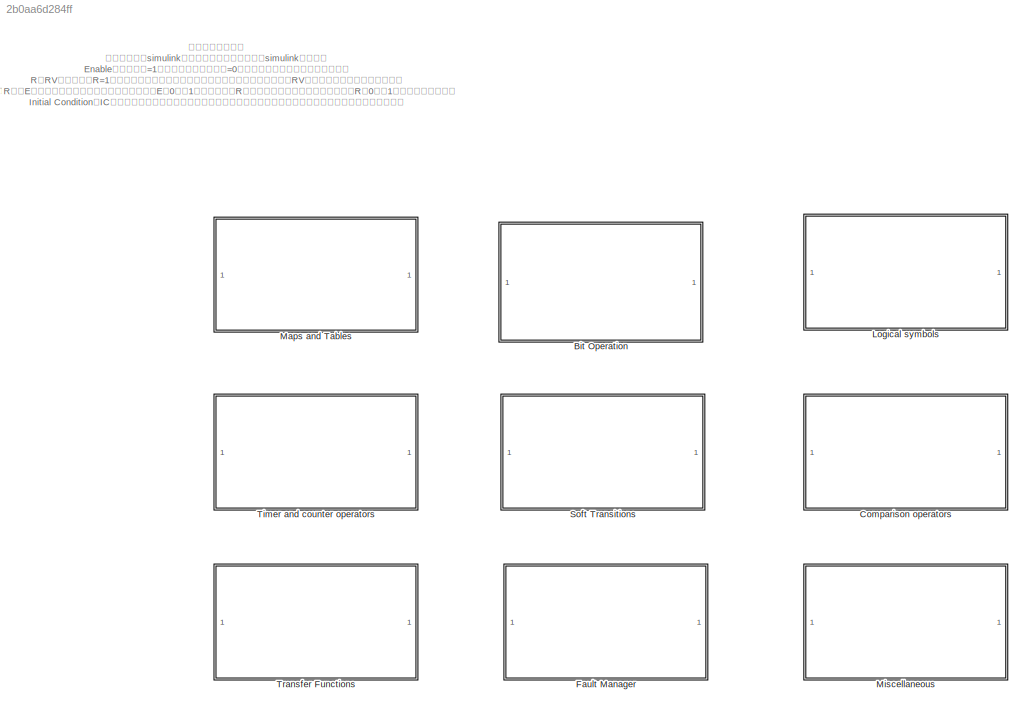
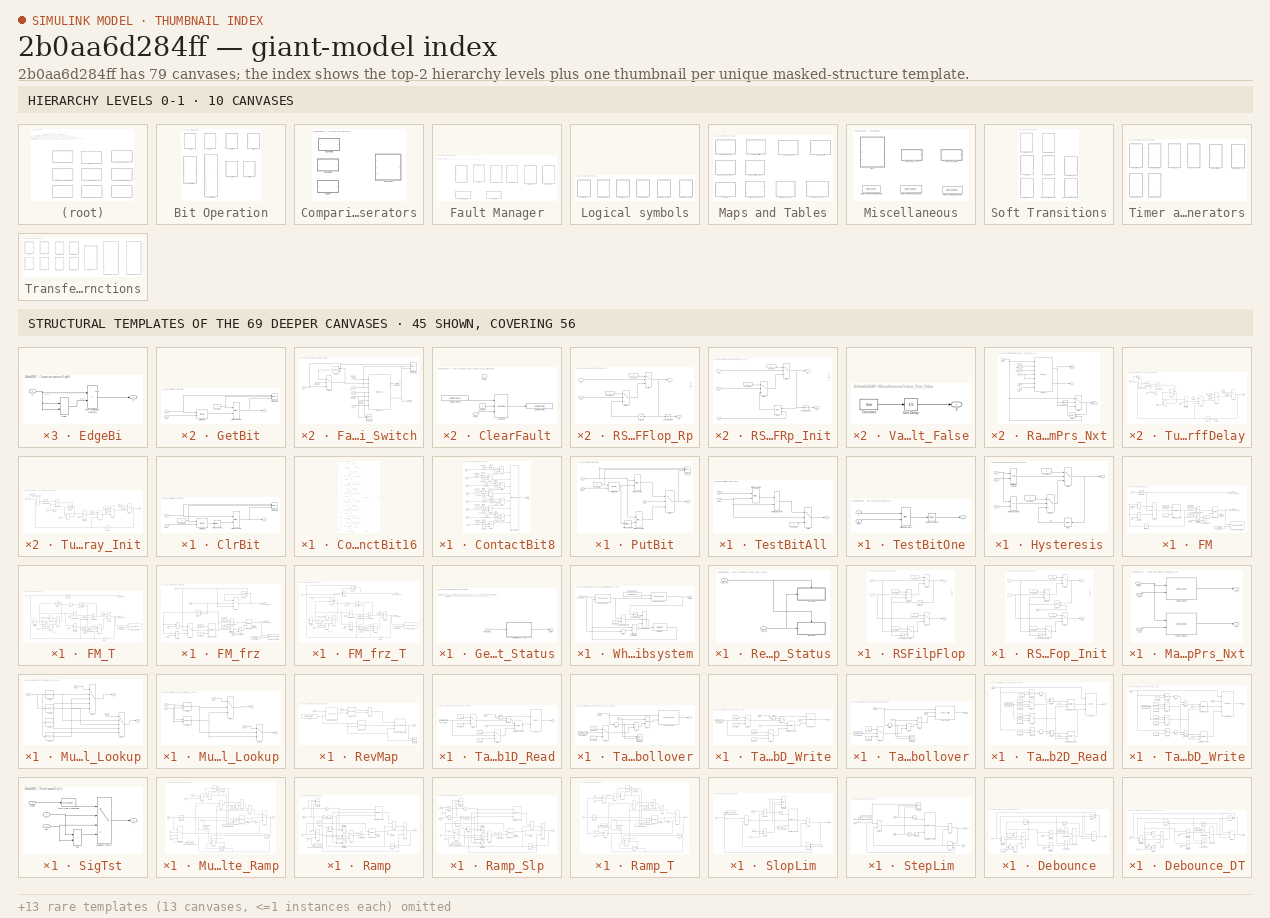
[diagram: thumbnail index - top-2 hierarchy levels (10 canvases) + 45 structural-template representatives of the remaining 69 canvases]
MODEL slx_2b0aa6d284ff
KIND library
CONFIG AbsTol = auto
CONFIG EnableMultiTasking = off
CONFIG FixedStep = auto
CONFIG MaxStep = auto
CONFIG MinStep = auto
CONFIG RelTol = 1e-3
CONFIG SampleTimeConstraint = Unconstrained
CONFIG SolverName = VariableStepAuto
CONFIG StartTime = 0.0
CONFIG StopTime = 10.0
BLOCK [SubSystem] Bit Operation
  Ports = []
  RequestExecContextInheritance = off
BLOCK [SubSystem] Bit Operation/ClrBit
  Ports = [2, 1]
  RequestExecContextInheritance = off
BLOCK [Reference] Bit Operation/ClrBit/Bitwise Operator1  REF=simulink/Logic and Bit
Operations/Bitwise
Operator
  Ports = [2, 1]
  SourceBlock = simulink/Logic and Bit\nOperations/Bitwise\nOperator
  SourceProductBaseCode = SL
  SourceType = Bitwise Operator
BLOCK [Reference] Bit Operation/ClrBit/Bitwise Operator2  REF=simulink/Logic and Bit
Operations/Bitwise
Operator
  Ports = [1, 1]
  SourceBlock = simulink/Logic and Bit\nOperations/Bitwise\nOperator
  SourceProductBaseCode = SL
  SourceType = Bitwise Operator
BLOCK [Constant] Bit Operation/ClrBit/Constant2
  OutDataTypeStr = Inherit: Inherit via back propagation
BLOCK [DataTypeDuplicate] Bit Operation/ClrBit/Data Type Duplicate
  NumInputPorts = 3
  Ports = [3]
BLOCK [ArithShift] Bit Operation/ClrBit/Shift Arithmetic
  BitShiftDirection = Left
  BitShiftNumber = 8
  BitShiftNumberSource = Input port
  InputPortMap = u0,p1
  Ports = [2, 1]
BLOCK [Inport] Bit Operation/ClrBit/pos
  OutDataTypeStr = uint8
  Port = 2
BLOCK [Inport] Bit Operation/ClrBit/u
BLOCK [Outport] Bit Operation/ClrBit/y
  VectorParamsAs1DForOutWhenUnconnected = off
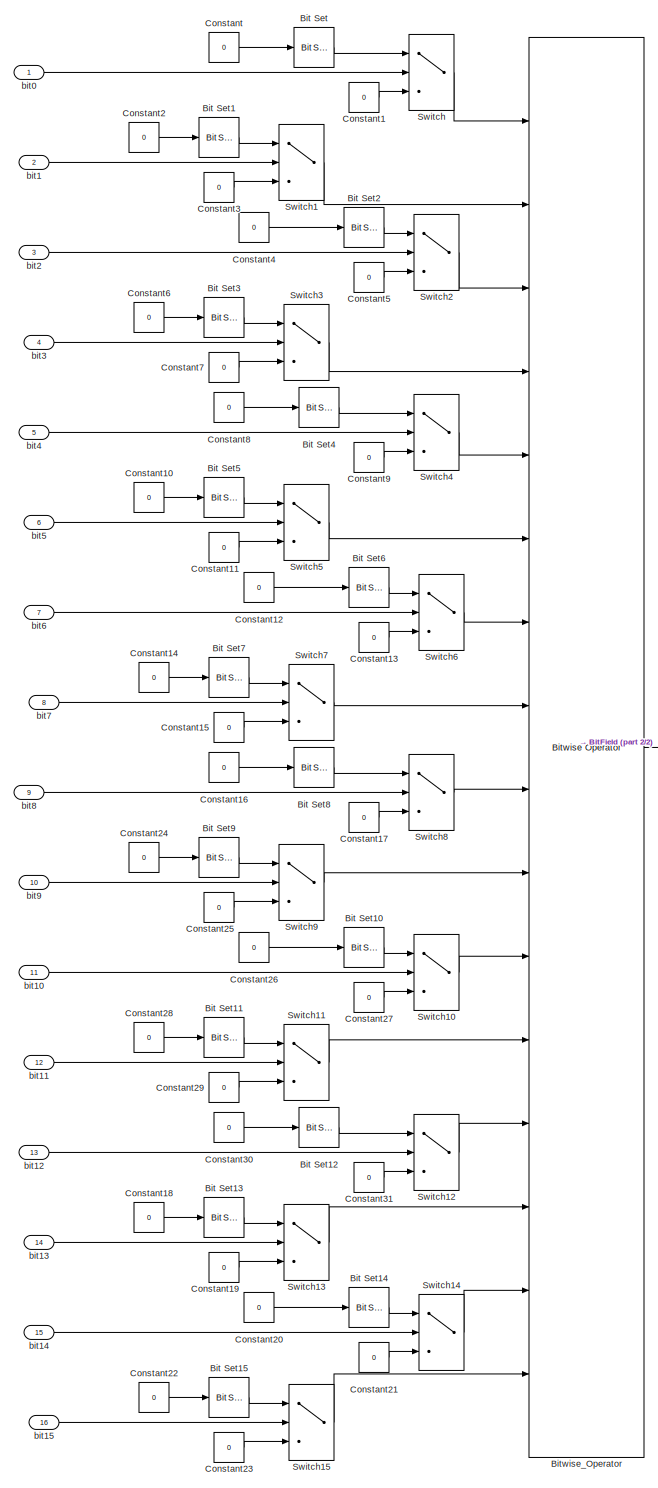
[diagram: Bit Operation/ContactBit16 - part 1/2, most of the canvas]
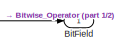
[diagram: Bit Operation/ContactBit16 - part 2/2, middle right region]
BLOCK [SubSystem] Bit Operation/ContactBit16
  Ports = [16, 1]
  RequestExecContextInheritance = off
BLOCK [Reference] Bit Operation/ContactBit16/Bit Set  REF=simulink/Logic and Bit
Operations/Bit Set
  Ports = [1, 1]
  SourceBlock = simulink/Logic and Bit\nOperations/Bit Set
  SourceProductBaseCode = SL
  SourceType = Bit Set
BLOCK [Reference] Bit Operation/ContactBit16/Bit Set1  REF=simulink/Logic and Bit
Operations/Bit Set
  Ports = [1, 1]
  SourceBlock = simulink/Logic and Bit\nOperations/Bit Set
  SourceProductBaseCode = SL
  SourceType = Bit Set
BLOCK [Reference] Bit Operation/ContactBit16/Bit Set10  REF=simulink/Logic and Bit
Operations/Bit Set
  Ports = [1, 1]
  SourceBlock = simulink/Logic and Bit\nOperations/Bit Set
  SourceProductBaseCode = SL
  SourceType = Bit Set
BLOCK [Reference] Bit Operation/ContactBit16/Bit Set11  REF=simulink/Logic and Bit
Operations/Bit Set
  Ports = [1, 1]
  SourceBlock = simulink/Logic and Bit\nOperations/Bit Set
  SourceProductBaseCode = SL
  SourceType = Bit Set
BLOCK [Reference] Bit Operation/ContactBit16/Bit Set12  REF=simulink/Logic and Bit
Operations/Bit Set
  Ports = [1, 1]
  SourceBlock = simulink/Logic and Bit\nOperations/Bit Set
  SourceProductBaseCode = SL
  SourceType = Bit Set
BLOCK [Reference] Bit Operation/ContactBit16/Bit Set13  REF=simulink/Logic and Bit
Operations/Bit Set
  Ports = [1, 1]
  SourceBlock = simulink/Logic and Bit\nOperations/Bit Set
  SourceProductBaseCode = SL
  SourceType = Bit Set
BLOCK [Reference] Bit Operation/ContactBit16/Bit Set14  REF=simulink/Logic and Bit
Operations/Bit Set
  Ports = [1, 1]
  SourceBlock = simulink/Logic and Bit\nOperations/Bit Set
  SourceProductBaseCode = SL
  SourceType = Bit Set
BLOCK [Reference] Bit Operation/ContactBit16/Bit Set15  REF=simulink/Logic and Bit
Operations/Bit Set
  Ports = [1, 1]
  SourceBlock = simulink/Logic and Bit\nOperations/Bit Set
  SourceProductBaseCode = SL
  SourceType = Bit Set
BLOCK [Reference] Bit Operation/ContactBit16/Bit Set2  REF=simulink/Logic and Bit
Operations/Bit Set
  Ports = [1, 1]
  SourceBlock = simulink/Logic and Bit\nOperations/Bit Set
  SourceProductBaseCode = SL
  SourceType = Bit Set
BLOCK [Reference] Bit Operation/ContactBit16/Bit Set3  REF=simulink/Logic and Bit
Operations/Bit Set
  Ports = [1, 1]
  SourceBlock = simulink/Logic and Bit\nOperations/Bit Set
  SourceProductBaseCode = SL
  SourceType = Bit Set
BLOCK [Reference] Bit Operation/ContactBit16/Bit Set4  REF=simulink/Logic and Bit
Operations/Bit Set
  Ports = [1, 1]
  SourceBlock = simulink/Logic and Bit\nOperations/Bit Set
  SourceProductBaseCode = SL
  SourceType = Bit Set
BLOCK [Reference] Bit Operation/ContactBit16/Bit Set5  REF=simulink/Logic and Bit
Operations/Bit Set
  Ports = [1, 1]
  SourceBlock = simulink/Logic and Bit\nOperations/Bit Set
  SourceProductBaseCode = SL
  SourceType = Bit Set
BLOCK [Reference] Bit Operation/ContactBit16/Bit Set6  REF=simulink/Logic and Bit
Operations/Bit Set
  Ports = [1, 1]
  SourceBlock = simulink/Logic and Bit\nOperations/Bit Set
  SourceProductBaseCode = SL
  SourceType = Bit Set
BLOCK [Reference] Bit Operation/ContactBit16/Bit Set7  REF=simulink/Logic and Bit
Operations/Bit Set
  Ports = [1, 1]
  SourceBlock = simulink/Logic and Bit\nOperations/Bit Set
  SourceProductBaseCode = SL
  SourceType = Bit Set
BLOCK [Reference] Bit Operation/ContactBit16/Bit Set8  REF=simulink/Logic and Bit
Operations/Bit Set
  Ports = [1, 1]
  SourceBlock = simulink/Logic and Bit\nOperations/Bit Set
  SourceProductBaseCode = SL
  SourceType = Bit Set
BLOCK [Reference] Bit Operation/ContactBit16/Bit Set9  REF=simulink/Logic and Bit
Operations/Bit Set
  Ports = [1, 1]
  SourceBlock = simulink/Logic and Bit\nOperations/Bit Set
  SourceProductBaseCode = SL
  SourceType = Bit Set
BLOCK [Outport] Bit Operation/ContactBit16/BitField
  LibraryBlock = LocalOutport/Out1
BLOCK [Reference] Bit Operation/ContactBit16/Bitwise_Operator  REF=simulink/Logic and Bit
Operations/Bitwise
Operator
  Ports = [16, 1]
  SourceBlock = simulink/Logic and Bit\nOperations/Bitwise\nOperator
  SourceProductBaseCode = SL
  SourceType = Bitwise Operator
BLOCK [Constant] Bit Operation/ContactBit16/Constant
  OutDataTypeStr = uint8
  Value = 0
BLOCK [Constant] Bit Operation/ContactBit16/Constant1
  OutDataTypeStr = uint8
  Value = 0
BLOCK [Constant] Bit Operation/ContactBit16/Constant10
  OutDataTypeStr = uint8
  Value = 0
BLOCK [Constant] Bit Operation/ContactBit16/Constant11
  OutDataTypeStr = uint8
  Value = 0
BLOCK [Constant] Bit Operation/ContactBit16/Constant12
  OutDataTypeStr = uint8
  Value = 0
BLOCK [Constant] Bit Operation/ContactBit16/Constant13
  OutDataTypeStr = uint8
  Value = 0
BLOCK [Constant] Bit Operation/ContactBit16/Constant14
  OutDataTypeStr = uint8
  Value = 0
BLOCK [Constant] Bit Operation/ContactBit16/Constant15
  OutDataTypeStr = uint8
  Value = 0
BLOCK [Constant] Bit Operation/ContactBit16/Constant16
  OutDataTypeStr = uint8
  Value = 0
BLOCK [Constant] Bit Operation/ContactBit16/Constant17
  OutDataTypeStr = uint8
  Value = 0
BLOCK [Constant] Bit Operation/ContactBit16/Constant18
  OutDataTypeStr = uint8
  Value = 0
BLOCK [Constant] Bit Operation/ContactBit16/Constant19
  OutDataTypeStr = uint8
  Value = 0
BLOCK [Constant] Bit Operation/ContactBit16/Constant2
  OutDataTypeStr = uint8
  Value = 0
BLOCK [Constant] Bit Operation/ContactBit16/Constant20
  OutDataTypeStr = uint8
  Value = 0
BLOCK [Constant] Bit Operation/ContactBit16/Constant21
  OutDataTypeStr = uint8
  Value = 0
BLOCK [Constant] Bit Operation/ContactBit16/Constant22
  OutDataTypeStr = uint8
  Value = 0
BLOCK [Constant] Bit Operation/ContactBit16/Constant23
  OutDataTypeStr = uint8
  Value = 0
BLOCK [Constant] Bit Operation/ContactBit16/Constant24
  OutDataTypeStr = uint8
  Value = 0
BLOCK [Constant] Bit Operation/ContactBit16/Constant25
  OutDataTypeStr = uint8
  Value = 0
BLOCK [Constant] Bit Operation/ContactBit16/Constant26
  OutDataTypeStr = uint8
  Value = 0
BLOCK [Constant] Bit Operation/ContactBit16/Constant27
  OutDataTypeStr = uint8
  Value = 0
BLOCK [Constant] Bit Operation/ContactBit16/Constant28
  OutDataTypeStr = uint8
  Value = 0
BLOCK [Constant] Bit Operation/ContactBit16/Constant29
  OutDataTypeStr = uint8
  Value = 0
BLOCK [Constant] Bit Operation/ContactBit16/Constant3
  OutDataTypeStr = uint8
  Value = 0
BLOCK [Constant] Bit Operation/ContactBit16/Constant30
  OutDataTypeStr = uint8
  Value = 0
BLOCK [Constant] Bit Operation/ContactBit16/Constant31
  OutDataTypeStr = uint8
  Value = 0
BLOCK [Constant] Bit Operation/ContactBit16/Constant4
  OutDataTypeStr = uint8
  Value = 0
BLOCK [Constant] Bit Operation/ContactBit16/Constant5
  OutDataTypeStr = uint8
  Value = 0
BLOCK [Constant] Bit Operation/ContactBit16/Constant6
  OutDataTypeStr = uint8
  Value = 0
BLOCK [Constant] Bit Operation/ContactBit16/Constant7
  OutDataTypeStr = uint8
  Value = 0
BLOCK [Constant] Bit Operation/ContactBit16/Constant8
  OutDataTypeStr = uint8
  Value = 0
BLOCK [Constant] Bit Operation/ContactBit16/Constant9
  OutDataTypeStr = uint8
  Value = 0
BLOCK [Switch] Bit Operation/ContactBit16/Switch
  Criteria = u2 ~= 0
  SaturateOnIntegerOverflow = off
BLOCK [Switch] Bit Operation/ContactBit16/Switch1
  Criteria = u2 ~= 0
  SaturateOnIntegerOverflow = off
BLOCK [Switch] Bit Operation/ContactBit16/Switch10
  Criteria = u2 ~= 0
  SaturateOnIntegerOverflow = off
BLOCK [Switch] Bit Operation/ContactBit16/Switch11
  Criteria = u2 ~= 0
  SaturateOnIntegerOverflow = off
BLOCK [Switch] Bit Operation/ContactBit16/Switch12
  Criteria = u2 ~= 0
  SaturateOnIntegerOverflow = off
BLOCK [Switch] Bit Operation/ContactBit16/Switch13
  Criteria = u2 ~= 0
  SaturateOnIntegerOverflow = off
BLOCK [Switch] Bit Operation/ContactBit16/Switch14
  Criteria = u2 ~= 0
  SaturateOnIntegerOverflow = off
BLOCK [Switch] Bit Operation/ContactBit16/Switch15
  Criteria = u2 ~= 0
  SaturateOnIntegerOverflow = off
BLOCK [Switch] Bit Operation/ContactBit16/Switch2
  Criteria = u2 ~= 0
  SaturateOnIntegerOverflow = off
BLOCK [Switch] Bit Operation/ContactBit16/Switch3
  Criteria = u2 ~= 0
  SaturateOnIntegerOverflow = off
BLOCK [Switch] Bit Operation/ContactBit16/Switch4
  Criteria = u2 ~= 0
  SaturateOnIntegerOverflow = off
BLOCK [Switch] Bit Operation/ContactBit16/Switch5
  Criteria = u2 ~= 0
  SaturateOnIntegerOverflow = off
BLOCK [Switch] Bit Operation/ContactBit16/Switch6
  Criteria = u2 ~= 0
  SaturateOnIntegerOverflow = off
BLOCK [Switch] Bit Operation/ContactBit16/Switch7
  Criteria = u2 ~= 0
  SaturateOnIntegerOverflow = off
BLOCK [Switch] Bit Operation/ContactBit16/Switch8
  Criteria = u2 ~= 0
  SaturateOnIntegerOverflow = off
BLOCK [Switch] Bit Operation/ContactBit16/Switch9
  Criteria = u2 ~= 0
  SaturateOnIntegerOverflow = off
BLOCK [Inport] Bit Operation/ContactBit16/bit0
  OutDataTypeStr = boolean
BLOCK [Inport] Bit Operation/ContactBit16/bit1
  OutDataTypeStr = boolean
  Port = 2
BLOCK [Inport] Bit Operation/ContactBit16/bit10
  OutDataTypeStr = boolean
  Port = 11
BLOCK [Inport] Bit Operation/ContactBit16/bit11
  OutDataTypeStr = boolean
  Port = 12
BLOCK [Inport] Bit Operation/ContactBit16/bit12
  OutDataTypeStr = boolean
  Port = 13
BLOCK [Inport] Bit Operation/ContactBit16/bit13
  OutDataTypeStr = boolean
  Port = 14
BLOCK [Inport] Bit Operation/ContactBit16/bit14
  OutDataTypeStr = boolean
  Port = 15
BLOCK [Inport] Bit Operation/ContactBit16/bit15
  OutDataTypeStr = boolean
  Port = 16
BLOCK [Inport] Bit Operation/ContactBit16/bit2
  OutDataTypeStr = boolean
  Port = 3
BLOCK [Inport] Bit Operation/ContactBit16/bit3
  OutDataTypeStr = boolean
  Port = 4
BLOCK [Inport] Bit Operation/ContactBit16/bit4
  OutDataTypeStr = boolean
  Port = 5
BLOCK [Inport] Bit Operation/ContactBit16/bit5
  OutDataTypeStr = boolean
  Port = 6
BLOCK [Inport] Bit Operation/ContactBit16/bit6
  OutDataTypeStr = boolean
  Port = 7
BLOCK [Inport] Bit Operation/ContactBit16/bit7
  OutDataTypeStr = boolean
  Port = 8
BLOCK [Inport] Bit Operation/ContactBit16/bit8
  OutDataTypeStr = boolean
  Port = 9
BLOCK [Inport] Bit Operation/ContactBit16/bit9
  OutDataTypeStr = boolean
  Port = 10
BLOCK [SubSystem] Bit Operation/ContactBit8
  Ports = [8, 1]
  RequestExecContextInheritance = off
BLOCK [Reference] Bit Operation/ContactBit8/Bit Set  REF=simulink/Logic and Bit
Operations/Bit Set
  Ports = [1, 1]
  SourceBlock = simulink/Logic and Bit\nOperations/Bit Set
  SourceProductBaseCode = SL
  SourceType = Bit Set
BLOCK [Reference] Bit Operation/ContactBit8/Bit Set1  REF=simulink/Logic and Bit
Operations/Bit Set
  Ports = [1, 1]
  SourceBlock = simulink/Logic and Bit\nOperations/Bit Set
  SourceProductBaseCode = SL
  SourceType = Bit Set
BLOCK [Reference] Bit Operation/ContactBit8/Bit Set2  REF=simulink/Logic and Bit
Operations/Bit Set
  Ports = [1, 1]
  SourceBlock = simulink/Logic and Bit\nOperations/Bit Set
  SourceProductBaseCode = SL
  SourceType = Bit Set
BLOCK [Reference] Bit Operation/ContactBit8/Bit Set3  REF=simulink/Logic and Bit
Operations/Bit Set
  Ports = [1, 1]
  SourceBlock = simulink/Logic and Bit\nOperations/Bit Set
  SourceProductBaseCode = SL
  SourceType = Bit Set
BLOCK [Reference] Bit Operation/ContactBit8/Bit Set4  REF=simulink/Logic and Bit
Operations/Bit Set
  Ports = [1, 1]
  SourceBlock = simulink/Logic and Bit\nOperations/Bit Set
  SourceProductBaseCode = SL
  SourceType = Bit Set
BLOCK [Reference] Bit Operation/ContactBit8/Bit Set5  REF=simulink/Logic and Bit
Operations/Bit Set
  Ports = [1, 1]
  SourceBlock = simulink/Logic and Bit\nOperations/Bit Set
  SourceProductBaseCode = SL
  SourceType = Bit Set
BLOCK [Reference] Bit Operation/ContactBit8/Bit Set6  REF=simulink/Logic and Bit
Operations/Bit Set
  Ports = [1, 1]
  SourceBlock = simulink/Logic and Bit\nOperations/Bit Set
  SourceProductBaseCode = SL
  SourceType = Bit Set
BLOCK [Reference] Bit Operation/ContactBit8/Bit Set7  REF=simulink/Logic and Bit
Operations/Bit Set
  Ports = [1, 1]
  SourceBlock = simulink/Logic and Bit\nOperations/Bit Set
  SourceProductBaseCode = SL
  SourceType = Bit Set
BLOCK [Outport] Bit Operation/ContactBit8/BitField
  OutDataTypeStr = uint8
BLOCK [Reference] Bit Operation/ContactBit8/Bitwise_Operator  REF=simulink/Logic and Bit
Operations/Bitwise
Operator
  Ports = [8, 1]
  SourceBlock = simulink/Logic and Bit\nOperations/Bitwise\nOperator
  SourceProductBaseCode = SL
  SourceType = Bitwise Operator
BLOCK [Constant] Bit Operation/ContactBit8/Constant
  OutDataTypeStr = uint8
  Value = 0
BLOCK [Constant] Bit Operation/ContactBit8/Constant1
  OutDataTypeStr = uint8
  Value = 0
BLOCK [Constant] Bit Operation/ContactBit8/Constant10
  OutDataTypeStr = uint8
  Value = 0
BLOCK [Constant] Bit Operation/ContactBit8/Constant11
  OutDataTypeStr = uint8
  Value = 0
BLOCK [Constant] Bit Operation/ContactBit8/Constant12
  OutDataTypeStr = uint8
  Value = 0
BLOCK [Constant] Bit Operation/ContactBit8/Constant13
  OutDataTypeStr = uint8
  Value = 0
BLOCK [Constant] Bit Operation/ContactBit8/Constant14
  OutDataTypeStr = uint8
  Value = 0
BLOCK [Constant] Bit Operation/ContactBit8/Constant15
  OutDataTypeStr = uint8
  Value = 0
BLOCK [Constant] Bit Operation/ContactBit8/Constant2
  OutDataTypeStr = uint8
  Value = 0
BLOCK [Constant] Bit Operation/ContactBit8/Constant3
  OutDataTypeStr = uint8
  Value = 0
BLOCK [Constant] Bit Operation/ContactBit8/Constant4
  OutDataTypeStr = uint8
  Value = 0
BLOCK [Constant] Bit Operation/ContactBit8/Constant5
  OutDataTypeStr = uint8
  Value = 0
BLOCK [Constant] Bit Operation/ContactBit8/Constant6
  OutDataTypeStr = uint8
  Value = 0
BLOCK [Constant] Bit Operation/ContactBit8/Constant7
  OutDataTypeStr = uint8
  Value = 0
BLOCK [Constant] Bit Operation/ContactBit8/Constant8
  OutDataTypeStr = uint8
  Value = 0
BLOCK [Constant] Bit Operation/ContactBit8/Constant9
  OutDataTypeStr = uint8
  Value = 0
BLOCK [Switch] Bit Operation/ContactBit8/Switch
  Criteria = u2 ~= 0
  SaturateOnIntegerOverflow = off
BLOCK [Switch] Bit Operation/ContactBit8/Switch1
  Criteria = u2 ~= 0
  SaturateOnIntegerOverflow = off
BLOCK [Switch] Bit Operation/ContactBit8/Switch2
  Criteria = u2 ~= 0
  SaturateOnIntegerOverflow = off
BLOCK [Switch] Bit Operation/ContactBit8/Switch3
  Criteria = u2 ~= 0
  SaturateOnIntegerOverflow = off
BLOCK [Switch] Bit Operation/ContactBit8/Switch4
  Criteria = u2 ~= 0
  SaturateOnIntegerOverflow = off
BLOCK [Switch] Bit Operation/ContactBit8/Switch5
  Criteria = u2 ~= 0
  SaturateOnIntegerOverflow = off
BLOCK [Switch] Bit Operation/ContactBit8/Switch6
  Criteria = u2 ~= 0
  SaturateOnIntegerOverflow = off
BLOCK [Switch] Bit Operation/ContactBit8/Switch7
  Criteria = u2 ~= 0
  SaturateOnIntegerOverflow = off
BLOCK [Inport] Bit Operation/ContactBit8/bit0
  OutDataTypeStr = boolean
BLOCK [Inport] Bit Operation/ContactBit8/bit1
  OutDataTypeStr = boolean
  Port = 2
BLOCK [Inport] Bit Operation/ContactBit8/bit2
  OutDataTypeStr = boolean
  Port = 3
BLOCK [Inport] Bit Operation/ContactBit8/bit3
  OutDataTypeStr = boolean
  Port = 4
BLOCK [Inport] Bit Operation/ContactBit8/bit4
  OutDataTypeStr = boolean
  Port = 5
BLOCK [Inport] Bit Operation/ContactBit8/bit5
  OutDataTypeStr = boolean
  Port = 6
BLOCK [Inport] Bit Operation/ContactBit8/bit6
  OutDataTypeStr = boolean
  Port = 7
BLOCK [Inport] Bit Operation/ContactBit8/bit7
  OutDataTypeStr = boolean
  Port = 8
BLOCK [SubSystem] Bit Operation/GetBit
  Ports = [2, 1]
  RequestExecContextInheritance = off
BLOCK [Reference] Bit Operation/GetBit/Bitwise Operator1  REF=simulink/Logic and Bit
Operations/Bitwise
Operator
  Ports = [2, 1]
  SourceBlock = simulink/Logic and Bit\nOperations/Bitwise\nOperator
  SourceProductBaseCode = SL
  SourceType = Bitwise Operator
BLOCK [Constant] Bit Operation/GetBit/Constant2
  OutDataTypeStr = Inherit: Inherit via back propagation
BLOCK [DataTypeDuplicate] Bit Operation/GetBit/Data Type Duplicate
  NumInputPorts = 3
  Ports = [3]
BLOCK [ArithShift] Bit Operation/GetBit/Shift Arithmetic
  BitShiftDirection = Left
  BitShiftNumber = 8
  BitShiftNumberSource = Input port
  InputPortMap = u0,p1
  Ports = [2, 1]
BLOCK [Inport] Bit Operation/GetBit/pos
  OutDataTypeStr = uint8
  Port = 2
BLOCK [Inport] Bit Operation/GetBit/u
BLOCK [Outport] Bit Operation/GetBit/y
  VectorParamsAs1DForOutWhenUnconnected = off
BLOCK [SubSystem] Bit Operation/PutBit
  Ports = [3, 1]
  RequestExecContextInheritance = off
BLOCK [Reference] Bit Operation/PutBit/Bitwise Operator  REF=simulink/Logic and Bit
Operations/Bitwise
Operator
  Ports = [2, 1]
  SourceBlock = simulink/Logic and Bit\nOperations/Bitwise\nOperator
  SourceProductBaseCode = SL
  SourceType = Bitwise Operator
BLOCK [Reference] Bit Operation/PutBit/Bitwise Operator1  REF=simulink/Logic and Bit
Operations/Bitwise
Operator
  Ports = [2, 1]
  SourceBlock = simulink/Logic and Bit\nOperations/Bitwise\nOperator
  SourceProductBaseCode = SL
  SourceType = Bitwise Operator
BLOCK [Reference] Bit Operation/PutBit/Bitwise Operator2  REF=simulink/Logic and Bit
Operations/Bitwise
Operator
  Ports = [1, 1]
  SourceBlock = simulink/Logic and Bit\nOperations/Bitwise\nOperator
  SourceProductBaseCode = SL
  SourceType = Bitwise Operator
BLOCK [Constant] Bit Operation/PutBit/Constant2
  OutDataTypeStr = Inherit: Inherit via back propagation
BLOCK [DataTypeDuplicate] Bit Operation/PutBit/Data Type Duplicate
  NumInputPorts = 3
  Ports = [3]
BLOCK [ArithShift] Bit Operation/PutBit/Shift Arithmetic
  BitShiftDirection = Left
  BitShiftNumber = 8
  BitShiftNumberSource = Input port
  InputPortMap = u0,p1
  Ports = [2, 1]
BLOCK [Switch] Bit Operation/PutBit/Switch
  Criteria = u2 ~= 0
  RndMeth = Round
  SaturateOnIntegerOverflow = off
  ZeroCross = off
BLOCK [Inport] Bit Operation/PutBit/bit
  OutDataTypeStr = boolean
  Port = 3
BLOCK [Inport] Bit Operation/PutBit/pos
  OutDataTypeStr = uint8
  Port = 2
BLOCK [Inport] Bit Operation/PutBit/u
BLOCK [Outport] Bit Operation/PutBit/y
  VectorParamsAs1DForOutWhenUnconnected = off
BLOCK [SubSystem] Bit Operation/SetBit
  Ports = [2, 1]
  RequestExecContextInheritance = off
BLOCK [Reference] Bit Operation/SetBit/Bitwise Operator  REF=simulink/Logic and Bit
Operations/Bitwise
Operator
  Ports = [2, 1]
  SourceBlock = simulink/Logic and Bit\nOperations/Bitwise\nOperator
  SourceProductBaseCode = SL
  SourceType = Bitwise Operator
BLOCK [Constant] Bit Operation/SetBit/Constant2
  OutDataTypeStr = Inherit: Inherit via back propagation
BLOCK [DataTypeDuplicate] Bit Operation/SetBit/Data Type Duplicate
  NumInputPorts = 3
  Ports = [3]
BLOCK [ArithShift] Bit Operation/SetBit/Shift Arithmetic
  BitShiftDirection = Left
  BitShiftNumber = 8
  BitShiftNumberSource = Input port
  InputPortMap = u0,p1
  Ports = [2, 1]
BLOCK [Inport] Bit Operation/SetBit/pos
  OutDataTypeStr = uint8
  Port = 2
BLOCK [Inport] Bit Operation/SetBit/u
BLOCK [Outport] Bit Operation/SetBit/y
  VectorParamsAs1DForOutWhenUnconnected = off
BLOCK [SubSystem] Bit Operation/TestBitAll
  Ports = [2, 1]
  RequestExecContextInheritance = off
BLOCK [Reference] Bit Operation/TestBitAll/Bitwise Operator1  REF=simulink/Logic and Bit
Operations/Bitwise
Operator
  Ports = [2, 1]
  SourceBlock = simulink/Logic and Bit\nOperations/Bitwise\nOperator
  SourceProductBaseCode = SL
  SourceType = Bitwise Operator
BLOCK [Constant] Bit Operation/TestBitAll/Constant2
  OutDataTypeStr = boolean
BLOCK [Inport] Bit Operation/TestBitAll/Mask
  OutDataTypeStr = uint8
  Port = 2
BLOCK [RelationalOperator] Bit Operation/TestBitAll/Relational Operator
  InputSameDT = off
  Operator = ==
  OutDataTypeStr = boolean
  Ports = [2, 1]
  RndMeth = Simplest
BLOCK [Switch] Bit Operation/TestBitAll/Switch
  Criteria = u2 ~= 0
  SaturateOnIntegerOverflow = off
BLOCK [Inport] Bit Operation/TestBitAll/u
BLOCK [Outport] Bit Operation/TestBitAll/y
  OutDataTypeStr = boolean
  VectorParamsAs1DForOutWhenUnconnected = off
BLOCK [SubSystem] Bit Operation/TestBitOne
  Ports = [2, 1]
  RequestExecContextInheritance = off
BLOCK [Reference] Bit Operation/TestBitOne/Bitwise Operator1  REF=simulink/Logic and Bit
Operations/Bitwise
Operator
  Ports = [2, 1]
  SourceBlock = simulink/Logic and Bit\nOperations/Bitwise\nOperator
  SourceProductBaseCode = SL
  SourceType = Bitwise Operator
BLOCK [Reference] Bit Operation/TestBitOne/Compare To Zero  REF=simulink/Logic and Bit
Operations/Compare
To Zero
  Ports = [1, 1]
  SourceBlock = simulink/Logic and Bit\nOperations/Compare\nTo Zero
  SourceProductBaseCode = SL
  SourceType = Compare To Zero
BLOCK [Inport] Bit Operation/TestBitOne/Mask
  OutDataTypeStr = uint8
  Port = 2
BLOCK [Inport] Bit Operation/TestBitOne/u
BLOCK [Outport] Bit Operation/TestBitOne/y
  OutDataTypeStr = boolean
  VectorParamsAs1DForOutWhenUnconnected = off
BLOCK [SubSystem] Comparison operators
  Ports = []
  RequestExecContextInheritance = off
BLOCK [SubSystem] Comparison operators/EdgeBi
  Ports = [1, 1]
  RequestExecContextInheritance = off
BLOCK [Delay] Comparison operators/EdgeBi/Delay
  DelayLength = 1
  InitialConditionSource = Input port
  InputPortMap = u0,p4
  Ports = [2, 1]
BLOCK [RelationalOperator] Comparison operators/EdgeBi/FixPt Relational Operator
  InputSameDT = off
  Operator = ~=
  OutDataTypeStr = boolean
  Ports = [2, 1]
  ZeroCross = off
BLOCK [Inport] Comparison operators/EdgeBi/U
BLOCK [Outport] Comparison operators/EdgeBi/Y
  InitialOutput = 0
BLOCK [SubSystem] Comparison operators/EdgeFalling
  Ports = [1, 1]
  RequestExecContextInheritance = off
BLOCK [Delay] Comparison operators/EdgeFalling/Delay
  DelayLength = 1
  InitialConditionSource = Input port
  InputPortMap = u0,p4
  Ports = [2, 1]
BLOCK [RelationalOperator] Comparison operators/EdgeFalling/FixPt Relational Operator
  InputSameDT = off
  Operator = <
  OutDataTypeStr = boolean
  Ports = [2, 1]
  ZeroCross = off
BLOCK [Inport] Comparison operators/EdgeFalling/U
BLOCK [Outport] Comparison operators/EdgeFalling/Y
  InitialOutput = 0
BLOCK [SubSystem] Comparison operators/EdgeRising
  Ports = [1, 1]
  RequestExecContextInheritance = off
BLOCK [Delay] Comparison operators/EdgeRising/Delay
  DelayLength = 1
  InitialConditionSource = Input port
  InputPortMap = u0,p4
  Ports = [2, 1]
BLOCK [RelationalOperator] Comparison operators/EdgeRising/FixPt Relational Operator
  InputSameDT = off
  Operator = >
  OutDataTypeStr = boolean
  Ports = [2, 1]
  ZeroCross = off
BLOCK [Inport] Comparison operators/EdgeRising/U
BLOCK [Outport] Comparison operators/EdgeRising/Y
  InitialOutput = 0
BLOCK [SubSystem] Comparison operators/Hysteresis
  Ports = [3, 1]
  RequestExecContextInheritance = off
BLOCK [Constant] Comparison operators/Hysteresis/Constant
  OutDataTypeStr = boolean
BLOCK [Constant] Comparison operators/Hysteresis/Constant1
  OutDataTypeStr = boolean
  Value = 0
BLOCK [Delay] Comparison operators/Hysteresis/Delay
  DelayLength = 1
  InitialCondition = InitialCondition
  InputPortMap = u0
  NameLocation = top
  Ports = [1, 1]
BLOCK [Inport] Comparison operators/Hysteresis/H
  Port = 2
BLOCK [Inport] Comparison operators/Hysteresis/L
  Port = 3
BLOCK [RelationalOperator] Comparison operators/Hysteresis/Relational Operator
  InputSameDT = off
  Operator = <=
  OutDataTypeStr = boolean
  Ports = [2, 1]
  ZeroCross = off
BLOCK [RelationalOperator] Comparison operators/Hysteresis/Relational Operator1
  InputSameDT = off
  OutDataTypeStr = boolean
  Ports = [2, 1]
  ZeroCross = off
BLOCK [Switch] Comparison operators/Hysteresis/Switch
  Criteria = u2 ~= 0
  SaturateOnIntegerOverflow = off
BLOCK [Switch] Comparison operators/Hysteresis/Switch1
  Criteria = u2 ~= 0
  SaturateOnIntegerOverflow = off
BLOCK [Inport] Comparison operators/Hysteresis/u
BLOCK [Outport] Comparison operators/Hysteresis/y
  InitialOutput = 0
BLOCK [SubSystem] Fault Manager
  Ports = []
  RequestExecContextInheritance = off
BLOCK [SubSystem] Fault Manager/FM
  AttributesFormatString = %<Fault_ID>
  Ports = [4, 2]
  RequestExecContextInheritance = off
BLOCK [Sum] Fault Manager/FM/Add
  AccumDataTypeStr = Inherit: Same as first input
  IconShape = rectangular
  InputSameDT = on
  OutDataTypeStr = Inherit: Same as first input
  Ports = [2, 1]
  SaturateOnIntegerOverflow = on
BLOCK [Constant] Fault Manager/FM/Constant
  OutDataTypeStr = uint16
  Value = 65535
BLOCK [Constant] Fault Manager/FM/Constant1
  OutDataTypeStr = uint16
  Value = 0
BLOCK [Constant] Fault Manager/FM/Constant2
  OutDataTypeStr = uint16
  Value = 65535
BLOCK [Constant] Fault Manager/FM/Constant3
  OutDataTypeStr = uint16
  Value = 0
BLOCK [Constant] Fault Manager/FM/Constant4
  OutDataTypeStr = uint16
  Value = Fault_ID
BLOCK [Outport] Fault Manager/FM/FM_xxx_fault_rec
  OutDataTypeStr = boolean
  Port = 2
  VectorParamsAs1DForOutWhenUnconnected = off
BLOCK [Outport] Fault Manager/FM/FM_xxx_fault_soft
  OutDataTypeStr = boolean
  VectorParamsAs1DForOutWhenUnconnected = off
BLOCK [Logic] Fault Manager/FM/Logical Operator
  AllPortsSameDT = off
  OutDataTypeStr = boolean
  Ports = [2, 1]
BLOCK [Reference] Fault Manager/FM/RSFilpFlop_Sp  REF=$bdroot/Logical symbols/RSFilpFlop_Sp
  AttributesFormatString = State Initial=%<InitialCondition>
  Ports = [2, 2]
  SourceBlock = $bdroot/Logical symbols/RSFilpFlop_Sp
  SourceType = RSFlipFlop_Sp
BLOCK [RelationalOperator] Fault Manager/FM/Relational Operator
  Operator = ==
  OutDataTypeStr = boolean
  Ports = [2, 1]
  RndMeth = Simplest
  ZeroCross = off
BLOCK [RelationalOperator] Fault Manager/FM/Relational Operator1
  Operator = ==
  OutDataTypeStr = boolean
  Ports = [2, 1]
  RndMeth = Simplest
  ZeroCross = off
BLOCK [Reference] Fault Manager/FM/Report_Fault_Status  REF=$bdroot/Fault Manager/Report_Fault_Status
  Ports = [2]
  SourceBlock = $bdroot/Fault Manager/Report_Fault_Status
  SourceType = Report_Fault_Status
BLOCK [Reference] Fault Manager/FM/Saturation Dynamic  REF=simulink/Discontinuities/Saturation
Dynamic
  Ports = [3, 1]
  SourceBlock = simulink/Discontinuities/Saturation\nDynamic
  SourceProductBaseCode = SL
  SourceType = Saturation Dynamic
BLOCK [SignalConversion] Fault Manager/FM/Signal Copy
  OverrideOpt = off
BLOCK [Sum] Fault Manager/FM/Subtract
  AccumDataTypeStr = Inherit: Same as first input
  IconShape = rectangular
  InputSameDT = on
  Inputs = +-
  OutDataTypeStr = Inherit: Same as first input
  Ports = [2, 1]
  SaturateOnIntegerOverflow = on
BLOCK [Switch] Fault Manager/FM/Switch1
  Criteria = u2 ~= 0
  SaturateOnIntegerOverflow = off
  ZeroCross = off
BLOCK [Terminator] Fault Manager/FM/Terminator
BLOCK [UnitDelay] Fault Manager/FM/Unit Delay
  AttributesFormatString = InitialValue=%<InitialCondition>
  HasFrameUpgradeWarning = on
  SampleTime = -1
BLOCK [Inport] Fault Manager/FM/dec
  LibraryBlock = Mask_inport/In2
BLOCK [Inport] Fault Manager/FM/df
  OutDataTypeStr = boolean
BLOCK [Inport] Fault Manager/FM/enRecy
  OutDataTypeStr = boolean
  Port = 2
BLOCK [Inport] Fault Manager/FM/inc
  LibraryBlock = Mask_inport/In2
BLOCK [SubSystem] Fault Manager/FM_T
  AttributesFormatString = %<Fault_ID>
  Ports = [5, 2]
  RequestExecContextInheritance = off
BLOCK [Sum] Fault Manager/FM_T/Add
  IconShape = rectangular
  InputSameDT = on
  OutDataTypeStr = Inherit: Same as first input
  Ports = [2, 1]
  SaturateOnIntegerOverflow = on
BLOCK [Constant] Fault Manager/FM_T/Constant
  OutDataTypeStr = boolean
BLOCK [Constant] Fault Manager/FM_T/Constant1
  OutDataTypeStr = boolean
  Value = 0
BLOCK [Constant] Fault Manager/FM_T/Constant2
  Value = Fault_ID
BLOCK [Delay] Fault Manager/FM_T/Delay
  DelayLength = 1
  ExternalReset = Rising
  InputPortMap = u0,r5
  NameLocation = top
  Ports = [2, 1]
BLOCK [Delay] Fault Manager/FM_T/Delay1
  DelayLength = 1
  InputPortMap = u0
  NameLocation = top
  Ports = [1, 1]
BLOCK [Delay] Fault Manager/FM_T/Delay2
  DelayLength = 1
  InputPortMap = u0
  NameLocation = top
  Ports = [1, 1]
BLOCK [Outport] Fault Manager/FM_T/FM_XXX_fault_rec
  Port = 2
BLOCK [Outport] Fault Manager/FM_T/FM_XXX_fault_soft
BLOCK [Logic] Fault Manager/FM_T/Logical Operator
  OutDataTypeStr = boolean
  Ports = [2, 1]
BLOCK [Logic] Fault Manager/FM_T/Logical Operator1
  OutDataTypeStr = boolean
  Ports = [2, 1]
BLOCK [Logic] Fault Manager/FM_T/Logical Operator2
  Operator = NOT
  OutDataTypeStr = boolean
  Ports = [1, 1]
BLOCK [Logic] Fault Manager/FM_T/Logical Operator3
  NameLocation = top
  Operator = OR
  OutDataTypeStr = boolean
  Ports = [2, 1]
BLOCK [Logic] Fault Manager/FM_T/Logical Operator4
  OutDataTypeStr = boolean
  Ports = [2, 1]
BLOCK [MinMax] Fault Manager/FM_T/Max
  Function = max
  InputSameDT = on
  Inputs = 2
  Ports = [2, 1]
BLOCK [RelationalOperator] Fault Manager/FM_T/Relational Operator
  OutDataTypeStr = boolean
  Ports = [2, 1]
  RndMeth = Simplest
  ZeroCross = off
BLOCK [RelationalOperator] Fault Manager/FM_T/Relational Operator1
  OutDataTypeStr = boolean
  Ports = [2, 1]
  RndMeth = Simplest
  ZeroCross = off
BLOCK [RelationalOperator] Fault Manager/FM_T/Relational Operator2
  Operator = ~=
  OutDataTypeStr = boolean
  Ports = [2, 1]
  RndMeth = Simplest
  ZeroCross = off
BLOCK [Reference] Fault Manager/FM_T/Report_Fault_Status  REF=$bdroot/Fault Manager/Report_Fault_Status
  Ports = [2]
  SourceBlock = $bdroot/Fault Manager/Report_Fault_Status
  SourceType = Report_Fault_Status
BLOCK [SignalConversion] Fault Manager/FM_T/Signal Copy
  OverrideOpt = off
BLOCK [Sum] Fault Manager/FM_T/Subtract
  IconShape = rectangular
  InputSameDT = on
  Inputs = +-
  OutDataTypeStr = Inherit: Same as first input
  Ports = [2, 1]
  SaturateOnIntegerOverflow = on
BLOCK [Switch] Fault Manager/FM_T/Switch
  Criteria = u2 ~= 0
  SaturateOnIntegerOverflow = off
BLOCK [Switch] Fault Manager/FM_T/Switch1
  Criteria = u2 ~= 0
  SaturateOnIntegerOverflow = off
BLOCK [Switch] Fault Manager/FM_T/Switch2
  Criteria = u2 ~= 0
  SaturateOnIntegerOverflow = off
BLOCK [Inport] Fault Manager/FM_T/df
  OutDataTypeStr = boolean
BLOCK [Inport] Fault Manager/FM_T/dt
  Port = 5
BLOCK [Inport] Fault Manager/FM_T/enRecy
  OutDataTypeStr = boolean
  Port = 2
BLOCK [Inport] Fault Manager/FM_T/tRst
  Port = 4
BLOCK [Inport] Fault Manager/FM_T/tSet
  Port = 3
BLOCK [SubSystem] Fault Manager/FM_frz
  AttributesFormatString = %<Fault_ID>
  Ports = [5, 2]
  RequestExecContextInheritance = off
BLOCK [Sum] Fault Manager/FM_frz/Add
  AccumDataTypeStr = Inherit: Same as first input
  IconShape = rectangular
  InputSameDT = on
  OutDataTypeStr = Inherit: Same as first input
  Ports = [2, 1]
  SaturateOnIntegerOverflow = on
BLOCK [Constant] Fault Manager/FM_frz/Constant
  OutDataTypeStr = uint16
  Value = 65535
BLOCK [Constant] Fault Manager/FM_frz/Constant1
  OutDataTypeStr = uint16
  Value = 0
BLOCK [Constant] Fault Manager/FM_frz/Constant2
  OutDataTypeStr = uint16
  Value = 65535
BLOCK [Constant] Fault Manager/FM_frz/Constant3
  OutDataTypeStr = uint16
  Value = 0
BLOCK [Constant] Fault Manager/FM_frz/Constant4
  OutDataTypeStr = uint16
  Value = Fault_ID
BLOCK [Delay] Fault Manager/FM_frz/Delay
  DelayLength = 1
  InitialConditionSource = Input port
  InputPortMap = u0,p4
  NameLocation = top
  Ports = [2, 1]
BLOCK [Delay] Fault Manager/FM_frz/Delay1
  DelayLength = 1
  InputPortMap = u0,e6
  NameLocation = top
  Ports = [2, 1]
  ShowEnablePort = on
BLOCK [Outport] Fault Manager/FM_frz/FM_xxx_fault_rec
  OutDataTypeStr = boolean
  Port = 2
  VectorParamsAs1DForOutWhenUnconnected = off
BLOCK [Outport] Fault Manager/FM_frz/FM_xxx_fault_soft
  OutDataTypeStr = boolean
  VectorParamsAs1DForOutWhenUnconnected = off
BLOCK [Logic] Fault Manager/FM_frz/Logical Operator
  AllPortsSameDT = off
  OutDataTypeStr = boolean
  Ports = [2, 1]
BLOCK [Reference] Fault Manager/FM_frz/RSFilpFlop_Sp  REF=$bdroot/Logical symbols/RSFilpFlop_Sp
  AttributesFormatString = State Initial=%<InitialCondition>
  Ports = [2, 2]
  SourceBlock = $bdroot/Logical symbols/RSFilpFlop_Sp
  SourceType = RSFlipFlop_Sp
BLOCK [RelationalOperator] Fault Manager/FM_frz/Relational Operator
  Operator = ==
  OutDataTypeStr = boolean
  Ports = [2, 1]
  RndMeth = Simplest
  ZeroCross = off
BLOCK [RelationalOperator] Fault Manager/FM_frz/Relational Operator1
  Operator = ==
  OutDataTypeStr = boolean
  Ports = [2, 1]
  RndMeth = Simplest
  ZeroCross = off
BLOCK [Reference] Fault Manager/FM_frz/Report_Fault_Status  REF=$bdroot/Fault Manager/Report_Fault_Status
  Ports = [2]
  SourceBlock = $bdroot/Fault Manager/Report_Fault_Status
  SourceType = Report_Fault_Status
BLOCK [Reference] Fault Manager/FM_frz/Saturation Dynamic  REF=simulink/Discontinuities/Saturation
Dynamic
  Ports = [3, 1]
  SourceBlock = simulink/Discontinuities/Saturation\nDynamic
  SourceProductBaseCode = SL
  SourceType = Saturation Dynamic
BLOCK [Sum] Fault Manager/FM_frz/Subtract
  AccumDataTypeStr = Inherit: Same as first input
  IconShape = rectangular
  InputSameDT = on
  Inputs = +-
  OutDataTypeStr = Inherit: Same as first input
  Ports = [2, 1]
  SaturateOnIntegerOverflow = on
BLOCK [Switch] Fault Manager/FM_frz/Switch
  Criteria = u2 ~= 0
  SaturateOnIntegerOverflow = off
  ZeroCross = off
BLOCK [Switch] Fault Manager/FM_frz/Switch1
  Criteria = u2 ~= 0
  SaturateOnIntegerOverflow = off
  ZeroCross = off
BLOCK [Terminator] Fault Manager/FM_frz/Terminator
BLOCK [Inport] Fault Manager/FM_frz/dec
  LibraryBlock = Mask_inport/In2
BLOCK [Inport] Fault Manager/FM_frz/df
  OutDataTypeStr = boolean
BLOCK [Inport] Fault Manager/FM_frz/enRecy
  OutDataTypeStr = boolean
  Port = 3
BLOCK [Inport] Fault Manager/FM_frz/frz
  OutDataTypeStr = boolean
  Port = 2
BLOCK [Inport] Fault Manager/FM_frz/inc
  LibraryBlock = Mask_inport/In2
BLOCK [SubSystem] Fault Manager/FM_frz_T
  AttributesFormatString = %<Fault_ID>
  Ports = [6, 2]
  RequestExecContextInheritance = off
BLOCK [Sum] Fault Manager/FM_frz_T/Add
  IconShape = rectangular
  InputSameDT = on
  OutDataTypeStr = Inherit: Same as first input
  Ports = [2, 1]
  SaturateOnIntegerOverflow = on
BLOCK [Constant] Fault Manager/FM_frz_T/Constant
  OutDataTypeStr = boolean
BLOCK [Constant] Fault Manager/FM_frz_T/Constant1
  OutDataTypeStr = boolean
  Value = 0
BLOCK [Constant] Fault Manager/FM_frz_T/Constant2
  Value = Fault_ID
BLOCK [Delay] Fault Manager/FM_frz_T/Delay
  DelayLength = 1
  ExternalReset = Rising
  InputPortMap = u0,e6,r5
  NameLocation = top
  Ports = [3, 1]
  ShowEnablePort = on
BLOCK [Delay] Fault Manager/FM_frz_T/Delay1
  DelayLength = 1
  InputPortMap = u0
  NameLocation = top
  Ports = [1, 1]
BLOCK [Delay] Fault Manager/FM_frz_T/Delay2
  DelayLength = 1
  InputPortMap = u0
  NameLocation = top
  Ports = [1, 1]
BLOCK [Delay] Fault Manager/FM_frz_T/Delay3
  DelayLength = 1
  InitialConditionSource = Input port
  InputPortMap = u0,p4
  NameLocation = top
  Ports = [2, 1]
BLOCK [Outport] Fault Manager/FM_frz_T/FM_XXX_fault_rec
  Port = 2
BLOCK [Outport] Fault Manager/FM_frz_T/FM_XXX_fault_soft
BLOCK [Logic] Fault Manager/FM_frz_T/Logical Operator
  OutDataTypeStr = boolean
  Ports = [2, 1]
BLOCK [Logic] Fault Manager/FM_frz_T/Logical Operator1
  OutDataTypeStr = boolean
  Ports = [2, 1]
BLOCK [Logic] Fault Manager/FM_frz_T/Logical Operator2
  Operator = NOT
  OutDataTypeStr = boolean
  Ports = [1, 1]
BLOCK [Logic] Fault Manager/FM_frz_T/Logical Operator3
  NameLocation = top
  Operator = OR
  OutDataTypeStr = boolean
  Ports = [2, 1]
BLOCK [Logic] Fault Manager/FM_frz_T/Logical Operator4
  OutDataTypeStr = boolean
  Ports = [2, 1]
BLOCK [MinMax] Fault Manager/FM_frz_T/Max
  Function = max
  InputSameDT = on
  Inputs = 2
  Ports = [2, 1]
BLOCK [RelationalOperator] Fault Manager/FM_frz_T/Relational Operator
  OutDataTypeStr = boolean
  Ports = [2, 1]
  RndMeth = Simplest
  ZeroCross = off
BLOCK [RelationalOperator] Fault Manager/FM_frz_T/Relational Operator1
  OutDataTypeStr = boolean
  Ports = [2, 1]
  RndMeth = Simplest
  ZeroCross = off
BLOCK [RelationalOperator] Fault Manager/FM_frz_T/Relational Operator2
  Operator = ~=
  OutDataTypeStr = boolean
  Ports = [2, 1]
  RndMeth = Simplest
  ZeroCross = off
BLOCK [Reference] Fault Manager/FM_frz_T/Report_Fault_Status  REF=$bdroot/Fault Manager/Report_Fault_Status
  Ports = [2]
  SourceBlock = $bdroot/Fault Manager/Report_Fault_Status
  SourceType = Report_Fault_Status
BLOCK [Sum] Fault Manager/FM_frz_T/Subtract
  IconShape = rectangular
  InputSameDT = on
  Inputs = +-
  OutDataTypeStr = Inherit: Same as first input
  Ports = [2, 1]
  SaturateOnIntegerOverflow = on
BLOCK [Switch] Fault Manager/FM_frz_T/Switch
  Criteria = u2 ~= 0
  SaturateOnIntegerOverflow = off
BLOCK [Switch] Fault Manager/FM_frz_T/Switch1
  Criteria = u2 ~= 0
  SaturateOnIntegerOverflow = off
BLOCK [Switch] Fault Manager/FM_frz_T/Switch2
  Criteria = u2 ~= 0
  SaturateOnIntegerOverflow = off
BLOCK [Switch] Fault Manager/FM_frz_T/Switch3
  Criteria = u2 ~= 0
  SaturateOnIntegerOverflow = off
BLOCK [Inport] Fault Manager/FM_frz_T/df
  OutDataTypeStr = boolean
BLOCK [Inport] Fault Manager/FM_frz_T/dt
  Port = 6
BLOCK [Inport] Fault Manager/FM_frz_T/enRecy
  OutDataTypeStr = boolean
  Port = 3
BLOCK [Inport] Fault Manager/FM_frz_T/frz
  OutDataTypeStr = boolean
  Port = 2
BLOCK [Inport] Fault Manager/FM_frz_T/tRst
  Port = 5
BLOCK [Inport] Fault Manager/FM_frz_T/tSet
  Port = 4
BLOCK [SubSystem] Fault Manager/Failure_Switch
  Ports = [7, 1]
  RequestExecContextInheritance = off
BLOCK [DataTypeDuplicate] Fault Manager/Failure_Switch/Data Type Duplicate
  Ports = [2]
BLOCK [DataTypeDuplicate] Fault Manager/Failure_Switch/Data Type Duplicate1
  NumInputPorts = 3
  Ports = [3]
BLOCK [Delay] Fault Manager/Failure_Switch/Delay
  DelayLength = 1
  InitialConditionSource = Input port
  InputPortMap = u0,p4
  NameLocation = top
  Ports = [2, 1]
BLOCK [Ground] Fault Manager/Failure_Switch/Ground
BLOCK [Inport] Fault Manager/Failure_Switch/NegSlp
  Port = 5
BLOCK [Inport] Fault Manager/Failure_Switch/PosSlp
  Port = 6
BLOCK [Reference] Fault Manager/Failure_Switch/Ramp_Slp  REF=$bdroot/Soft Transitions/Ramp_Slp
  Ports = [7, 2]
  SourceBlock = $bdroot/Soft Transitions/Ramp_Slp
  SourceType = Ramp_Slp
BLOCK [Switch] Fault Manager/Failure_Switch/Switch
  Criteria = u2 ~= 0
  SaturateOnIntegerOverflow = off
BLOCK [Terminator] Fault Manager/Failure_Switch/Terminator
BLOCK [Inport] Fault Manager/Failure_Switch/dt
  Port = 7
BLOCK [Inport] Fault Manager/Failure_Switch/fault_rec
  OutDataTypeStr = boolean
  Port = 3
BLOCK [Inport] Fault Manager/Failure_Switch/fault_soft
  OutDataTypeStr = boolean
  Port = 2
BLOCK [Inport] Fault Manager/Failure_Switch/rec_val
  Port = 4
BLOCK [Inport] Fault Manager/Failure_Switch/u
BLOCK [Outport] Fault Manager/Failure_Switch/y
  VectorParamsAs1DForOutWhenUnconnected = off
BLOCK [SubSystem] Fault Manager/Failure_Switch_T
  Ports = [7, 1]
  RequestExecContextInheritance = off
BLOCK [DataTypeDuplicate] Fault Manager/Failure_Switch_T/Data Type Duplicate
  Ports = [2]
BLOCK [DataTypeDuplicate] Fault Manager/Failure_Switch_T/Data Type Duplicate1
  NumInputPorts = 3
  Ports = [3]
BLOCK [Delay] Fault Manager/Failure_Switch_T/Delay
  DelayLength = 1
  InitialConditionSource = Input port
  InputPortMap = u0,p4
  NameLocation = top
  Ports = [2, 1]
BLOCK [Ground] Fault Manager/Failure_Switch_T/Ground
BLOCK [Reference] Fault Manager/Failure_Switch_T/Ramp_T  REF=$bdroot/Soft Transitions/Ramp_T
  Ports = [7, 2]
  SourceBlock = $bdroot/Soft Transitions/Ramp_T
  SourceType = SoftTransition_Active
BLOCK [Switch] Fault Manager/Failure_Switch_T/Switch
  Criteria = u2 ~= 0
  SaturateOnIntegerOverflow = off
BLOCK [Inport] Fault Manager/Failure_Switch_T/T_to_norm
  Port = 6
BLOCK [Inport] Fault Manager/Failure_Switch_T/T_to_rec
  Port = 5
BLOCK [Terminator] Fault Manager/Failure_Switch_T/Terminator
BLOCK [Inport] Fault Manager/Failure_Switch_T/dt
  Port = 7
BLOCK [Inport] Fault Manager/Failure_Switch_T/fault_rec
  OutDataTypeStr = boolean
  Port = 3
BLOCK [Inport] Fault Manager/Failure_Switch_T/fault_soft
  OutDataTypeStr = boolean
  Port = 2
BLOCK [Inport] Fault Manager/Failure_Switch_T/rec_val
  Port = 4
BLOCK [Inport] Fault Manager/Failure_Switch_T/u
BLOCK [Outport] Fault Manager/Failure_Switch_T/y
  VectorParamsAs1DForOutWhenUnconnected = off
BLOCK [SubSystem] Fault Manager/Get_FG_Status
  Ports = [1, 1]
  RTWFcnNameOpts = Use subsystem name
  RTWFileName = FM
  RTWSystemCode = Reusable function
  RequestExecContextInheritance = off
  TreatAsAtomicUnit = on
BLOCK [Inport] Fault Manager/Get_FG_Status/Fault_Group
BLOCK [Outport] Fault Manager/Get_FG_Status/Status
  OutDataTypeStr = boolean
BLOCK [SubSystem] Fault Manager/Get_FG_Status/While Iterator Subsystem
  Ports = [1, 1]
  RequestExecContextInheritance = off
  TreatAsAtomicUnit = on
BLOCK [Constant] Fault Manager/Get_FG_Status/While Iterator Subsystem/Constant
  OutDataTypeStr = uint16
  Value = 0
BLOCK [DataStoreRead] Fault Manager/Get_FG_Status/While Iterator Subsystem/Data Store Read
  DataStoreName = FM_All_Fault_Status_Array
  Ports = [0, 1]
BLOCK [Inport] Fault Manager/Get_FG_Status/While Iterator Subsystem/Fault_Group
BLOCK [Logic] Fault Manager/Get_FG_Status/While Iterator Subsystem/Logical Operator
  Inputs = 3
  OutDataTypeStr = boolean
  Ports = [3, 1]
BLOCK [Logic] Fault Manager/Get_FG_Status/While Iterator Subsystem/Logical Operator1
  Operator = NOT
  OutDataTypeStr = boolean
  Ports = [1, 1]
BLOCK [RelationalOperator] Fault Manager/Get_FG_Status/While Iterator Subsystem/Relational Operator
  Operator = ~=
  OutDataTypeStr = boolean
  Ports = [2, 1]
  RndMeth = Simplest
BLOCK [RelationalOperator] Fault Manager/Get_FG_Status/While Iterator Subsystem/Relational Operator1
  Operator = <=
  OutDataTypeStr = boolean
  Ports = [2, 1]
  RndMeth = Simplest
  ZeroCross = off
BLOCK [Outport] Fault Manager/Get_FG_Status/While Iterator Subsystem/Status
BLOCK [Reference] Fault Manager/Get_FG_Status/While Iterator Subsystem/Table1D_Read  REF=$bdroot/Maps and Tables/Table1D_Read
  AttributesFormatString = %<IndexMode>
  Ports = [2, 1]
  SourceBlock = $bdroot/Maps and Tables/Table1D_Read
  SourceType = Table1D_Read
BLOCK [Reference] Fault Manager/Get_FG_Status/While Iterator Subsystem/Table1D_Read1  REF=$bdroot/Maps and Tables/Table1D_Read
  AttributesFormatString = %<IndexMode>
  Ports = [2, 1]
  SourceBlock = $bdroot/Maps and Tables/Table1D_Read
  SourceType = Table1D_Read
BLOCK [WhileIterator] Fault Manager/Get_FG_Status/While Iterator Subsystem/While Iterator
  MaxIters = 50
  OutputDataType = uint8
  Ports = [1, 1]
  ResetStates = reset
  ShowIterationPort = on
  WhileBlockType = do-while
BLOCK [Width] Fault Manager/Get_FG_Status/While Iterator Subsystem/Width
  DataType = uint8
  OutDataTypeMode = Inherit via back propagation
BLOCK [SubSystem] Fault Manager/Report_Fault_Status
  Ports = [2]
  RTWFcnNameOpts = Use subsystem name
  RTWFileName = FM
  RTWSystemCode = Reusable function
  RequestExecContextInheritance = off
  TreatAsAtomicUnit = on
BLOCK [SubSystem] Fault Manager/Report_Fault_Status/ClearFault
  Ports = [1, 0, 0, 1]
  RequestExecContextInheritance = off
  TreatAsAtomicUnit = on
BLOCK [Assignment] Fault Manager/Report_Fault_Status/ClearFault/Assignment
  DiagnosticForDimensions = Warning
  IndexMode = Zero-based
  IndexOptions = Index vector (port)
  Indices = 1
  OutputSizes = 1
  Ports = [3, 1]
BLOCK [Constant] Fault Manager/Report_Fault_Status/ClearFault/Constant
  OutDataTypeStr = boolean
  Value = 0
BLOCK [DataStoreRead] Fault Manager/Report_Fault_Status/ClearFault/Data Store Read
  DataStoreName = FM_All_Fault_Status_Array
  Ports = [0, 1]
BLOCK [DataStoreWrite] Fault Manager/Report_Fault_Status/ClearFault/Data Store Write
  DataStoreName = FM_All_Fault_Status_Array
  Ports = [1]
BLOCK [TriggerPort] Fault Manager/Report_Fault_Status/ClearFault/Trigger
  Ports = []
  StatesWhenEnabling = held
  TriggerType = falling
  VariantControl = Variant
BLOCK [Inport] Fault Manager/Report_Fault_Status/ClearFault/fault_id
BLOCK [SubSystem] Fault Manager/Report_Fault_Status/SetFault
  Ports = [1, 0, 0, 1]
  RequestExecContextInheritance = off
  TreatAsAtomicUnit = on
BLOCK [Assignment] Fault Manager/Report_Fault_Status/SetFault/Assignment
  DiagnosticForDimensions = Warning
  IndexMode = Zero-based
  IndexOptions = Index vector (port)
  Indices = 1
  OutputSizes = 1
  Ports = [3, 1]
BLOCK [Constant] Fault Manager/Report_Fault_Status/SetFault/Constant
  OutDataTypeStr = boolean
BLOCK [DataStoreRead] Fault Manager/Report_Fault_Status/SetFault/Data Store Read
  DataStoreName = FM_All_Fault_Status_Array
  Ports = [0, 1]
BLOCK [DataStoreWrite] Fault Manager/Report_Fault_Status/SetFault/Data Store Write
  DataStoreName = FM_All_Fault_Status_Array
  Ports = [1]
BLOCK [TriggerPort] Fault Manager/Report_Fault_Status/SetFault/Trigger
  Ports = []
  StatesWhenEnabling = held
  VariantControl = Variant
BLOCK [Inport] Fault Manager/Report_Fault_Status/SetFault/fault_id
BLOCK [Inport] Fault Manager/Report_Fault_Status/fault_id
  Port = 2
BLOCK [Inport] Fault Manager/Report_Fault_Status/fault_rec
BLOCK [SubSystem] Logical symbols
  Ports = []
  RequestExecContextInheritance = off
BLOCK [SubSystem] Logical symbols/RSFilpFlop
  AttributesFormatString = State Initial=%<InitialCondition>
  Ports = [2, 2]
  RequestExecContextInheritance = off
BLOCK [Constant] Logical symbols/RSFilpFlop/Constant
  OutDataTypeStr = boolean
  Value = 0
BLOCK [Constant] Logical symbols/RSFilpFlop/Constant1
  OutDataTypeStr = boolean
BLOCK [Constant] Logical symbols/RSFilpFlop/Constant2
  OutDataTypeStr = boolean
  Value = 0
BLOCK [Constant] Logical symbols/RSFilpFlop/Constant3
  OutDataTypeStr = boolean
BLOCK [Logic] Logical symbols/RSFilpFlop/Logical Operator
  AllPortsSameDT = off
  Operator = NOT
  OutDataTypeStr = boolean
  Ports = [1, 1]
BLOCK [Outport] Logical symbols/RSFilpFlop/NQ
  OutDataTypeStr = boolean
  Port = 2
  VectorParamsAs1DForOutWhenUnconnected = off
BLOCK [Outport] Logical symbols/RSFilpFlop/Q
  OutDataTypeStr = boolean
  VectorParamsAs1DForOutWhenUnconnected = off
BLOCK [Inport] Logical symbols/RSFilpFlop/R
  OutDataTypeStr = boolean
  Port = 2
BLOCK [Inport] Logical symbols/RSFilpFlop/S
  OutDataTypeStr = boolean
BLOCK [Switch] Logical symbols/RSFilpFlop/Switch
  Criteria = u2 ~= 0
  InputSameDT = off
  SaturateOnIntegerOverflow = off
  ZeroCross = off
BLOCK [Switch] Logical symbols/RSFilpFlop/Switch1
  Criteria = u2 ~= 0
  InputSameDT = off
  SaturateOnIntegerOverflow = off
  ZeroCross = off
BLOCK [Switch] Logical symbols/RSFilpFlop/Switch2
  Criteria = u2 ~= 0
  InputSameDT = off
  SaturateOnIntegerOverflow = off
  ZeroCross = off
BLOCK [Switch] Logical symbols/RSFilpFlop/Switch3
  Criteria = u2 ~= 0
  InputSameDT = off
  SaturateOnIntegerOverflow = off
  ZeroCross = off
BLOCK [UnitDelay] Logical symbols/RSFilpFlop/Unit Delay
  HasFrameUpgradeWarning = on
  InitialCondition = InitialCondition
  SampleTime = -1
BLOCK [SubSystem] Logical symbols/RSFilpFlop_Init
  Ports = [3, 2]
  RequestExecContextInheritance = off
BLOCK [Constant] Logical symbols/RSFilpFlop_Init/Constant
  OutDataTypeStr = boolean
  Value = 0
BLOCK [Constant] Logical symbols/RSFilpFlop_Init/Constant1
  OutDataTypeStr = boolean
BLOCK [Constant] Logical symbols/RSFilpFlop_Init/Constant2
  OutDataTypeStr = boolean
  Value = 0
BLOCK [Constant] Logical symbols/RSFilpFlop_Init/Constant3
  OutDataTypeStr = boolean
BLOCK [Delay] Logical symbols/RSFilpFlop_Init/Delay
  DelayLength = 1
  InitialConditionSource = Input port
  InputPortMap = u0,p4
  NameLocation = top
  Ports = [2, 1]
BLOCK [Inport] Logical symbols/RSFilpFlop_Init/IC
  Port = 3
BLOCK [Logic] Logical symbols/RSFilpFlop_Init/Logical Operator
  AllPortsSameDT = off
  Operator = NOT
  OutDataTypeStr = boolean
  Ports = [1, 1]
BLOCK [Outport] Logical symbols/RSFilpFlop_Init/NQ
  OutDataTypeStr = boolean
  Port = 2
  VectorParamsAs1DForOutWhenUnconnected = off
BLOCK [Outport] Logical symbols/RSFilpFlop_Init/Q
  OutDataTypeStr = boolean
  VectorParamsAs1DForOutWhenUnconnected = off
BLOCK [Inport] Logical symbols/RSFilpFlop_Init/R
  OutDataTypeStr = boolean
  Port = 2
BLOCK [Inport] Logical symbols/RSFilpFlop_Init/S
  OutDataTypeStr = boolean
BLOCK [Switch] Logical symbols/RSFilpFlop_Init/Switch
  Criteria = u2 ~= 0
  InputSameDT = off
  SaturateOnIntegerOverflow = off
  ZeroCross = off
BLOCK [Switch] Logical symbols/RSFilpFlop_Init/Switch1
  Criteria = u2 ~= 0
  InputSameDT = off
  SaturateOnIntegerOverflow = off
  ZeroCross = off
BLOCK [Switch] Logical symbols/RSFilpFlop_Init/Switch2
  Criteria = u2 ~= 0
  InputSameDT = off
  SaturateOnIntegerOverflow = off
  ZeroCross = off
BLOCK [Switch] Logical symbols/RSFilpFlop_Init/Switch3
  Criteria = u2 ~= 0
  InputSameDT = off
  SaturateOnIntegerOverflow = off
  ZeroCross = off
BLOCK [SubSystem] Logical symbols/RSFilpFlop_Rp
  AttributesFormatString = State Initial=%<InitialCondition>
  Ports = [2, 2]
  RequestExecContextInheritance = off
BLOCK [Constant] Logical symbols/RSFilpFlop_Rp/Constant
  OutDataTypeStr = boolean
  Value = 0
BLOCK [Constant] Logical symbols/RSFilpFlop_Rp/Constant1
  OutDataTypeStr = boolean
BLOCK [Logic] Logical symbols/RSFilpFlop_Rp/Logical Operator
  AllPortsSameDT = off
  Operator = NOT
  OutDataTypeStr = boolean
  Ports = [1, 1]
BLOCK [Outport] Logical symbols/RSFilpFlop_Rp/NQ
  OutDataTypeStr = boolean
  Port = 2
  VectorParamsAs1DForOutWhenUnconnected = off
BLOCK [Outport] Logical symbols/RSFilpFlop_Rp/Q
  OutDataTypeStr = boolean
  VectorParamsAs1DForOutWhenUnconnected = off
BLOCK [Inport] Logical symbols/RSFilpFlop_Rp/Rp
  OutDataTypeStr = boolean
  Port = 2
BLOCK [Inport] Logical symbols/RSFilpFlop_Rp/S
  OutDataTypeStr = boolean
BLOCK [Switch] Logical symbols/RSFilpFlop_Rp/Switch
  Criteria = u2 ~= 0
  InputSameDT = off
  SaturateOnIntegerOverflow = off
  ZeroCross = off
BLOCK [Switch] Logical symbols/RSFilpFlop_Rp/Switch1
  Criteria = u2 ~= 0
  InputSameDT = off
  SaturateOnIntegerOverflow = off
  ZeroCross = off
BLOCK [UnitDelay] Logical symbols/RSFilpFlop_Rp/Unit Delay
  HasFrameUpgradeWarning = on
  InitialCondition = InitialCondition
  SampleTime = -1
BLOCK [SubSystem] Logical symbols/RSFilpFlop_Rp_Init
  Ports = [3, 2]
  RequestExecContextInheritance = off
BLOCK [Constant] Logical symbols/RSFilpFlop_Rp_Init/Constant
  OutDataTypeStr = boolean
  Value = 0
BLOCK [Constant] Logical symbols/RSFilpFlop_Rp_Init/Constant1
  OutDataTypeStr = boolean
BLOCK [Delay] Logical symbols/RSFilpFlop_Rp_Init/Delay
  DelayLength = 1
  InitialConditionSource = Input port
  InputPortMap = u0,p4
  NameLocation = top
  Ports = [2, 1]
BLOCK [Inport] Logical symbols/RSFilpFlop_Rp_Init/IC
  Port = 3
BLOCK [Logic] Logical symbols/RSFilpFlop_Rp_Init/Logical Operator
  AllPortsSameDT = off
  Operator = NOT
  OutDataTypeStr = boolean
  Ports = [1, 1]
BLOCK [Outport] Logical symbols/RSFilpFlop_Rp_Init/NQ
  OutDataTypeStr = boolean
  Port = 2
  VectorParamsAs1DForOutWhenUnconnected = off
BLOCK [Outport] Logical symbols/RSFilpFlop_Rp_Init/Q
  OutDataTypeStr = boolean
  VectorParamsAs1DForOutWhenUnconnected = off
BLOCK [Inport] Logical symbols/RSFilpFlop_Rp_Init/Rp
  OutDataTypeStr = boolean
  Port = 2
BLOCK [Inport] Logical symbols/RSFilpFlop_Rp_Init/S
  OutDataTypeStr = boolean
BLOCK [Switch] Logical symbols/RSFilpFlop_Rp_Init/Switch
  Criteria = u2 ~= 0
  InputSameDT = off
  SaturateOnIntegerOverflow = off
  ZeroCross = off
BLOCK [Switch] Logical symbols/RSFilpFlop_Rp_Init/Switch1
  Criteria = u2 ~= 0
  InputSameDT = off
  SaturateOnIntegerOverflow = off
  ZeroCross = off
BLOCK [SubSystem] Logical symbols/RSFilpFlop_Sp
  AttributesFormatString = State Initial=%<InitialCondition>
  Ports = [2, 2]
  RequestExecContextInheritance = off
BLOCK [Constant] Logical symbols/RSFilpFlop_Sp/Constant
  OutDataTypeStr = boolean
BLOCK [Constant] Logical symbols/RSFilpFlop_Sp/Constant1
  OutDataTypeStr = boolean
  Value = 0
BLOCK [Logic] Logical symbols/RSFilpFlop_Sp/Logical Operator
  AllPortsSameDT = off
  Operator = NOT
  OutDataTypeStr = boolean
  Ports = [1, 1]
BLOCK [Outport] Logical symbols/RSFilpFlop_Sp/NQ
  OutDataTypeStr = boolean
  Port = 2
  VectorParamsAs1DForOutWhenUnconnected = off
BLOCK [Outport] Logical symbols/RSFilpFlop_Sp/Q
  OutDataTypeStr = boolean
  VectorParamsAs1DForOutWhenUnconnected = off
BLOCK [Inport] Logical symbols/RSFilpFlop_Sp/R
  OutDataTypeStr = boolean
  Port = 2
BLOCK [Inport] Logical symbols/RSFilpFlop_Sp/Sp
  OutDataTypeStr = boolean
BLOCK [Switch] Logical symbols/RSFilpFlop_Sp/Switch
  Criteria = u2 ~= 0
  InputSameDT = off
  SaturateOnIntegerOverflow = off
  ZeroCross = off
BLOCK [Switch] Logical symbols/RSFilpFlop_Sp/Switch1
  Criteria = u2 ~= 0
  InputSameDT = off
  SaturateOnIntegerOverflow = off
  ZeroCross = off
BLOCK [UnitDelay] Logical symbols/RSFilpFlop_Sp/Unit Delay
  HasFrameUpgradeWarning = on
  InitialCondition = InitialCondition
  SampleTime = -1
BLOCK [SubSystem] Logical symbols/RSFilpFlop_Sp_Init
  Ports = [3, 2]
  RequestExecContextInheritance = off
BLOCK [Constant] Logical symbols/RSFilpFlop_Sp_Init/Constant
  OutDataTypeStr = boolean
BLOCK [Constant] Logical symbols/RSFilpFlop_Sp_Init/Constant1
  OutDataTypeStr = boolean
  Value = 0
BLOCK [Delay] Logical symbols/RSFilpFlop_Sp_Init/Delay
  DelayLength = 1
  InitialConditionSource = Input port
  InputPortMap = u0,p4
  NameLocation = top
  Ports = [2, 1]
BLOCK [Inport] Logical symbols/RSFilpFlop_Sp_Init/IC
  Port = 3
BLOCK [Logic] Logical symbols/RSFilpFlop_Sp_Init/Logical Operator
  AllPortsSameDT = off
  Operator = NOT
  OutDataTypeStr = boolean
  Ports = [1, 1]
BLOCK [Outport] Logical symbols/RSFilpFlop_Sp_Init/NQ
  OutDataTypeStr = boolean
  Port = 2
  VectorParamsAs1DForOutWhenUnconnected = off
BLOCK [Outport] Logical symbols/RSFilpFlop_Sp_Init/Q
  OutDataTypeStr = boolean
  VectorParamsAs1DForOutWhenUnconnected = off
BLOCK [Inport] Logical symbols/RSFilpFlop_Sp_Init/R
  OutDataTypeStr = boolean
  Port = 2
BLOCK [Inport] Logical symbols/RSFilpFlop_Sp_Init/Sp
  OutDataTypeStr = boolean
BLOCK [Switch] Logical symbols/RSFilpFlop_Sp_Init/Switch
  Criteria = u2 ~= 0
  InputSameDT = off
  SaturateOnIntegerOverflow = off
  ZeroCross = off
BLOCK [Switch] Logical symbols/RSFilpFlop_Sp_Init/Switch1
  Criteria = u2 ~= 0
  InputSameDT = off
  SaturateOnIntegerOverflow = off
  ZeroCross = off
BLOCK [SubSystem] Maps and Tables
  Ports = []
  RequestExecContextInheritance = off
BLOCK [SubSystem] Maps and Tables/Mapping_Prs_Nxt
  AttributesFormatString = %<IndexMode>
  Ports = [3, 2]
  RequestExecContextInheritance = off
BLOCK [Inport] Maps and Tables/Mapping_Prs_Nxt/Table
BLOCK [Reference] Maps and Tables/Mapping_Prs_Nxt/Table1D_Read  REF=$bdroot/Maps and Tables/Table1D_Read
  AttributesFormatString = %<IndexMode>
  Ports = [2, 1]
  SourceBlock = $bdroot/Maps and Tables/Table1D_Read
  SourceType = Table1D_Read
BLOCK [Reference] Maps and Tables/Mapping_Prs_Nxt/Table1D_Read1  REF=$bdroot/Maps and Tables/Table1D_Read
  AttributesFormatString = %<IndexMode>
  Ports = [2, 1]
  SourceBlock = $bdroot/Maps and Tables/Table1D_Read
  SourceType = Table1D_Read
BLOCK [Inport] Maps and Tables/Mapping_Prs_Nxt/i_Nxt
  Port = 3
BLOCK [Inport] Maps and Tables/Mapping_Prs_Nxt/i_Prs
  Port = 2
BLOCK [Outport] Maps and Tables/Mapping_Prs_Nxt/y_Nxt
  Port = 2
BLOCK [Outport] Maps and Tables/Mapping_Prs_Nxt/y_Prs
BLOCK [SubSystem] Maps and Tables/Multi_Curve_Lookup
  Ports = [3, 2]
  RequestExecContextInheritance = off
BLOCK [Lookup_n-D] Maps and Tables/Multi_Curve_Lookup/Table0
  BreakpointsForDimension1 = Test_0_CURX
  BreakpointsForDimension3 = [5, 7]
  ExtrapMethod = Clip
  InputPortMap = u0
  InputSameDT = off
  InternalRulePriority = Speed
  NumberOfTableDimensions = 1
  OutDataTypeStr = Inherit: Inherit from 'Table data'
  Ports = [1, 1]
  RndMeth = Simplest
  SaturateOnIntegerOverflow = on
  Table = Test_0_CUR
  TableDataTypeStr = Inherit: Inherit from 'Table data'
BLOCK [Lookup_n-D] Maps and Tables/Multi_Curve_Lookup/Table1
  BreakpointsForDimension1 = Test_1_CURX
  BreakpointsForDimension3 = [5, 7]
  ExtrapMethod = Clip
  InputPortMap = u0
  InputSameDT = off
  InternalRulePriority = Speed
  NumberOfTableDimensions = 1
  OutDataTypeStr = Inherit: Inherit from 'Table data'
  Ports = [1, 1]
  RndMeth = Simplest
  SaturateOnIntegerOverflow = on
  Table = Test_1_CUR
  TableDataTypeStr = Inherit: Inherit from 'Table data'
BLOCK [Lookup_n-D] Maps and Tables/Multi_Curve_Lookup/Table2
  BreakpointsForDimension1 = Test_2_CURX
  BreakpointsForDimension3 = [5, 7]
  ExtrapMethod = Clip
  InputPortMap = u0
  InputSameDT = off
  InternalRulePriority = Speed
  NumberOfTableDimensions = 1
  OutDataTypeStr = Inherit: Inherit from 'Table data'
  Ports = [1, 1]
  RndMeth = Simplest
  SaturateOnIntegerOverflow = on
  Table = Test_2_CUR
  TableDataTypeStr = Inherit: Inherit from 'Table data'
BLOCK [Lookup_n-D] Maps and Tables/Multi_Curve_Lookup/Table3
  BreakpointsForDimension1 = Test_3_CURX
  BreakpointsForDimension3 = [5, 7]
  ExtrapMethod = Clip
  InputPortMap = u0
  InputSameDT = off
  InternalRulePriority = Speed
  NumberOfTableDimensions = 1
  OutDataTypeStr = Inherit: Inherit from 'Table data'
  Ports = [1, 1]
  RndMeth = Simplest
  SaturateOnIntegerOverflow = on
  Table = Test_3_CUR
  TableDataTypeStr = Inherit: Inherit from 'Table data'
BLOCK [Inport] Maps and Tables/Multi_Curve_Lookup/ind1
  Port = 2
BLOCK [Inport] Maps and Tables/Multi_Curve_Lookup/ind2
  Port = 3
BLOCK [MultiPortSwitch] Maps and Tables/Multi_Curve_Lookup/switch1
  DataPortOrder = Zero-based contiguous
  Inputs = 4
  Ports = [5, 1]
  SaturateOnIntegerOverflow = off
  zeroidx = on
BLOCK [MultiPortSwitch] Maps and Tables/Multi_Curve_Lookup/switch2
  DataPortOrder = Zero-based contiguous
  Inputs = 4
  Ports = [5, 1]
  SaturateOnIntegerOverflow = off
  zeroidx = on
BLOCK [Inport] Maps and Tables/Multi_Curve_Lookup/x
BLOCK [Outport] Maps and Tables/Multi_Curve_Lookup/y1
BLOCK [Outport] Maps and Tables/Multi_Curve_Lookup/y2
  Port = 2
BLOCK [SubSystem] Maps and Tables/Multi_Map_Lookup
  Ports = [4, 2]
  RequestExecContextInheritance = off
BLOCK [Lookup_n-D] Maps and Tables/Multi_Map_Lookup/Table0
  BreakpointsForDimension1 = Test_0_MAPX
  BreakpointsForDimension2 = Test_0_MAPY
  BreakpointsForDimension3 = [5, 7]
  ExtrapMethod = Clip
  InputPortMap = u0,u1
  InputSameDT = off
  InternalRulePriority = Speed
  OutDataTypeStr = Inherit: Inherit from 'Table data'
  Ports = [2, 1]
  RndMeth = Simplest
  SaturateOnIntegerOverflow = on
  Table = Test_0_MAP
  TableDataTypeStr = Inherit: Inherit from 'Table data'
BLOCK [Lookup_n-D] Maps and Tables/Multi_Map_Lookup/Table1
  BreakpointsForDimension1 = Test_1_MAPX
  BreakpointsForDimension2 = Test_1_MAPY
  BreakpointsForDimension3 = [5, 7]
  ExtrapMethod = Clip
  InputPortMap = u0,u1
  InputSameDT = off
  InternalRulePriority = Speed
  OutDataTypeStr = Inherit: Inherit from 'Table data'
  Ports = [2, 1]
  RndMeth = Simplest
  SaturateOnIntegerOverflow = on
  Table = Test_1_MAP
  TableDataTypeStr = Inherit: Inherit from 'Table data'
BLOCK [Inport] Maps and Tables/Multi_Map_Lookup/ind1
  Port = 3
BLOCK [Inport] Maps and Tables/Multi_Map_Lookup/ind2
  Port = 4
BLOCK [MultiPortSwitch] Maps and Tables/Multi_Map_Lookup/switch1
  DataPortOrder = Zero-based contiguous
  Inputs = 2
  Ports = [3, 1]
  SaturateOnIntegerOverflow = off
  zeroidx = on
BLOCK [MultiPortSwitch] Maps and Tables/Multi_Map_Lookup/switch2
  DataPortOrder = Zero-based contiguous
  Inputs = 2
  Ports = [3, 1]
  SaturateOnIntegerOverflow = off
  zeroidx = on
BLOCK [Inport] Maps and Tables/Multi_Map_Lookup/x
BLOCK [Inport] Maps and Tables/Multi_Map_Lookup/y
  Port = 2
BLOCK [Outport] Maps and Tables/Multi_Map_Lookup/y1
BLOCK [Outport] Maps and Tables/Multi_Map_Lookup/y2
  Port = 2
BLOCK [SubSystem] Maps and Tables/RevMap
  Ports = [2, 1]
  RequestExecContextInheritance = off
BLOCK [Sum] Maps and Tables/RevMap/Add
  IconShape = rectangular
  OutDataTypeStr = fixdt(0,32,2^-7,0)
  Ports = [2, 1]
BLOCK [Constant] Maps and Tables/RevMap/Constant
  Value = BreakpointsForDimension2
BLOCK [Inport] Maps and Tables/RevMap/DAT
BLOCK [DataTypeDuplicate] Maps and Tables/RevMap/Data Type Duplicate
  Ports = [2]
BLOCK [Reference] Maps and Tables/RevMap/Lookup Table Dynamic  REF=simulink/Lookup
Tables/Lookup
Table
Dynamic
  Ports = [3, 1]
  SourceBlock = simulink/Lookup\nTables/Lookup\nTable\nDynamic
  SourceProductBaseCode = SL
  SourceType = Lookup Table Dynamic
BLOCK [PreLookup] Maps and Tables/RevMap/Prelookup
  BreakpointsData = [10:10:110]
  BreakpointsDataSource = Input port
  FractionDataTypeStr = fixdt(0,16,7)
  IndexDataTypeStr = uint16
  InputPortMap = u0,p1
  Ports = [2, 2]
BLOCK [PreLookup] Maps and Tables/RevMap/Prelookup1
  BreakpointsData = [10:10:110]
  BreakpointsDataSource = Input port
  FractionDataTypeStr = fixdt(0,16,7)
  IndexDataTypeStr = uint16
  InputPortMap = u0,p1
  OutputSelection = Index only
  Ports = [2, 1]
BLOCK [Lookup_n-D] Maps and Tables/RevMap/n-D Lookup Table
  BreakpointsForDimension1 = BreakpointsForDimension1
  BreakpointsForDimension2 = BreakpointsForDimension2
  BreakpointsForDimension3 = [5, 7]
  ExtrapMethod = Clip
  InputPortMap = u0,u1
  InputSameDT = off
  InternalRulePriority = Speed
  OutDataTypeStr = Inherit: Inherit from 'Table data'
  Ports = [2, 1]
  RndMeth = Simplest
  SaturateOnIntegerOverflow = on
  Table = Table
  TableDataTypeStr = Inherit: Inherit from 'Table data'
BLOCK [Inport] Maps and Tables/RevMap/x
  Port = 2
BLOCK [Outport] Maps and Tables/RevMap/y
BLOCK [SubSystem] Maps and Tables/Table1D_Read
  AttributesFormatString = %<IndexMode>
  Ports = [2, 1]
  RequestExecContextInheritance = off
BLOCK [Constant] Maps and Tables/Table1D_Read/Constant2
  OutDataTypeStr = uint16
BLOCK [Constant] Maps and Tables/Table1D_Read/Constant4
  OutDataTypeStr = uint16
  Value = 0
BLOCK [Constant] Maps and Tables/Table1D_Read/Constant5
  OutDataTypeStr = uint16
  Value = 0
BLOCK [Constant] Maps and Tables/Table1D_Read/Constant6
  OutDataTypeStr = boolean
  Value = bZeroBased
BLOCK [Constant] Maps and Tables/Table1D_Read/Constant7
  OutDataTypeStr = uint16
BLOCK [Reference] Maps and Tables/Table1D_Read/Saturation Dynamic  REF=simulink/Discontinuities/Saturation
Dynamic
  Ports = [3, 1]
  SourceBlock = simulink/Discontinuities/Saturation\nDynamic
  SourceProductBaseCode = SL
  SourceType = Saturation Dynamic
BLOCK [Selector] Maps and Tables/Table1D_Read/Selector
  IndexMode = Zero-based
  IndexOptions = Index vector (port)
  Indices = [1 3]
  OutputSizes = 1
  Ports = [2, 1]
BLOCK [Sum] Maps and Tables/Table1D_Read/Subtract
  IconShape = rectangular
  InputSameDT = on
  Inputs = +-
  OutDataTypeStr = uint16
  Ports = [2, 1]
  SaturateOnIntegerOverflow = on
BLOCK [Switch] Maps and Tables/Table1D_Read/Switch
  Criteria = u2 ~= 0
  SaturateOnIntegerOverflow = off
BLOCK [Switch] Maps and Tables/Table1D_Read/Switch1
  Criteria = u2 ~= 0
  SaturateOnIntegerOverflow = off
BLOCK [Inport] Maps and Tables/Table1D_Read/Table
BLOCK [Width] Maps and Tables/Table1D_Read/Width
  DataType = uint16
BLOCK [Inport] Maps and Tables/Table1D_Read/i
  Port = 2
BLOCK [Outport] Maps and Tables/Table1D_Read/y
BLOCK [SubSystem] Maps and Tables/Table1D_Read_Rollover
  AttributesFormatString = %<IndexMode>
  Ports = [2, 1]
  RequestExecContextInheritance = off
BLOCK [Sum] Maps and Tables/Table1D_Read_Rollover/Add
  IconShape = rectangular
  InputSameDT = on
  OutDataTypeStr = Inherit: Same as first input
  Ports = [2, 1]
  SaturateOnIntegerOverflow = on
BLOCK [Constant] Maps and Tables/Table1D_Read_Rollover/Constant5
  OutDataTypeStr = Inherit: Inherit via back propagation
BLOCK [Constant] Maps and Tables/Table1D_Read_Rollover/Constant6
  OutDataTypeStr = boolean
  Value = bZeroBased
BLOCK [Constant] Maps and Tables/Table1D_Read_Rollover/Constant7
  OutDataTypeStr = Inherit: Inherit via back propagation
  Value = 0
BLOCK [DataTypeDuplicate] Maps and Tables/Table1D_Read_Rollover/Data Type Duplicate
  Ports = [2]
BLOCK [Math] Maps and Tables/Table1D_Read_Rollover/Mod
  Operator = mod
  Ports = [2, 1]
BLOCK [Switch] Maps and Tables/Table1D_Read_Rollover/Switch1
  Criteria = u2 ~= 0
  OutDataTypeStr = Inherit: Inherit via back propagation
  SaturateOnIntegerOverflow = off
BLOCK [Inport] Maps and Tables/Table1D_Read_Rollover/Table
BLOCK [Reference] Maps and Tables/Table1D_Read_Rollover/Table1D_Read  REF=$bdroot/Maps and Tables/Table1D_Read
  Ports = [2, 1]
  SourceBlock = $bdroot/Maps and Tables/Table1D_Read
  SourceType = Table1D_Read
BLOCK [Width] Maps and Tables/Table1D_Read_Rollover/Width
  DataType = uint16
  OutDataTypeMode = Inherit via back propagation
BLOCK [Inport] Maps and Tables/Table1D_Read_Rollover/i
  Port = 2
BLOCK [Outport] Maps and Tables/Table1D_Read_Rollover/y
BLOCK [SubSystem] Maps and Tables/Table1D_Write
  AttributesFormatString = %<IndexMode>
  Ports = [3, 1]
  RequestExecContextInheritance = off
BLOCK [Assignment] Maps and Tables/Table1D_Write/Assignment
  DiagnosticForDimensions = Warning
  IndexOptions = Index vector (port)
  Indices = 1
  OutputSizes = 1
  Ports = [3, 1]
BLOCK [Constant] Maps and Tables/Table1D_Write/Constant2
  OutDataTypeStr = uint16
BLOCK [Constant] Maps and Tables/Table1D_Write/Constant4
  OutDataTypeStr = uint16
  Value = 0
BLOCK [Constant] Maps and Tables/Table1D_Write/Constant5
  OutDataTypeStr = uint16
  Value = 0
BLOCK [Constant] Maps and Tables/Table1D_Write/Constant6
  OutDataTypeStr = boolean
  Value = bZeroBased
BLOCK [Constant] Maps and Tables/Table1D_Write/Constant7
  OutDataTypeStr = uint16
BLOCK [Reference] Maps and Tables/Table1D_Write/Saturation Dynamic  REF=simulink/Discontinuities/Saturation
Dynamic
  Ports = [3, 1]
  SourceBlock = simulink/Discontinuities/Saturation\nDynamic
  SourceProductBaseCode = SL
  SourceType = Saturation Dynamic
BLOCK [Sum] Maps and Tables/Table1D_Write/Subtract
  IconShape = rectangular
  InputSameDT = on
  Inputs = +-
  OutDataTypeStr = uint16
  Ports = [2, 1]
  SaturateOnIntegerOverflow = on
BLOCK [Switch] Maps and Tables/Table1D_Write/Switch
  Criteria = u2 ~= 0
  SaturateOnIntegerOverflow = off
BLOCK [Switch] Maps and Tables/Table1D_Write/Switch1
  Criteria = u2 ~= 0
  SaturateOnIntegerOverflow = off
BLOCK [Inport] Maps and Tables/Table1D_Write/Table
BLOCK [Width] Maps and Tables/Table1D_Write/Width
  DataType = uint16
BLOCK [Inport] Maps and Tables/Table1D_Write/i
  Port = 3
BLOCK [Inport] Maps and Tables/Table1D_Write/value
  Port = 2
BLOCK [Outport] Maps and Tables/Table1D_Write/y
BLOCK [SubSystem] Maps and Tables/Table1D_Write_Rollover
  AttributesFormatString = %<IndexMode>
  Ports = [3, 1]
  RequestExecContextInheritance = off
BLOCK [Sum] Maps and Tables/Table1D_Write_Rollover/Add
  IconShape = rectangular
  InputSameDT = on
  OutDataTypeStr = Inherit: Same as first input
  Ports = [2, 1]
  SaturateOnIntegerOverflow = on
BLOCK [Constant] Maps and Tables/Table1D_Write_Rollover/Constant5
  OutDataTypeStr = Inherit: Inherit via back propagation
BLOCK [Constant] Maps and Tables/Table1D_Write_Rollover/Constant6
  OutDataTypeStr = boolean
  Value = bZeroBased
BLOCK [Constant] Maps and Tables/Table1D_Write_Rollover/Constant7
  OutDataTypeStr = Inherit: Inherit via back propagation
  Value = 0
BLOCK [DataTypeDuplicate] Maps and Tables/Table1D_Write_Rollover/Data Type Duplicate
  Ports = [2]
BLOCK [Math] Maps and Tables/Table1D_Write_Rollover/Mod
  Operator = mod
  Ports = [2, 1]
BLOCK [Switch] Maps and Tables/Table1D_Write_Rollover/Switch1
  Criteria = u2 ~= 0
  OutDataTypeStr = Inherit: Inherit via back propagation
  SaturateOnIntegerOverflow = off
BLOCK [Inport] Maps and Tables/Table1D_Write_Rollover/Table
BLOCK [Reference] Maps and Tables/Table1D_Write_Rollover/Table1D_Write  REF=$bdroot/Maps and Tables/Table1D_Write
  AttributesFormatString = %<IndexMode>
  Ports = [3, 1]
  SourceBlock = $bdroot/Maps and Tables/Table1D_Write
  SourceType = Table1D_Write
BLOCK [Width] Maps and Tables/Table1D_Write_Rollover/Width
  DataType = uint16
  OutDataTypeMode = Inherit via back propagation
BLOCK [Inport] Maps and Tables/Table1D_Write_Rollover/i
  Port = 2
BLOCK [Inport] Maps and Tables/Table1D_Write_Rollover/value
  Port = 3
BLOCK [Outport] Maps and Tables/Table1D_Write_Rollover/y
BLOCK [SubSystem] Maps and Tables/Table2D_Read
  AttributesFormatString = %<IndexMode>
  Ports = [3, 1]
  RequestExecContextInheritance = off
BLOCK [Constant] Maps and Tables/Table2D_Read/Constant1
  OutDataTypeStr = uint16
  Value = 0
BLOCK [Constant] Maps and Tables/Table2D_Read/Constant2
  OutDataTypeStr = uint16
BLOCK [Constant] Maps and Tables/Table2D_Read/Constant3
  OutDataTypeStr = uint16
  Value = 0
BLOCK [Constant] Maps and Tables/Table2D_Read/Constant4
  OutDataTypeStr = uint16
  Value = 0
BLOCK [Constant] Maps and Tables/Table2D_Read/Constant5
  OutDataTypeStr = uint16
  Value = 0
BLOCK [Constant] Maps and Tables/Table2D_Read/Constant6
  OutDataTypeStr = boolean
  Value = bZeroBased
BLOCK [Constant] Maps and Tables/Table2D_Read/Constant7
  OutDataTypeStr = uint16
BLOCK [Reference] Maps and Tables/Table2D_Read/Saturation Dynamic  REF=simulink/Discontinuities/Saturation
Dynamic
  Ports = [3, 1]
  SourceBlock = simulink/Discontinuities/Saturation\nDynamic
  SourceProductBaseCode = SL
  SourceType = Saturation Dynamic
BLOCK [Reference] Maps and Tables/Table2D_Read/Saturation Dynamic1  REF=simulink/Discontinuities/Saturation
Dynamic
  Ports = [3, 1]
  SourceBlock = simulink/Discontinuities/Saturation\nDynamic
  SourceProductBaseCode = SL
  SourceType = Saturation Dynamic
BLOCK [Selector] Maps and Tables/Table2D_Read/Selector
  IndexOptions = Index vector (port),Index vector (port)
  Indices = [1 3],1
  NumberOfDimensions = 2
  OutputSizes = 1,1
  Ports = [3, 1]
BLOCK [Selector] Maps and Tables/Table2D_Read/Selector1
  IndexMode = Zero-based
  IndexOptions = Select all,Index vector (port)
  Indices = [1 3],1
  NumberOfDimensions = 2
  OutputSizes = 1,1
  Ports = [2, 1]
BLOCK [Selector] Maps and Tables/Table2D_Read/Selector2
  IndexMode = Zero-based
  IndexOptions = Index vector (port),Select all
  Indices = [1 3],1
  NumberOfDimensions = 2
  OutputSizes = 1,1
  Ports = [2, 1]
BLOCK [Sum] Maps and Tables/Table2D_Read/Subtract
  IconShape = rectangular
  InputSameDT = on
  Inputs = +-
  OutDataTypeStr = uint16
  Ports = [2, 1]
  SaturateOnIntegerOverflow = on
BLOCK [Sum] Maps and Tables/Table2D_Read/Subtract1
  IconShape = rectangular
  InputSameDT = on
  Inputs = +-
  OutDataTypeStr = uint16
  Ports = [2, 1]
  SaturateOnIntegerOverflow = on
BLOCK [Switch] Maps and Tables/Table2D_Read/Switch
  Criteria = u2 ~= 0
  SaturateOnIntegerOverflow = off
BLOCK [Switch] Maps and Tables/Table2D_Read/Switch1
  Criteria = u2 ~= 0
  SaturateOnIntegerOverflow = off
BLOCK [Inport] Maps and Tables/Table2D_Read/Table
BLOCK [Width] Maps and Tables/Table2D_Read/Width
  DataType = uint16
BLOCK [Width] Maps and Tables/Table2D_Read/Width1
  DataType = uint16
BLOCK [Inport] Maps and Tables/Table2D_Read/i
  Port = 2
BLOCK [Inport] Maps and Tables/Table2D_Read/j
  Port = 3
BLOCK [Outport] Maps and Tables/Table2D_Read/y
BLOCK [SubSystem] Maps and Tables/Table2D_Write
  AttributesFormatString = %<IndexMode>
  Ports = [4, 1]
  RequestExecContextInheritance = off
BLOCK [Assignment] Maps and Tables/Table2D_Write/Assignment
  DiagnosticForDimensions = Warning
  IndexOptions = Index vector (port),Index vector (port)
  Indices = 1,1
  NumberOfDimensions = 2
  OutputSizes = 1,1
  Ports = [4, 1]
BLOCK [Constant] Maps and Tables/Table2D_Write/Constant1
  OutDataTypeStr = uint16
  Value = 0
BLOCK [Constant] Maps and Tables/Table2D_Write/Constant2
  OutDataTypeStr = uint16
BLOCK [Constant] Maps and Tables/Table2D_Write/Constant3
  OutDataTypeStr = uint16
  Value = 0
BLOCK [Constant] Maps and Tables/Table2D_Write/Constant4
  OutDataTypeStr = uint16
  Value = 0
BLOCK [Constant] Maps and Tables/Table2D_Write/Constant5
  OutDataTypeStr = uint16
  Value = 0
BLOCK [Constant] Maps and Tables/Table2D_Write/Constant6
  OutDataTypeStr = boolean
  Value = bZeroBased
BLOCK [Constant] Maps and Tables/Table2D_Write/Constant7
  OutDataTypeStr = uint16
BLOCK [Reference] Maps and Tables/Table2D_Write/Saturation Dynamic  REF=simulink/Discontinuities/Saturation
Dynamic
  Ports = [3, 1]
  SourceBlock = simulink/Discontinuities/Saturation\nDynamic
  SourceProductBaseCode = SL
  SourceType = Saturation Dynamic
BLOCK [Reference] Maps and Tables/Table2D_Write/Saturation Dynamic1  REF=simulink/Discontinuities/Saturation
Dynamic
  Ports = [3, 1]
  SourceBlock = simulink/Discontinuities/Saturation\nDynamic
  SourceProductBaseCode = SL
  SourceType = Saturation Dynamic
BLOCK [Selector] Maps and Tables/Table2D_Write/Selector1
  IndexMode = Zero-based
  IndexOptions = Select all,Index vector (port)
  Indices = [1 3],1
  NumberOfDimensions = 2
  OutputSizes = 1,1
  Ports = [2, 1]
BLOCK [Selector] Maps and Tables/Table2D_Write/Selector2
  IndexMode = Zero-based
  IndexOptions = Index vector (port),Select all
  Indices = [1 3],1
  NumberOfDimensions = 2
  OutputSizes = 1,1
  Ports = [2, 1]
BLOCK [Sum] Maps and Tables/Table2D_Write/Subtract
  IconShape = rectangular
  InputSameDT = on
  Inputs = +-
  OutDataTypeStr = uint16
  Ports = [2, 1]
  SaturateOnIntegerOverflow = on
BLOCK [Sum] Maps and Tables/Table2D_Write/Subtract1
  IconShape = rectangular
  InputSameDT = on
  Inputs = +-
  OutDataTypeStr = uint16
  Ports = [2, 1]
  SaturateOnIntegerOverflow = on
BLOCK [Switch] Maps and Tables/Table2D_Write/Switch
  Criteria = u2 ~= 0
  SaturateOnIntegerOverflow = off
BLOCK [Switch] Maps and Tables/Table2D_Write/Switch1
  Criteria = u2 ~= 0
  SaturateOnIntegerOverflow = off
BLOCK [Inport] Maps and Tables/Table2D_Write/Table
  Port = 2
BLOCK [Width] Maps and Tables/Table2D_Write/Width
  DataType = uint16
BLOCK [Width] Maps and Tables/Table2D_Write/Width1
  DataType = uint16
BLOCK [Inport] Maps and Tables/Table2D_Write/i
  Port = 3
BLOCK [Inport] Maps and Tables/Table2D_Write/j
  Port = 4
BLOCK [Inport] Maps and Tables/Table2D_Write/value
BLOCK [Outport] Maps and Tables/Table2D_Write/y
BLOCK [SubSystem] Miscellaneous
  Ports = []
  RequestExecContextInheritance = off
BLOCK [Reference] Miscellaneous/Data Type Police No Floating Point  REF=fixpt_dtprop/Data Type Police  (lib defined in mdl_1ce39afd46ea)
No Floating Point
  Ports = [1]
  SourceBlock = fixpt_dtprop/Data Type Police\nNo Floating Point
  SourceProductBaseCode = SL
BLOCK [Reference] Miscellaneous/Data Type Police Signed Only  REF=fixpt_dtprop/Data Type Police  (lib defined in mdl_1ce39afd46ea)
Signed Only
  Ports = [1]
  SourceBlock = fixpt_dtprop/Data Type Police\nSigned Only
  SourceProductBaseCode = SL
BLOCK [Reference] Miscellaneous/Data Type Police Unsigned Only  REF=fixpt_dtprop/Data Type Police  (lib defined in mdl_1ce39afd46ea)
Unsigned Only
  Ports = [1]
  SourceBlock = fixpt_dtprop/Data Type Police\nUnsigned Only
  SourceProductBaseCode = SL
BLOCK [SubSystem] Miscellaneous/SigTst
  Ports = [3, 1]
  RequestExecContextInheritance = off
BLOCK [Sum] Miscellaneous/SigTst/Add
  IconShape = rectangular
  Ports = [2, 1]
BLOCK [DataTypeConversion] Miscellaneous/SigTst/Data Type Conversion
  OutDataTypeStr = uint8
  RndMeth = Floor
  SaturateOnIntegerOverflow = off
BLOCK [MultiPortSwitch] Miscellaneous/SigTst/Multiport Switch
  DataPortOrder = Zero-based contiguous
  Ports = [4, 1]
  SaturateOnIntegerOverflow = off
  zeroidx = on
BLOCK [Inport] Miscellaneous/SigTst/ext
  Port = 2
BLOCK [Inport] Miscellaneous/SigTst/mode
BLOCK [Inport] Miscellaneous/SigTst/u
  Port = 3
BLOCK [Outport] Miscellaneous/SigTst/y
  VectorParamsAs1DForOutWhenUnconnected = off
BLOCK [SubSystem] Miscellaneous/Value_First_False
  Ports = [0, 1]
  RequestExecContextInheritance = off
BLOCK [Constant] Miscellaneous/Value_First_False/Constant
  OutDataTypeStr = boolean
  Value = true
BLOCK [UnitDelay] Miscellaneous/Value_First_False/Unit Delay
  AttributesFormatString = IV=%<InitialCondition>
  HasFrameUpgradeWarning = on
  SampleTime = -1
BLOCK [Outport] Miscellaneous/Value_First_False/y
BLOCK [SubSystem] Miscellaneous/Value_First_True
  Ports = [0, 1]
  RequestExecContextInheritance = off
BLOCK [Constant] Miscellaneous/Value_First_True/Constant
  OutDataTypeStr = boolean
  Value = false
BLOCK [UnitDelay] Miscellaneous/Value_First_True/Unit Delay
  AttributesFormatString = IV=%<InitialCondition>
  HasFrameUpgradeWarning = on
  InitialCondition = 1
  SampleTime = -1
BLOCK [Outport] Miscellaneous/Value_First_True/y
BLOCK [SubSystem] Soft Transitions
  Ports = []
  RequestExecContextInheritance = off
BLOCK [SubSystem] Soft Transitions/Multi_State_Ramp
  Ports = [7, 2]
  RequestExecContextInheritance = off
BLOCK [Sum] Soft Transitions/Multi_State_Ramp/Add1
  IconShape = rectangular
  InputSameDT = on
  Inputs = +-
  OutDataTypeStr = Inherit: Same as first input
  Ports = [2, 1]
  SaturateOnIntegerOverflow = on
BLOCK [Sum] Soft Transitions/Multi_State_Ramp/Add2
  IconShape = rectangular
  InputSameDT = on
  OutDataTypeStr = Inherit: Same as first input
  Ports = [2, 1]
  SaturateOnIntegerOverflow = on
BLOCK [Sum] Soft Transitions/Multi_State_Ramp/Add3
  IconShape = rectangular
  InputSameDT = on
  OutDataTypeStr = Inherit: Same as first input
  Ports = [2, 1]
  SaturateOnIntegerOverflow = on
BLOCK [Constant] Soft Transitions/Multi_State_Ramp/Constant
  NameLocation = top
  OutDataTypeStr = Inherit: Inherit via back propagation
  Value = 0
BLOCK [Constant] Soft Transitions/Multi_State_Ramp/Constant1
  OutDataTypeStr = Inherit: Inherit via back propagation
BLOCK [Constant] Soft Transitions/Multi_State_Ramp/Constant2
  OutDataTypeStr = Inherit: Inherit via back propagation
BLOCK [Reference] Soft Transitions/Multi_State_Ramp/Data Type Police Signed Only  REF=$bdroot/Miscellaneous/Data Type Police
Signed Only
  Ports = [1]
  SourceBlock = $bdroot/Miscellaneous/Data Type Police\nSigned Only
BLOCK [Delay] Soft Transitions/Multi_State_Ramp/Delay
  DelayLength = 1
  ExternalReset = Rising
  InitialConditionSource = Input port
  InputPortMap = u0,r5,p4
  NameLocation = top
  Ports = [3, 1]
BLOCK [Delay] Soft Transitions/Multi_State_Ramp/Delay1
  DelayLength = 1
  InitialConditionSource = Input port
  InputPortMap = u0,p4
  NameLocation = top
  Ports = [2, 1]
BLOCK [Delay] Soft Transitions/Multi_State_Ramp/Delay2
  DelayLength = 1
  InitialConditionSource = Input port
  InputPortMap = u0,p4
  NameLocation = top
  Ports = [2, 1]
BLOCK [Product] Soft Transitions/Multi_State_Ramp/Divide
  InputSameDT = on
  Inputs = */
  OutDataTypeStr = fixdt(0,16,2^-15,0)
  Ports = [2, 1]
  RndMeth = Round
  SaturateOnIntegerOverflow = on
BLOCK [Reference] Soft Transitions/Multi_State_Ramp/EdgeBi  REF=$bdroot/Comparison operators/EdgeBi
  Ports = [1, 1]
  SourceBlock = $bdroot/Comparison operators/EdgeBi
  SourceType = EdgeBi
BLOCK [Logic] Soft Transitions/Multi_State_Ramp/Logical Operator
  Operator = OR
  OutDataTypeStr = boolean
  Ports = [2, 1]
BLOCK [Logic] Soft Transitions/Multi_State_Ramp/Logical Operator1
  Operator = OR
  OutDataTypeStr = boolean
  Ports = [2, 1]
BLOCK [MinMax] Soft Transitions/Multi_State_Ramp/Max1
  InputSameDT = on
  Inputs = 2
  Ports = [2, 1]
  ZeroCross = off
BLOCK [MultiPortSwitch] Soft Transitions/Multi_State_Ramp/Multiport Switch
  DataPortOrder = Zero-based contiguous
  Ports = [4, 1]
  SaturateOnIntegerOverflow = off
  zeroidx = on
BLOCK [Product] Soft Transitions/Multi_State_Ramp/Product1
  OutDataTypeStr = Inherit: Same as first input
  Ports = [2, 1]
  SaturateOnIntegerOverflow = on
BLOCK [Inport] Soft Transitions/Multi_State_Ramp/R
  OutDataTypeStr = boolean
  Port = 6
BLOCK [Reference] Soft Transitions/Multi_State_Ramp/RSFilpFlop_Sp  REF=$bdroot/Logical symbols/RSFilpFlop_Sp
  Ports = [2, 2]
  SourceBlock = $bdroot/Logical symbols/RSFilpFlop_Sp
  SourceType = RSFlipFlop_Sp
BLOCK [RelationalOperator] Soft Transitions/Multi_State_Ramp/Relational Operator
  InputSameDT = off
  OutDataTypeStr = boolean
  Ports = [2, 1]
  RndMeth = Simplest
BLOCK [Outport] Soft Transitions/Multi_State_Ramp/RmpSt
  OutDataTypeStr = boolean
  VectorParamsAs1DForOutWhenUnconnected = off
BLOCK [Inport] Soft Transitions/Multi_State_Ramp/State
  OutDataTypeStr = boolean
BLOCK [Switch] Soft Transitions/Multi_State_Ramp/Switch1
  Criteria = u2 ~= 0
  SaturateOnIntegerOverflow = off
  ZeroCross = off
BLOCK [Switch] Soft Transitions/Multi_State_Ramp/Switch3
  Criteria = u2 ~= 0
  SaturateOnIntegerOverflow = off
  ZeroCross = off
BLOCK [Inport] Soft Transitions/Multi_State_Ramp/T
  Port = 5
BLOCK [Terminator] Soft Transitions/Multi_State_Ramp/Terminator
BLOCK [Inport] Soft Transitions/Multi_State_Ramp/dt
  Port = 7
BLOCK [Inport] Soft Transitions/Multi_State_Ramp/u0
  Port = 2
BLOCK [Inport] Soft Transitions/Multi_State_Ramp/u1
  Port = 3
BLOCK [Inport] Soft Transitions/Multi_State_Ramp/u2
  Port = 4
BLOCK [Outport] Soft Transitions/Multi_State_Ramp/y
  Port = 2
  VectorParamsAs1DForOutWhenUnconnected = off
BLOCK [SubSystem] Soft Transitions/Ramp
  Ports = [6, 2]
  RequestExecContextInheritance = off
BLOCK [Abs] Soft Transitions/Ramp/Abs
  SaturateOnIntegerOverflow = off
  ZeroCross = off
BLOCK [Abs] Soft Transitions/Ramp/Abs1
  SaturateOnIntegerOverflow = off
  ZeroCross = off
BLOCK [Sum] Soft Transitions/Ramp/Add
  IconShape = rectangular
  InputSameDT = on
  OutDataTypeStr = Inherit: Same as first input
  Ports = [2, 1]
  SaturateOnIntegerOverflow = on
BLOCK [DataTypeDuplicate] Soft Transitions/Ramp/Data Type Duplicate
  NumInputPorts = 3
  Ports = [3]
BLOCK [Reference] Soft Transitions/Ramp/Data Type Police Signed Only  REF=$bdroot/Miscellaneous/Data Type Police
Signed Only
  Ports = [1]
  SourceBlock = $bdroot/Miscellaneous/Data Type Police\nSigned Only
BLOCK [Inport] Soft Transitions/Ramp/Dec
  Port = 5
BLOCK [Delay] Soft Transitions/Ramp/Delay
  DelayLength = 1
  InitialConditionSource = Input port
  InputPortMap = u0,p4
  NameLocation = top
  Ports = [2, 1]
BLOCK [Inport] Soft Transitions/Ramp/E
  OutDataTypeStr = boolean
BLOCK [Reference] Soft Transitions/Ramp/EdgeBi  REF=$bdroot/Comparison operators/EdgeBi
  Ports = [1, 1]
  SourceBlock = $bdroot/Comparison operators/EdgeBi
  SourceType = EdgeBi
BLOCK [Inport] Soft Transitions/Ramp/Inc
  Port = 4
BLOCK [Logic] Soft Transitions/Ramp/Logical Operator
  AllPortsSameDT = off
  Operator = OR
  OutDataTypeStr = boolean
  Ports = [2, 1]
BLOCK [Inport] Soft Transitions/Ramp/R
  OutDataTypeStr = boolean
  Port = 6
BLOCK [Reference] Soft Transitions/Ramp/RSFilpFlop_Sp  REF=$bdroot/Logical symbols/RSFilpFlop_Sp
  Ports = [2, 2]
  SourceBlock = $bdroot/Logical symbols/RSFilpFlop_Sp
  SourceType = RSFlipFlop_Sp
BLOCK [RelationalOperator] Soft Transitions/Ramp/Relational Operator
  OutDataTypeStr = boolean
  Ports = [2, 1]
  RndMeth = Simplest
  ZeroCross = off
BLOCK [RelationalOperator] Soft Transitions/Ramp/Relational Operator1
  Operator = <
  OutDataTypeStr = boolean
  Ports = [2, 1]
  RndMeth = Simplest
  ZeroCross = off
BLOCK [RelationalOperator] Soft Transitions/Ramp/Relational Operator2
  Operator = >
  OutDataTypeStr = boolean
  Ports = [2, 1]
  RndMeth = Simplest
  ZeroCross = off
BLOCK [Outport] Soft Transitions/Ramp/RmpSt
  OutDataTypeStr = boolean
  VectorParamsAs1DForOutWhenUnconnected = off
BLOCK [Reference] Soft Transitions/Ramp/Saturation Dynamic  REF=simulink/Discontinuities/Saturation
Dynamic
  Ports = [3, 1]
  SourceBlock = simulink/Discontinuities/Saturation\nDynamic
  SourceProductBaseCode = SL
  SourceType = Saturation Dynamic
BLOCK [Sum] Soft Transitions/Ramp/Subtract1
  IconShape = rectangular
  Inputs = +-
  Ports = [2, 1]
BLOCK [Switch] Soft Transitions/Ramp/Switch
  Criteria = u2 ~= 0
  SaturateOnIntegerOverflow = off
  ZeroCross = off
BLOCK [Switch] Soft Transitions/Ramp/Switch1
  Criteria = u2 ~= 0
  SaturateOnIntegerOverflow = off
  ZeroCross = off
BLOCK [Switch] Soft Transitions/Ramp/Switch2
  Criteria = u2 ~= 0
  SaturateOnIntegerOverflow = off
  ZeroCross = off
BLOCK [Terminator] Soft Transitions/Ramp/Terminator
BLOCK [UnaryMinus] Soft Transitions/Ramp/Unary Minus
BLOCK [Inport] Soft Transitions/Ramp/u0
  Port = 2
BLOCK [Inport] Soft Transitions/Ramp/u1
  Port = 3
BLOCK [Outport] Soft Transitions/Ramp/y
  Port = 2
  VectorParamsAs1DForOutWhenUnconnected = off
BLOCK [SubSystem] Soft Transitions/RampT_Transition_Prs_Nxt
  Ports = [6, 3]
  RequestExecContextInheritance = off
BLOCK [Delay] Soft Transitions/RampT_Transition_Prs_Nxt/Delay
  DelayLength = 1
  InitialConditionSource = Input port
  InputPortMap = u0,p4
  NameLocation = top
  Ports = [2, 1]
BLOCK [Logic] Soft Transitions/RampT_Transition_Prs_Nxt/Logical Operator
  Operator = NOT
  OutDataTypeStr = boolean
  Ports = [1, 1]
BLOCK [Inport] Soft Transitions/RampT_Transition_Prs_Nxt/R
  OutDataTypeStr = boolean
  Port = 5
BLOCK [Reference] Soft Transitions/RampT_Transition_Prs_Nxt/Ramp_T  REF=$bdroot/Soft Transitions/Ramp_T
  Ports = [7, 2]
  SourceBlock = $bdroot/Soft Transitions/Ramp_T
  SourceType = SoftTransition_Active
BLOCK [Outport] Soft Transitions/RampT_Transition_Prs_Nxt/RmpSt
  OutDataTypeStr = boolean
  VectorParamsAs1DForOutWhenUnconnected = off
BLOCK [Switch] Soft Transitions/RampT_Transition_Prs_Nxt/Switch
  Criteria = u2 ~= 0
  SaturateOnIntegerOverflow = off
BLOCK [Inport] Soft Transitions/RampT_Transition_Prs_Nxt/T
  Port = 4
BLOCK [Inport] Soft Transitions/RampT_Transition_Prs_Nxt/dmnd_Nxt
  Port = 3
BLOCK [Inport] Soft Transitions/RampT_Transition_Prs_Nxt/dmnd_Prs
  Port = 2
BLOCK [Inport] Soft Transitions/RampT_Transition_Prs_Nxt/dt
  Port = 6
BLOCK [Inport] Soft Transitions/RampT_Transition_Prs_Nxt/mode
  OutDataTypeStr = boolean
BLOCK [Outport] Soft Transitions/RampT_Transition_Prs_Nxt/mode_cur
  Port = 3
  VectorParamsAs1DForOutWhenUnconnected = off
BLOCK [Outport] Soft Transitions/RampT_Transition_Prs_Nxt/y
  Port = 2
  VectorParamsAs1DForOutWhenUnconnected = off
BLOCK [SubSystem] Soft Transitions/Ramp_Slp
  Ports = [7, 2]
  RequestExecContextInheritance = off
BLOCK [Abs] Soft Transitions/Ramp_Slp/Abs
  SaturateOnIntegerOverflow = off
  ZeroCross = off
BLOCK [Abs] Soft Transitions/Ramp_Slp/Abs1
  SaturateOnIntegerOverflow = off
  ZeroCross = off
BLOCK [Sum] Soft Transitions/Ramp_Slp/Add
  IconShape = rectangular
  InputSameDT = on
  OutDataTypeStr = Inherit: Same as first input
  Ports = [2, 1]
  SaturateOnIntegerOverflow = on
BLOCK [DataTypeDuplicate] Soft Transitions/Ramp_Slp/Data Type Duplicate
  NumInputPorts = 3
  Ports = [3]
BLOCK [Reference] Soft Transitions/Ramp_Slp/Data Type Police Signed Only  REF=$bdroot/Miscellaneous/Data Type Police
Signed Only
  Ports = [1]
  SourceBlock = $bdroot/Miscellaneous/Data Type Police\nSigned Only
BLOCK [Delay] Soft Transitions/Ramp_Slp/Delay
  DelayLength = 1
  InitialConditionSource = Input port
  InputPortMap = u0,p4
  NameLocation = top
  Ports = [2, 1]
BLOCK [Inport] Soft Transitions/Ramp_Slp/E
  OutDataTypeStr = boolean
BLOCK [Reference] Soft Transitions/Ramp_Slp/EdgeBi  REF=$bdroot/Comparison operators/EdgeBi
  Ports = [1, 1]
  SourceBlock = $bdroot/Comparison operators/EdgeBi
  SourceType = EdgeBi
BLOCK [Logic] Soft Transitions/Ramp_Slp/Logical Operator
  AllPortsSameDT = off
  Operator = OR
  OutDataTypeStr = boolean
  Ports = [2, 1]
BLOCK [Inport] Soft Transitions/Ramp_Slp/NegSlp
  Port = 5
BLOCK [Inport] Soft Transitions/Ramp_Slp/PosSlp
  Port = 4
BLOCK [Product] Soft Transitions/Ramp_Slp/Product
  OutDataTypeStr = Inherit: Inherit via back propagation
  Ports = [2, 1]
  RndMeth = Round
BLOCK [Product] Soft Transitions/Ramp_Slp/Product1
  OutDataTypeStr = Inherit: Inherit via back propagation
  Ports = [2, 1]
  RndMeth = Round
BLOCK [Inport] Soft Transitions/Ramp_Slp/R
  OutDataTypeStr = boolean
  Port = 6
BLOCK [Reference] Soft Transitions/Ramp_Slp/RSFilpFlop_Sp  REF=$bdroot/Logical symbols/RSFilpFlop_Sp
  Ports = [2, 2]
  SourceBlock = $bdroot/Logical symbols/RSFilpFlop_Sp
  SourceType = RSFlipFlop_Sp
BLOCK [RelationalOperator] Soft Transitions/Ramp_Slp/Relational Operator
  OutDataTypeStr = boolean
  Ports = [2, 1]
  RndMeth = Simplest
  ZeroCross = off
BLOCK [RelationalOperator] Soft Transitions/Ramp_Slp/Relational Operator1
  Operator = <
  OutDataTypeStr = boolean
  Ports = [2, 1]
  RndMeth = Simplest
  ZeroCross = off
BLOCK [RelationalOperator] Soft Transitions/Ramp_Slp/Relational Operator2
  Operator = >
  OutDataTypeStr = boolean
  Ports = [2, 1]
  RndMeth = Simplest
  ZeroCross = off
BLOCK [Outport] Soft Transitions/Ramp_Slp/RmpSt
  OutDataTypeStr = boolean
  VectorParamsAs1DForOutWhenUnconnected = off
BLOCK [Reference] Soft Transitions/Ramp_Slp/Saturation Dynamic  REF=simulink/Discontinuities/Saturation
Dynamic
  Ports = [3, 1]
  SourceBlock = simulink/Discontinuities/Saturation\nDynamic
  SourceProductBaseCode = SL
  SourceType = Saturation Dynamic
BLOCK [Sum] Soft Transitions/Ramp_Slp/Subtract1
  IconShape = rectangular
  Inputs = +-
  Ports = [2, 1]
BLOCK [Switch] Soft Transitions/Ramp_Slp/Switch
  Criteria = u2 ~= 0
  SaturateOnIntegerOverflow = off
  ZeroCross = off
BLOCK [Switch] Soft Transitions/Ramp_Slp/Switch1
  Criteria = u2 ~= 0
  SaturateOnIntegerOverflow = off
  ZeroCross = off
BLOCK [Switch] Soft Transitions/Ramp_Slp/Switch2
  Criteria = u2 ~= 0
  SaturateOnIntegerOverflow = off
  ZeroCross = off
BLOCK [Terminator] Soft Transitions/Ramp_Slp/Terminator
BLOCK [UnaryMinus] Soft Transitions/Ramp_Slp/Unary Minus
BLOCK [Inport] Soft Transitions/Ramp_Slp/dt
  Port = 7
BLOCK [Inport] Soft Transitions/Ramp_Slp/u0
  Port = 2
BLOCK [Inport] Soft Transitions/Ramp_Slp/u1
  Port = 3
BLOCK [Outport] Soft Transitions/Ramp_Slp/y
  Port = 2
  VectorParamsAs1DForOutWhenUnconnected = off
BLOCK [SubSystem] Soft Transitions/Ramp_T
  Ports = [7, 2]
  RequestExecContextInheritance = off
BLOCK [Sum] Soft Transitions/Ramp_T/Add1
  IconShape = rectangular
  InputSameDT = on
  Inputs = +-
  OutDataTypeStr = Inherit: Same as first input
  Ports = [2, 1]
  SaturateOnIntegerOverflow = on
BLOCK [Sum] Soft Transitions/Ramp_T/Add2
  IconShape = rectangular
  InputSameDT = on
  OutDataTypeStr = Inherit: Same as first input
  Ports = [2, 1]
  SaturateOnIntegerOverflow = on
BLOCK [Sum] Soft Transitions/Ramp_T/Add3
  IconShape = rectangular
  InputSameDT = on
  OutDataTypeStr = Inherit: Same as first input
  Ports = [2, 1]
  SaturateOnIntegerOverflow = on
BLOCK [Constant] Soft Transitions/Ramp_T/Constant
  NameLocation = top
  OutDataTypeStr = Inherit: Inherit via back propagation
  Value = 0
BLOCK [Constant] Soft Transitions/Ramp_T/Constant1
  OutDataTypeStr = Inherit: Inherit via back propagation
BLOCK [Constant] Soft Transitions/Ramp_T/Constant2
  OutDataTypeStr = Inherit: Inherit via back propagation
BLOCK [Reference] Soft Transitions/Ramp_T/Data Type Police Signed Only  REF=$bdroot/Miscellaneous/Data Type Police
Signed Only
  Ports = [1]
  SourceBlock = $bdroot/Miscellaneous/Data Type Police\nSigned Only
BLOCK [Delay] Soft Transitions/Ramp_T/Delay
  DelayLength = 1
  ExternalReset = Rising
  InitialConditionSource = Input port
  InputPortMap = u0,r5,p4
  NameLocation = top
  Ports = [3, 1]
BLOCK [Delay] Soft Transitions/Ramp_T/Delay1
  DelayLength = 1
  InitialConditionSource = Input port
  InputPortMap = u0,p4
  NameLocation = top
  Ports = [2, 1]
BLOCK [Delay] Soft Transitions/Ramp_T/Delay2
  DelayLength = 1
  InitialConditionSource = Input port
  InputPortMap = u0,p4
  NameLocation = top
  Ports = [2, 1]
BLOCK [Product] Soft Transitions/Ramp_T/Divide
  InputSameDT = on
  Inputs = */
  OutDataTypeStr = fixdt(0,16,2^-15,0)
  Ports = [2, 1]
  RndMeth = Round
  SaturateOnIntegerOverflow = on
BLOCK [Inport] Soft Transitions/Ramp_T/E
  OutDataTypeStr = boolean
BLOCK [Reference] Soft Transitions/Ramp_T/EdgeBi  REF=$bdroot/Comparison operators/EdgeBi
  Ports = [1, 1]
  SourceBlock = $bdroot/Comparison operators/EdgeBi
  SourceType = EdgeBi
BLOCK [Logic] Soft Transitions/Ramp_T/Logical Operator
  Operator = OR
  OutDataTypeStr = boolean
  Ports = [2, 1]
BLOCK [Logic] Soft Transitions/Ramp_T/Logical Operator1
  Operator = OR
  OutDataTypeStr = boolean
  Ports = [2, 1]
BLOCK [MinMax] Soft Transitions/Ramp_T/Max1
  InputSameDT = on
  Inputs = 2
  Ports = [2, 1]
  ZeroCross = off
BLOCK [Product] Soft Transitions/Ramp_T/Product1
  OutDataTypeStr = Inherit: Same as first input
  Ports = [2, 1]
  SaturateOnIntegerOverflow = on
BLOCK [Inport] Soft Transitions/Ramp_T/R
  OutDataTypeStr = boolean
  Port = 6
BLOCK [Reference] Soft Transitions/Ramp_T/RSFilpFlop_Sp  REF=$bdroot/Logical symbols/RSFilpFlop_Sp
  Ports = [2, 2]
  SourceBlock = $bdroot/Logical symbols/RSFilpFlop_Sp
  SourceType = RSFlipFlop_Sp
BLOCK [RelationalOperator] Soft Transitions/Ramp_T/Relational Operator
  InputSameDT = off
  OutDataTypeStr = boolean
  Ports = [2, 1]
  RndMeth = Simplest
BLOCK [Outport] Soft Transitions/Ramp_T/RmpSt
  OutDataTypeStr = boolean
  VectorParamsAs1DForOutWhenUnconnected = off
BLOCK [Switch] Soft Transitions/Ramp_T/Switch
  Criteria = u2 ~= 0
  SaturateOnIntegerOverflow = off
  ZeroCross = off
BLOCK [Switch] Soft Transitions/Ramp_T/Switch1
  Criteria = u2 ~= 0
  SaturateOnIntegerOverflow = off
  ZeroCross = off
BLOCK [Switch] Soft Transitions/Ramp_T/Switch2
  Criteria = u2 ~= 0
  SaturateOnIntegerOverflow = off
  ZeroCross = off
BLOCK [Switch] Soft Transitions/Ramp_T/Switch3
  Criteria = u2 ~= 0
  SaturateOnIntegerOverflow = off
  ZeroCross = off
BLOCK [Inport] Soft Transitions/Ramp_T/T0
  Port = 4
BLOCK [Inport] Soft Transitions/Ramp_T/T1
  Port = 5
BLOCK [Terminator] Soft Transitions/Ramp_T/Terminator
BLOCK [Inport] Soft Transitions/Ramp_T/dt
  Port = 7
BLOCK [Inport] Soft Transitions/Ramp_T/u0
  Port = 2
BLOCK [Inport] Soft Transitions/Ramp_T/u1
  Port = 3
BLOCK [Outport] Soft Transitions/Ramp_T/y
  Port = 2
  VectorParamsAs1DForOutWhenUnconnected = off
BLOCK [SubSystem] Soft Transitions/Ramp_Transition_Prs_Nxt
  Ports = [6, 3]
  RequestExecContextInheritance = off
BLOCK [Inport] Soft Transitions/Ramp_Transition_Prs_Nxt/Dec
  Port = 5
BLOCK [Delay] Soft Transitions/Ramp_Transition_Prs_Nxt/Delay
  DelayLength = 1
  InitialConditionSource = Input port
  InputPortMap = u0,p4
  NameLocation = top
  Ports = [2, 1]
BLOCK [Inport] Soft Transitions/Ramp_Transition_Prs_Nxt/Inc
  Port = 4
BLOCK [Logic] Soft Transitions/Ramp_Transition_Prs_Nxt/Logical Operator
  Operator = NOT
  OutDataTypeStr = boolean
  Ports = [1, 1]
BLOCK [Inport] Soft Transitions/Ramp_Transition_Prs_Nxt/R
  OutDataTypeStr = boolean
  Port = 6
BLOCK [Reference] Soft Transitions/Ramp_Transition_Prs_Nxt/Ramp  REF=$bdroot/Soft Transitions/Ramp
  Ports = [6, 2]
  SourceBlock = $bdroot/Soft Transitions/Ramp
  SourceType = Ramp
BLOCK [Outport] Soft Transitions/Ramp_Transition_Prs_Nxt/RmpSt
  OutDataTypeStr = boolean
  VectorParamsAs1DForOutWhenUnconnected = off
BLOCK [Switch] Soft Transitions/Ramp_Transition_Prs_Nxt/Switch
  Criteria = u2 ~= 0
  SaturateOnIntegerOverflow = off
BLOCK [Inport] Soft Transitions/Ramp_Transition_Prs_Nxt/dmnd_Nxt
  Port = 3
BLOCK [Inport] Soft Transitions/Ramp_Transition_Prs_Nxt/dmnd_Prs
  Port = 2
BLOCK [Inport] Soft Transitions/Ramp_Transition_Prs_Nxt/mode
  OutDataTypeStr = boolean
BLOCK [Outport] Soft Transitions/Ramp_Transition_Prs_Nxt/mode_cur
  Port = 3
  VectorParamsAs1DForOutWhenUnconnected = off
BLOCK [Outport] Soft Transitions/Ramp_Transition_Prs_Nxt/y
  Port = 2
  VectorParamsAs1DForOutWhenUnconnected = off
BLOCK [SubSystem] Soft Transitions/SlopLim
  Ports = [5, 1]
  RequestExecContextInheritance = off
BLOCK [Abs] Soft Transitions/SlopLim/Abs
  SaturateOnIntegerOverflow = off
  ZeroCross = off
BLOCK [Abs] Soft Transitions/SlopLim/Abs1
  SaturateOnIntegerOverflow = off
  ZeroCross = off
BLOCK [Sum] Soft Transitions/SlopLim/Add
  IconShape = rectangular
  InputSameDT = on
  OutDataTypeStr = Inherit: Same as first input
  Ports = [2, 1]
  SaturateOnIntegerOverflow = on
BLOCK [DataTypeDuplicate] Soft Transitions/SlopLim/Data Type Duplicate
  NumInputPorts = 3
  Ports = [3]
BLOCK [Reference] Soft Transitions/SlopLim/Data Type Police Signed Only  REF=$bdroot/Miscellaneous/Data Type Police
Signed Only
  Ports = [1]
  SourceBlock = $bdroot/Miscellaneous/Data Type Police\nSigned Only
BLOCK [Delay] Soft Transitions/SlopLim/Delay
  DelayLength = 1
  ExternalReset = Level
  InitialConditionSource = Input port
  InputPortMap = u0,r5,p4
  NameLocation = top
  Ports = [3, 1]
BLOCK [Inport] Soft Transitions/SlopLim/NegSlp
  Port = 3
BLOCK [Inport] Soft Transitions/SlopLim/PosSlp
  Port = 2
BLOCK [Product] Soft Transitions/SlopLim/Product
  OutDataTypeStr = Inherit: Inherit via back propagation
  Ports = [2, 1]
  RndMeth = Round
BLOCK [Product] Soft Transitions/SlopLim/Product1
  OutDataTypeStr = Inherit: Inherit via back propagation
  Ports = [2, 1]
  RndMeth = Round
  SaturateOnIntegerOverflow = on
BLOCK [Inport] Soft Transitions/SlopLim/R
  OutDataTypeStr = boolean
  Port = 4
BLOCK [Reference] Soft Transitions/SlopLim/Saturation Dynamic  REF=simulink/Discontinuities/Saturation
Dynamic
  Ports = [3, 1]
  SourceBlock = simulink/Discontinuities/Saturation\nDynamic
  SourceProductBaseCode = SL
  SourceType = Saturation Dynamic
BLOCK [Sum] Soft Transitions/SlopLim/Subtract
  IconShape = rectangular
  InputSameDT = on
  Inputs = +-
  OutDataTypeStr = Inherit: Same as first input
  Ports = [2, 1]
  SaturateOnIntegerOverflow = on
BLOCK [UnaryMinus] Soft Transitions/SlopLim/Unary Minus
BLOCK [Inport] Soft Transitions/SlopLim/dt
  Port = 5
BLOCK [Inport] Soft Transitions/SlopLim/u
BLOCK [Outport] Soft Transitions/SlopLim/y
  VectorParamsAs1DForOutWhenUnconnected = off
BLOCK [SubSystem] Soft Transitions/StepLim
  Ports = [4, 1]
  RequestExecContextInheritance = off
BLOCK [Abs] Soft Transitions/StepLim/Abs
  SaturateOnIntegerOverflow = off
  ZeroCross = off
BLOCK [Abs] Soft Transitions/StepLim/Abs1
  SaturateOnIntegerOverflow = off
  ZeroCross = off
BLOCK [Sum] Soft Transitions/StepLim/Add
  IconShape = rectangular
  InputSameDT = on
  OutDataTypeStr = Inherit: Same as first input
  Ports = [2, 1]
  SaturateOnIntegerOverflow = on
BLOCK [DataTypeDuplicate] Soft Transitions/StepLim/Data Type Duplicate
  NumInputPorts = 3
  Ports = [3]
BLOCK [Reference] Soft Transitions/StepLim/Data Type Police Signed Only  REF=$bdroot/Miscellaneous/Data Type Police
Signed Only
  Ports = [1]
  SourceBlock = $bdroot/Miscellaneous/Data Type Police\nSigned Only
BLOCK [Inport] Soft Transitions/StepLim/Dec
  Port = 3
BLOCK [Delay] Soft Transitions/StepLim/Delay
  DelayLength = 1
  ExternalReset = Level
  InitialConditionSource = Input port
  InputPortMap = u0,r5,p4
  NameLocation = top
  Ports = [3, 1]
BLOCK [Inport] Soft Transitions/StepLim/Inc
  Port = 2
BLOCK [Inport] Soft Transitions/StepLim/R
  OutDataTypeStr = boolean
  Port = 4
BLOCK [Reference] Soft Transitions/StepLim/Saturation Dynamic  REF=simulink/Discontinuities/Saturation
Dynamic
  Ports = [3, 1]
  SourceBlock = simulink/Discontinuities/Saturation\nDynamic
  SourceProductBaseCode = SL
  SourceType = Saturation Dynamic
BLOCK [Sum] Soft Transitions/StepLim/Subtract
  IconShape = rectangular
  InputSameDT = on
  Inputs = +-
  OutDataTypeStr = Inherit: Same as first input
  Ports = [2, 1]
  SaturateOnIntegerOverflow = on
BLOCK [UnaryMinus] Soft Transitions/StepLim/Unary Minus
BLOCK [Inport] Soft Transitions/StepLim/u
BLOCK [Outport] Soft Transitions/StepLim/y
  VectorParamsAs1DForOutWhenUnconnected = off
BLOCK [SubSystem] Timer and counter operators
  Ports = []
  RequestExecContextInheritance = off
BLOCK [SubSystem] Timer and counter operators/Debounce
  Ports = [3, 1]
  RequestExecContextInheritance = off
BLOCK [Sum] Timer and counter operators/Debounce/Add
  IconShape = rectangular
  InputSameDT = on
  Ports = [2, 1]
  SaturateOnIntegerOverflow = on
BLOCK [Constant] Timer and counter operators/Debounce/Constant3
  OutDataTypeStr = uint16
BLOCK [Constant] Timer and counter operators/Debounce/Constant4
  OutDataTypeStr = uint16
BLOCK [Delay] Timer and counter operators/Debounce/Delay
  DelayLength = 1
  ExternalReset = Rising
  InputPortMap = u0,r5
  NameLocation = top
  Ports = [2, 1]
BLOCK [Delay] Timer and counter operators/Debounce/Delay1
  DelayLength = 1
  InitialConditionSource = Input port
  InputPortMap = u0,p4
  NameLocation = top
  Ports = [2, 1]
BLOCK [Delay] Timer and counter operators/Debounce/Delay2
  DelayLength = 1
  InitialCondition = 0
  InputPortMap = u0
  NameLocation = top
  Ports = [1, 1]
BLOCK [Inport] Timer and counter operators/Debounce/In
  OutDataTypeStr = boolean
BLOCK [Logic] Timer and counter operators/Debounce/Logical Operator
  AllPortsSameDT = off
  Operator = OR
  OutDataTypeStr = boolean
  Ports = [2, 1]
BLOCK [Logic] Timer and counter operators/Debounce/Logical Operator2
  AllPortsSameDT = off
  OutDataTypeStr = boolean
  Ports = [2, 1]
BLOCK [Logic] Timer and counter operators/Debounce/Logical Operator3
  AllPortsSameDT = off
  OutDataTypeStr = boolean
  Ports = [2, 1]
BLOCK [Logic] Timer and counter operators/Debounce/Logical Operator5
  AllPortsSameDT = off
  Operator = NOT
  OutDataTypeStr = boolean
  Ports = [1, 1]
BLOCK [MinMax] Timer and counter operators/Debounce/Min
  Function = max
  InputSameDT = on
  Inputs = 2
  Ports = [2, 1]
  SaturateOnIntegerOverflow = on
  ZeroCross = off
BLOCK [RelationalOperator] Timer and counter operators/Debounce/Relational Operator1
  InputSameDT = off
  Operator = ~=
  OutDataTypeStr = boolean
  Ports = [2, 1]
  RndMeth = Simplest
  ZeroCross = off
BLOCK [RelationalOperator] Timer and counter operators/Debounce/Relational Operator2
  InputSameDT = off
  OutDataTypeStr = boolean
  Ports = [2, 1]
  RndMeth = Simplest
  ZeroCross = off
BLOCK [RelationalOperator] Timer and counter operators/Debounce/Relational Operator3
  InputSameDT = off
  OutDataTypeStr = boolean
  Ports = [2, 1]
  RndMeth = Simplest
  ZeroCross = off
BLOCK [Sum] Timer and counter operators/Debounce/Subtract
  IconShape = rectangular
  InputSameDT = on
  Inputs = +-
  Ports = [2, 1]
  SaturateOnIntegerOverflow = on
BLOCK [Switch] Timer and counter operators/Debounce/Switch1
  Criteria = u2 ~= 0
  InputSameDT = off
  SaturateOnIntegerOverflow = off
  ZeroCross = off
BLOCK [Switch] Timer and counter operators/Debounce/Switch2
  Criteria = u2 ~= 0
  InputSameDT = off
  SaturateOnIntegerOverflow = off
  ZeroCross = off
BLOCK [Inport] Timer and counter operators/Debounce/nRst
  OutDataTypeStr = uint16
  Port = 3
BLOCK [Inport] Timer and counter operators/Debounce/nSet
  OutDataTypeStr = uint16
  Port = 2
BLOCK [Outport] Timer and counter operators/Debounce/out
  OutDataTypeStr = boolean
  VectorParamsAs1DForOutWhenUnconnected = off
BLOCK [SubSystem] Timer and counter operators/Debounce_DT
  Ports = [4, 1]
  RequestExecContextInheritance = off
BLOCK [Sum] Timer and counter operators/Debounce_DT/Add
  IconShape = rectangular
  InputSameDT = on
  OutDataTypeStr = Inherit: Same as first input
  Ports = [2, 1]
  SaturateOnIntegerOverflow = on
BLOCK [Delay] Timer and counter operators/Debounce_DT/Delay
  DelayLength = 1
  ExternalReset = Rising
  InputPortMap = u0,r5
  NameLocation = top
  Ports = [2, 1]
BLOCK [Delay] Timer and counter operators/Debounce_DT/Delay1
  DelayLength = 1
  InitialCondition = 0
  InitialConditionSource = Input port
  InputPortMap = u0,p4
  NameLocation = top
  Ports = [2, 1]
BLOCK [Delay] Timer and counter operators/Debounce_DT/Delay2
  DelayLength = 1
  InitialCondition = 0
  InputPortMap = u0
  NameLocation = top
  Ports = [1, 1]
BLOCK [Inport] Timer and counter operators/Debounce_DT/In
  OutDataTypeStr = boolean
BLOCK [Logic] Timer and counter operators/Debounce_DT/Logical Operator
  Operator = OR
  OutDataTypeStr = boolean
  Ports = [2, 1]
BLOCK [Logic] Timer and counter operators/Debounce_DT/Logical Operator2
  AllPortsSameDT = off
  OutDataTypeStr = boolean
  Ports = [2, 1]
BLOCK [Logic] Timer and counter operators/Debounce_DT/Logical Operator3
  AllPortsSameDT = off
  OutDataTypeStr = boolean
  Ports = [2, 1]
BLOCK [Logic] Timer and counter operators/Debounce_DT/Logical Operator5
  AllPortsSameDT = off
  Operator = NOT
  OutDataTypeStr = boolean
  Ports = [1, 1]
BLOCK [MinMax] Timer and counter operators/Debounce_DT/Min
  Function = max
  InputSameDT = on
  Inputs = 2
  Ports = [2, 1]
  SaturateOnIntegerOverflow = on
  ZeroCross = off
BLOCK [RelationalOperator] Timer and counter operators/Debounce_DT/Relational Operator1
  Operator = ~=
  OutDataTypeStr = boolean
  Ports = [2, 1]
  RndMeth = Simplest
  ZeroCross = off
BLOCK [RelationalOperator] Timer and counter operators/Debounce_DT/Relational Operator2
  OutDataTypeStr = boolean
  Ports = [2, 1]
  RndMeth = Simplest
  ZeroCross = off
BLOCK [RelationalOperator] Timer and counter operators/Debounce_DT/Relational Operator3
  OutDataTypeStr = boolean
  Ports = [2, 1]
  RndMeth = Simplest
  ZeroCross = off
BLOCK [Sum] Timer and counter operators/Debounce_DT/Subtract
  IconShape = rectangular
  InputSameDT = on
  Inputs = +-
  Ports = [2, 1]
  SaturateOnIntegerOverflow = on
BLOCK [Switch] Timer and counter operators/Debounce_DT/Switch1
  Criteria = u2 ~= 0
  InputSameDT = off
  SaturateOnIntegerOverflow = off
  ZeroCross = off
BLOCK [Switch] Timer and counter operators/Debounce_DT/Switch2
  Criteria = u2 ~= 0
  ZeroCross = off
BLOCK [Inport] Timer and counter operators/Debounce_DT/dt
  Port = 4
BLOCK [Outport] Timer and counter operators/Debounce_DT/out
  OutDataTypeStr = boolean
  VectorParamsAs1DForOutWhenUnconnected = off
BLOCK [Inport] Timer and counter operators/Debounce_DT/tRst
  Port = 3
BLOCK [Inport] Timer and counter operators/Debounce_DT/tSet
  Port = 2
BLOCK [SubSystem] Timer and counter operators/TurnOffDelay
  Ports = [4, 1]
  RequestExecContextInheritance = off
BLOCK [Sum] Timer and counter operators/TurnOffDelay/Add
  IconShape = rectangular
  InputSameDT = on
  OutDataTypeStr = Inherit: Same as first input
  Ports = [2, 1]
  SaturateOnIntegerOverflow = on
BLOCK [Constant] Timer and counter operators/TurnOffDelay/Constant3
  OutDataTypeStr = boolean
BLOCK [Delay] Timer and counter operators/TurnOffDelay/Delay
  DelayLength = 1
  ExternalReset = Level
  InputPortMap = u0,r5
  NameLocation = top
  Ports = [2, 1]
BLOCK [Delay] Timer and counter operators/TurnOffDelay/Delay1
  DelayLength = 1
  InitialCondition = 0
  InitialConditionSource = Input port
  InputPortMap = u0,p4
  NameLocation = top
  Ports = [2, 1]
BLOCK [From] Timer and counter operators/TurnOffDelay/From
  GotoTag = R
BLOCK [From] Timer and counter operators/TurnOffDelay/From1
  GotoTag = In
BLOCK [From] Timer and counter operators/TurnOffDelay/From2
  GotoTag = In
  NameLocation = top
BLOCK [From] Timer and counter operators/TurnOffDelay/From3
  GotoTag = In
BLOCK [From] Timer and counter operators/TurnOffDelay/From4
  GotoTag = In
BLOCK [Goto] Timer and counter operators/TurnOffDelay/Goto
  GotoTag = R
BLOCK [Goto] Timer and counter operators/TurnOffDelay/Goto1
  GotoTag = In
BLOCK [Inport] Timer and counter operators/TurnOffDelay/In
  OutDataTypeStr = boolean
BLOCK [Logic] Timer and counter operators/TurnOffDelay/Logical Operator1
  AllPortsSameDT = off
  Operator = OR
  OutDataTypeStr = boolean
  Ports = [2, 1]
BLOCK [Logic] Timer and counter operators/TurnOffDelay/Logical Operator3
  AllPortsSameDT = off
  Operator = NOT
  OutDataTypeStr = boolean
  Ports = [1, 1]
BLOCK [Inport] Timer and counter operators/TurnOffDelay/R
  OutDataTypeStr = boolean
  Port = 3
BLOCK [RelationalOperator] Timer and counter operators/TurnOffDelay/Relational Operator
  Operator = <
  OutDataTypeStr = boolean
  Ports = [2, 1]
  RndMeth = Simplest
BLOCK [RelationalOperator] Timer and counter operators/TurnOffDelay/Relational Operator2
  OutDataTypeStr = boolean
  Ports = [2, 1]
  RndMeth = Simplest
  ZeroCross = off
BLOCK [Switch] Timer and counter operators/TurnOffDelay/Switch1
  Criteria = u2 ~= 0
  InputSameDT = off
  SaturateOnIntegerOverflow = off
  ZeroCross = off
BLOCK [Switch] Timer and counter operators/TurnOffDelay/Switch4
  Criteria = u2 ~= 0
  InputSameDT = off
  SaturateOnIntegerOverflow = off
  ZeroCross = off
BLOCK [Switch] Timer and counter operators/TurnOffDelay/Switch5
  Criteria = u2 ~= 0
  InputSameDT = off
  SaturateOnIntegerOverflow = off
  ZeroCross = off
BLOCK [Inport] Timer and counter operators/TurnOffDelay/T
  Port = 2
BLOCK [Inport] Timer and counter operators/TurnOffDelay/dt
  Port = 4
BLOCK [Outport] Timer and counter operators/TurnOffDelay/out
  OutDataTypeStr = boolean
  VectorParamsAs1DForOutWhenUnconnected = off
BLOCK [SubSystem] Timer and counter operators/TurnOffDelay_Init
  AttributesFormatString = State Initial=%<InitialCondition>
  Ports = [4, 1]
  RequestExecContextInheritance = off
BLOCK [Sum] Timer and counter operators/TurnOffDelay_Init/Add
  IconShape = rectangular
  InputSameDT = on
  OutDataTypeStr = Inherit: Same as first input
  Ports = [2, 1]
  SaturateOnIntegerOverflow = on
BLOCK [Constant] Timer and counter operators/TurnOffDelay_Init/Constant3
  OutDataTypeStr = boolean
BLOCK [Delay] Timer and counter operators/TurnOffDelay_Init/Delay
  DelayLength = 1
  ExternalReset = Level
  InputPortMap = u0,r5
  NameLocation = top
  Ports = [2, 1]
BLOCK [Delay] Timer and counter operators/TurnOffDelay_Init/Delay1
  DelayLength = 1
  InitialCondition = InitialCondition
  InputPortMap = u0
  NameLocation = top
  Ports = [1, 1]
BLOCK [From] Timer and counter operators/TurnOffDelay_Init/From
  GotoTag = R
BLOCK [From] Timer and counter operators/TurnOffDelay_Init/From1
  GotoTag = In
BLOCK [From] Timer and counter operators/TurnOffDelay_Init/From3
  GotoTag = In
BLOCK [From] Timer and counter operators/TurnOffDelay_Init/From4
  GotoTag = In
BLOCK [Goto] Timer and counter operators/TurnOffDelay_Init/Goto
  GotoTag = R
BLOCK [Goto] Timer and counter operators/TurnOffDelay_Init/Goto1
  GotoTag = In
BLOCK [Inport] Timer and counter operators/TurnOffDelay_Init/In
  OutDataTypeStr = boolean
BLOCK [Logic] Timer and counter operators/TurnOffDelay_Init/Logical Operator3
  Operator = NOT
  OutDataTypeStr = boolean
  Ports = [1, 1]
BLOCK [Logic] Timer and counter operators/TurnOffDelay_Init/Logical Operator4
  Operator = OR
  OutDataTypeStr = boolean
  Ports = [2, 1]
BLOCK [Inport] Timer and counter operators/TurnOffDelay_Init/R
  OutDataTypeStr = boolean
  Port = 3
BLOCK [RelationalOperator] Timer and counter operators/TurnOffDelay_Init/Relational Operator
  Operator = <
  OutDataTypeStr = boolean
  Ports = [2, 1]
  RndMeth = Simplest
BLOCK [RelationalOperator] Timer and counter operators/TurnOffDelay_Init/Relational Operator2
  OutDataTypeStr = boolean
  Ports = [2, 1]
  RndMeth = Simplest
  ZeroCross = off
BLOCK [Switch] Timer and counter operators/TurnOffDelay_Init/Switch1
  Criteria = u2 ~= 0
  InputSameDT = off
  SaturateOnIntegerOverflow = off
  ZeroCross = off
BLOCK [Switch] Timer and counter operators/TurnOffDelay_Init/Switch4
  Criteria = u2 ~= 0
  InputSameDT = off
  SaturateOnIntegerOverflow = off
  ZeroCross = off
BLOCK [Switch] Timer and counter operators/TurnOffDelay_Init/Switch5
  Criteria = u2 ~= 0
  InputSameDT = off
  SaturateOnIntegerOverflow = off
  ZeroCross = off
BLOCK [Inport] Timer and counter operators/TurnOffDelay_Init/T
  Port = 2
BLOCK [Inport] Timer and counter operators/TurnOffDelay_Init/dt
  Port = 4
BLOCK [Outport] Timer and counter operators/TurnOffDelay_Init/out
  OutDataTypeStr = boolean
  VectorParamsAs1DForOutWhenUnconnected = off
BLOCK [SubSystem] Timer and counter operators/TurnOnDelay
  Ports = [4, 1]
  RequestExecContextInheritance = off
BLOCK [Sum] Timer and counter operators/TurnOnDelay/Add
  IconShape = rectangular
  InputSameDT = on
  OutDataTypeStr = Inherit: Same as first input
  Ports = [2, 1]
  SaturateOnIntegerOverflow = on
BLOCK [Constant] Timer and counter operators/TurnOnDelay/Constant3
  OutDataTypeStr = boolean
  Value = 0
BLOCK [Delay] Timer and counter operators/TurnOnDelay/Delay
  DelayLength = 1
  ExternalReset = Level
  InputPortMap = u0,r5
  NameLocation = top
  Ports = [2, 1]
BLOCK [Delay] Timer and counter operators/TurnOnDelay/Delay1
  DelayLength = 1
  InitialCondition = 0
  InitialConditionSource = Input port
  InputPortMap = u0,p4
  NameLocation = top
  Ports = [2, 1]
BLOCK [From] Timer and counter operators/TurnOnDelay/From
  GotoTag = R
BLOCK [From] Timer and counter operators/TurnOnDelay/From1
  GotoTag = In
BLOCK [From] Timer and counter operators/TurnOnDelay/From2
  GotoTag = In
  NameLocation = top
BLOCK [From] Timer and counter operators/TurnOnDelay/From3
  GotoTag = In
BLOCK [From] Timer and counter operators/TurnOnDelay/From4
  GotoTag = In
BLOCK [Goto] Timer and counter operators/TurnOnDelay/Goto
  GotoTag = R
BLOCK [Goto] Timer and counter operators/TurnOnDelay/Goto1
  GotoTag = In
BLOCK [Inport] Timer and counter operators/TurnOnDelay/In
  OutDataTypeStr = boolean
BLOCK [Logic] Timer and counter operators/TurnOnDelay/Logical Operator
  Operator = NOT
  OutDataTypeStr = boolean
  Ports = [1, 1]
BLOCK [Logic] Timer and counter operators/TurnOnDelay/Logical Operator1
  Operator = OR
  OutDataTypeStr = boolean
  Ports = [2, 1]
BLOCK [Inport] Timer and counter operators/TurnOnDelay/R
  OutDataTypeStr = boolean
  Port = 3
BLOCK [RelationalOperator] Timer and counter operators/TurnOnDelay/Relational Operator
  Operator = >
  OutDataTypeStr = boolean
  Ports = [2, 1]
  RndMeth = Simplest
BLOCK [RelationalOperator] Timer and counter operators/TurnOnDelay/Relational Operator2
  OutDataTypeStr = boolean
  Ports = [2, 1]
  RndMeth = Simplest
  ZeroCross = off
BLOCK [Switch] Timer and counter operators/TurnOnDelay/Switch1
  Criteria = u2 ~= 0
  InputSameDT = off
  SaturateOnIntegerOverflow = off
  ZeroCross = off
BLOCK [Switch] Timer and counter operators/TurnOnDelay/Switch4
  Criteria = u2 ~= 0
  InputSameDT = off
  SaturateOnIntegerOverflow = off
  ZeroCross = off
BLOCK [Switch] Timer and counter operators/TurnOnDelay/Switch5
  Criteria = u2 ~= 0
  InputSameDT = off
  SaturateOnIntegerOverflow = off
  ZeroCross = off
BLOCK [Inport] Timer and counter operators/TurnOnDelay/T
  Port = 2
BLOCK [Inport] Timer and counter operators/TurnOnDelay/dt
  Port = 4
BLOCK [Outport] Timer and counter operators/TurnOnDelay/out
  OutDataTypeStr = boolean
  VectorParamsAs1DForOutWhenUnconnected = off
BLOCK [SubSystem] Timer and counter operators/TurnOnDelay_Init
  AttributesFormatString = State Initial=%<InitialCondition>
  Ports = [4, 1]
  RequestExecContextInheritance = off
BLOCK [Sum] Timer and counter operators/TurnOnDelay_Init/Add
  IconShape = rectangular
  InputSameDT = on
  OutDataTypeStr = Inherit: Same as first input
  Ports = [2, 1]
  SaturateOnIntegerOverflow = on
BLOCK [Constant] Timer and counter operators/TurnOnDelay_Init/Constant3
  OutDataTypeStr = boolean
  Value = 0
BLOCK [Delay] Timer and counter operators/TurnOnDelay_Init/Delay
  DelayLength = 1
  ExternalReset = Level
  InputPortMap = u0,r5
  NameLocation = top
  Ports = [2, 1]
BLOCK [Delay] Timer and counter operators/TurnOnDelay_Init/Delay1
  DelayLength = 1
  InitialCondition = InitialCondition
  InputPortMap = u0
  NameLocation = top
  Ports = [1, 1]
BLOCK [From] Timer and counter operators/TurnOnDelay_Init/From
  GotoTag = R
BLOCK [From] Timer and counter operators/TurnOnDelay_Init/From1
  GotoTag = In
BLOCK [From] Timer and counter operators/TurnOnDelay_Init/From3
  GotoTag = In
BLOCK [From] Timer and counter operators/TurnOnDelay_Init/From4
  GotoTag = In
BLOCK [Goto] Timer and counter operators/TurnOnDelay_Init/Goto
  GotoTag = R
BLOCK [Goto] Timer and counter operators/TurnOnDelay_Init/Goto1
  GotoTag = In
BLOCK [Inport] Timer and counter operators/TurnOnDelay_Init/In
  OutDataTypeStr = boolean
BLOCK [Logic] Timer and counter operators/TurnOnDelay_Init/Logical Operator
  Operator = NOT
  OutDataTypeStr = boolean
  Ports = [1, 1]
BLOCK [Logic] Timer and counter operators/TurnOnDelay_Init/Logical Operator1
  Operator = OR
  OutDataTypeStr = boolean
  Ports = [2, 1]
BLOCK [Inport] Timer and counter operators/TurnOnDelay_Init/R
  OutDataTypeStr = boolean
  Port = 3
BLOCK [RelationalOperator] Timer and counter operators/TurnOnDelay_Init/Relational Operator
  Operator = >
  OutDataTypeStr = boolean
  Ports = [2, 1]
  RndMeth = Simplest
BLOCK [RelationalOperator] Timer and counter operators/TurnOnDelay_Init/Relational Operator2
  OutDataTypeStr = boolean
  Ports = [2, 1]
  RndMeth = Simplest
  ZeroCross = off
BLOCK [Switch] Timer and counter operators/TurnOnDelay_Init/Switch1
  Criteria = u2 ~= 0
  InputSameDT = off
  SaturateOnIntegerOverflow = off
  ZeroCross = off
BLOCK [Switch] Timer and counter operators/TurnOnDelay_Init/Switch4
  Criteria = u2 ~= 0
  InputSameDT = off
  SaturateOnIntegerOverflow = off
  ZeroCross = off
BLOCK [Switch] Timer and counter operators/TurnOnDelay_Init/Switch5
  Criteria = u2 ~= 0
  InputSameDT = off
  SaturateOnIntegerOverflow = off
  ZeroCross = off
BLOCK [Inport] Timer and counter operators/TurnOnDelay_Init/T
  Port = 2
BLOCK [Inport] Timer and counter operators/TurnOnDelay_Init/dt
  Port = 4
BLOCK [Outport] Timer and counter operators/TurnOnDelay_Init/out
  OutDataTypeStr = boolean
  VectorParamsAs1DForOutWhenUnconnected = off
BLOCK [SubSystem] Timer and counter operators/TurnOnOffDelay
  Ports = [5, 1]
  RequestExecContextInheritance = off
BLOCK [Sum] Timer and counter operators/TurnOnOffDelay/Add
  IconShape = rectangular
  InputSameDT = on
  OutDataTypeStr = Inherit: Same as first input
  Ports = [2, 1]
  SaturateOnIntegerOverflow = on
BLOCK [Delay] Timer and counter operators/TurnOnOffDelay/Delay
  DelayLength = 1
  ExternalReset = Level
  InputPortMap = u0,r5
  NameLocation = top
  Ports = [2, 1]
BLOCK [Delay] Timer and counter operators/TurnOnOffDelay/Delay1
  DelayLength = 1
  InitialCondition = 0
  InitialConditionSource = Input port
  InputPortMap = u0,p4
  NameLocation = top
  Ports = [2, 1]
BLOCK [From] Timer and counter operators/TurnOnOffDelay/From
  GotoTag = R
BLOCK [From] Timer and counter operators/TurnOnOffDelay/From1
  GotoTag = In
BLOCK [From] Timer and counter operators/TurnOnOffDelay/From2
  GotoTag = In
  NameLocation = top
BLOCK [From] Timer and counter operators/TurnOnOffDelay/From3
  GotoTag = In
BLOCK [Goto] Timer and counter operators/TurnOnOffDelay/Goto
  GotoTag = R
BLOCK [Goto] Timer and counter operators/TurnOnOffDelay/Goto1
  GotoTag = In
BLOCK [Inport] Timer and counter operators/TurnOnOffDelay/In
  OutDataTypeStr = boolean
BLOCK [Logic] Timer and counter operators/TurnOnOffDelay/Logical Operator1
  Operator = XOR
  OutDataTypeStr = boolean
  Ports = [2, 1]
BLOCK [Logic] Timer and counter operators/TurnOnOffDelay/Logical Operator2
  Operator = NOT
  OutDataTypeStr = boolean
  Ports = [1, 1]
BLOCK [Logic] Timer and counter operators/TurnOnOffDelay/Logical Operator3
  AllPortsSameDT = off
  OutDataTypeStr = boolean
  Ports = [2, 1]
BLOCK [Logic] Timer and counter operators/TurnOnOffDelay/Logical Operator4
  AllPortsSameDT = off
  OutDataTypeStr = boolean
  Ports = [2, 1]
BLOCK [Logic] Timer and counter operators/TurnOnOffDelay/Logical Operator5
  AllPortsSameDT = off
  Operator = NOT
  OutDataTypeStr = boolean
  Ports = [1, 1]
BLOCK [Logic] Timer and counter operators/TurnOnOffDelay/Logical Operator6
  AllPortsSameDT = off
  Operator = OR
  OutDataTypeStr = boolean
  Ports = [2, 1]
BLOCK [Logic] Timer and counter operators/TurnOnOffDelay/Logical Operator7
  AllPortsSameDT = off
  Operator = OR
  OutDataTypeStr = boolean
  Ports = [2, 1]
BLOCK [Inport] Timer and counter operators/TurnOnOffDelay/R
  OutDataTypeStr = boolean
  Port = 4
BLOCK [RelationalOperator] Timer and counter operators/TurnOnOffDelay/Relational Operator1
  OutDataTypeStr = boolean
  Ports = [2, 1]
  RndMeth = Simplest
  ZeroCross = off
BLOCK [RelationalOperator] Timer and counter operators/TurnOnOffDelay/Relational Operator2
  OutDataTypeStr = boolean
  Ports = [2, 1]
  RndMeth = Simplest
  ZeroCross = off
BLOCK [Switch] Timer and counter operators/TurnOnOffDelay/Switch4
  Criteria = u2 ~= 0
  InputSameDT = off
  SaturateOnIntegerOverflow = off
  ZeroCross = off
BLOCK [Switch] Timer and counter operators/TurnOnOffDelay/Switch5
  Criteria = u2 ~= 0
  InputSameDT = off
  SaturateOnIntegerOverflow = off
  ZeroCross = off
BLOCK [Switch] Timer and counter operators/TurnOnOffDelay/Switch6
  Criteria = u2 ~= 0
  InputSameDT = off
  SaturateOnIntegerOverflow = off
  ZeroCross = off
BLOCK [Inport] Timer and counter operators/TurnOnOffDelay/TRst
  Port = 3
BLOCK [Inport] Timer and counter operators/TurnOnOffDelay/TSet
  Port = 2
BLOCK [Inport] Timer and counter operators/TurnOnOffDelay/dt
  Port = 5
BLOCK [Outport] Timer and counter operators/TurnOnOffDelay/out
  OutDataTypeStr = boolean
  VectorParamsAs1DForOutWhenUnconnected = off
BLOCK [SubSystem] Timer and counter operators/TurnOnOffDelay_Cnt
  Ports = [4, 1]
  RequestExecContextInheritance = off
BLOCK [Sum] Timer and counter operators/TurnOnOffDelay_Cnt/Add
  IconShape = rectangular
  InputSameDT = on
  OutDataTypeStr = Inherit: Same as first input
  Ports = [2, 1]
  SaturateOnIntegerOverflow = on
BLOCK [Constant] Timer and counter operators/TurnOnOffDelay_Cnt/Constant4
  OutDataTypeStr = uint16
BLOCK [Delay] Timer and counter operators/TurnOnOffDelay_Cnt/Delay
  DelayLength = 1
  ExternalReset = Level
  InputPortMap = u0,r5
  NameLocation = top
  Ports = [2, 1]
BLOCK [Delay] Timer and counter operators/TurnOnOffDelay_Cnt/Delay1
  DelayLength = 1
  InitialCondition = 0
  InitialConditionSource = Input port
  InputPortMap = u0,p4
  NameLocation = top
  Ports = [2, 1]
BLOCK [From] Timer and counter operators/TurnOnOffDelay_Cnt/From
  GotoTag = R
BLOCK [From] Timer and counter operators/TurnOnOffDelay_Cnt/From1
  GotoTag = In
BLOCK [From] Timer and counter operators/TurnOnOffDelay_Cnt/From2
  GotoTag = In
  NameLocation = top
BLOCK [From] Timer and counter operators/TurnOnOffDelay_Cnt/From3
  GotoTag = In
BLOCK [Goto] Timer and counter operators/TurnOnOffDelay_Cnt/Goto
  GotoTag = R
BLOCK [Goto] Timer and counter operators/TurnOnOffDelay_Cnt/Goto1
  GotoTag = In
BLOCK [Inport] Timer and counter operators/TurnOnOffDelay_Cnt/In
  OutDataTypeStr = boolean
BLOCK [Logic] Timer and counter operators/TurnOnOffDelay_Cnt/Logical Operator1
  Operator = XOR
  OutDataTypeStr = boolean
  Ports = [2, 1]
BLOCK [Logic] Timer and counter operators/TurnOnOffDelay_Cnt/Logical Operator2
  Operator = NOT
  OutDataTypeStr = boolean
  Ports = [1, 1]
BLOCK [Logic] Timer and counter operators/TurnOnOffDelay_Cnt/Logical Operator3
  AllPortsSameDT = off
  OutDataTypeStr = boolean
  Ports = [2, 1]
BLOCK [Logic] Timer and counter operators/TurnOnOffDelay_Cnt/Logical Operator4
  AllPortsSameDT = off
  OutDataTypeStr = boolean
  Ports = [2, 1]
BLOCK [Logic] Timer and counter operators/TurnOnOffDelay_Cnt/Logical Operator5
  Operator = NOT
  OutDataTypeStr = boolean
  Ports = [1, 1]
BLOCK [Logic] Timer and counter operators/TurnOnOffDelay_Cnt/Logical Operator6
  Operator = OR
  OutDataTypeStr = boolean
  Ports = [2, 1]
BLOCK [Logic] Timer and counter operators/TurnOnOffDelay_Cnt/Logical Operator7
  Operator = OR
  OutDataTypeStr = boolean
  Ports = [2, 1]
BLOCK [Inport] Timer and counter operators/TurnOnOffDelay_Cnt/R
  OutDataTypeStr = boolean
  Port = 4
BLOCK [RelationalOperator] Timer and counter operators/TurnOnOffDelay_Cnt/Relational Operator1
  OutDataTypeStr = boolean
  Ports = [2, 1]
  RndMeth = Simplest
  ZeroCross = off
BLOCK [RelationalOperator] Timer and counter operators/TurnOnOffDelay_Cnt/Relational Operator2
  OutDataTypeStr = boolean
  Ports = [2, 1]
  RndMeth = Simplest
  ZeroCross = off
BLOCK [Switch] Timer and counter operators/TurnOnOffDelay_Cnt/Switch4
  Criteria = u2 ~= 0
  InputSameDT = off
  SaturateOnIntegerOverflow = off
  ZeroCross = off
BLOCK [Switch] Timer and counter operators/TurnOnOffDelay_Cnt/Switch5
  Criteria = u2 ~= 0
  InputSameDT = off
  SaturateOnIntegerOverflow = off
  ZeroCross = off
BLOCK [Switch] Timer and counter operators/TurnOnOffDelay_Cnt/Switch6
  Criteria = u2 ~= 0
  InputSameDT = off
  SaturateOnIntegerOverflow = off
  ZeroCross = off
BLOCK [Inport] Timer and counter operators/TurnOnOffDelay_Cnt/nRst
  Port = 3
BLOCK [Inport] Timer and counter operators/TurnOnOffDelay_Cnt/nSet
  Port = 2
BLOCK [Outport] Timer and counter operators/TurnOnOffDelay_Cnt/out
  OutDataTypeStr = boolean
  VectorParamsAs1DForOutWhenUnconnected = off
BLOCK [SubSystem] Transfer Functions
  Ports = []
  RequestExecContextInheritance = off
BLOCK [SubSystem] Transfer Functions/DT1
  Ports = [5, 1]
  RequestExecContextInheritance = off
BLOCK [Lookup_n-D] Transfer Functions/DT1/1-D Lookup Table
  BreakpointsForDimension1 = [0 0.0029296875 0.00390625 0.0048828125 0.0068359375 0.0078125 0.0107421875 0.013671875 0.017578125 0.0234375 0.0302734375 0.0390625 0.0498046875 0.064453125 0.083984375 0.107421875 0.1396484375 0.1796875 0.232421875 0.2998046875 0.3876953125 0.5 0.646484375 0.8349609375 1 1.3515625 1.763671875 2.2998046875 3 7.5]  <repeated x4 — deduplicated; at blocks: 1-D Lookup Table>
  ExtrapMethod = Clip
  InputPortMap = u0
  InternalRulePriority = Speed
  NumberOfTableDimensions = 1
  OutDataTypeStr = Inherit: Inherit via back propagation
  Ports = [1, 1]
  SaturateOnIntegerOverflow = on
  Table = [1 0.9970703125 0.99609375 0.9951171875 0.9931640625 0.9921875 0.9892578125 0.986328125 0.982421875 0.9765625 0.970703125 0.9619140625 0.951171875 0.9375 0.919921875 0.8974609375 0.8701171875 0.8349609375 0.79296875 0.7412109375 0.6787109375 0.6064453125 0.5244140625 0.43359375 0.3681640625 0.2587890625 0.171875 0.1005859375 0.0498046875 0]  <repeated x4 — deduplicated; at blocks: 1-D Lookup Table>
BLOCK [Sum] Transfer Functions/DT1/Add
  IconShape = rectangular
  OutDataTypeStr = Inherit: Inherit via back propagation
  Ports = [2, 1]
BLOCK [Constant] Transfer Functions/DT1/Constant
  OutDataTypeStr = Inherit: Inherit via back propagation
BLOCK [Constant] Transfer Functions/DT1/Constant1
  NameLocation = top
  OutDataTypeStr = fixdt(0,16,2^-15,0)
BLOCK [Constant] Transfer Functions/DT1/Constant3
  OutDataTypeStr = Inherit: Inherit via back propagation
  Value = 0
BLOCK [DataTypeDuplicate] Transfer Functions/DT1/Data Type Duplicate
  NumInputPorts = 3
  Ports = [3]
BLOCK [Reference] Transfer Functions/DT1/Data Type Police Signed Only  REF=$bdroot/Miscellaneous/Data Type Police
Signed Only
  Ports = [1]
  SourceBlock = $bdroot/Miscellaneous/Data Type Police\nSigned Only
BLOCK [Reference] Transfer Functions/DT1/Data Type Propagation1  REF=simulink/Signal
Attributes/Data Type
Propagation
  Ports = [3]
  SourceBlock = simulink/Signal\nAttributes/Data Type\nPropagation
  SourceProductBaseCode = SL
  SourceType = Data Type Propagation
BLOCK [Reference] Transfer Functions/DT1/Data Type Propagation2  REF=simulink/Signal
Attributes/Data Type
Propagation
  Ports = [3]
  SourceBlock = simulink/Signal\nAttributes/Data Type\nPropagation
  SourceProductBaseCode = SL
  SourceType = Data Type Propagation
BLOCK [Reference] Transfer Functions/DT1/Data Type Propagation3  REF=simulink/Signal
Attributes/Data Type
Propagation
  Ports = [3]
  SourceBlock = simulink/Signal\nAttributes/Data Type\nPropagation
  SourceProductBaseCode = SL
  SourceType = Data Type Propagation
BLOCK [Delay] Transfer Functions/DT1/Delay1
  DelayLength = 1
  ExternalReset = Level
  InitialConditionSource = Input port
  InputPortMap = u0,r5,p4
  NameLocation = top
  Ports = [3, 1]
BLOCK [Delay] Transfer Functions/DT1/Delay2
  DelayLength = 1
  InitialConditionSource = Input port
  InputPortMap = u0,p4
  Ports = [2, 1]
BLOCK [Delay] Transfer Functions/DT1/Delay3
  DelayLength = 1
  InitialConditionSource = Input port
  InputPortMap = u0,e6,p4
  NameLocation = top
  Ports = [3, 1]
  ShowEnablePort = on
BLOCK [Delay] Transfer Functions/DT1/Delay4
  DelayLength = 1
  InitialConditionSource = Input port
  InputPortMap = u0,p4
  Ports = [2, 1]
BLOCK [Product] Transfer Functions/DT1/Divide
  Inputs = */
  OutDataTypeStr = Inherit: Inherit via back propagation
  Ports = [2, 1]
BLOCK [Product] Transfer Functions/DT1/Divide1
  Inputs = **
  OutDataTypeStr = Inherit: Inherit via back propagation
  Ports = [2, 1]
  SaturateOnIntegerOverflow = on
BLOCK [Product] Transfer Functions/DT1/Divide2
  Inputs = **
  OutDataTypeStr = Inherit: Inherit via back propagation
  Ports = [2, 1]
  SaturateOnIntegerOverflow = on
BLOCK [From] Transfer Functions/DT1/From
  GotoTag = R1
  NameLocation = top
BLOCK [From] Transfer Functions/DT1/From1
  GotoTag = R2
  NameLocation = top
BLOCK [Goto] Transfer Functions/DT1/Goto
  GotoTag = R1
BLOCK [Goto] Transfer Functions/DT1/Goto1
  GotoTag = R2
BLOCK [Logic] Transfer Functions/DT1/Logical Operator
  NameLocation = top
  Operator = OR
  OutDataTypeStr = boolean
  Ports = [2, 1]
BLOCK [MinMax] Transfer Functions/DT1/Min
  InputSameDT = on
  Inputs = 2
  Ports = [2, 1]
BLOCK [MinMax] Transfer Functions/DT1/Min1
  Function = max
  InputSameDT = on
  Inputs = 2
  Ports = [2, 1]
BLOCK [Inport] Transfer Functions/DT1/R
  OutDataTypeStr = boolean
  Port = 3
BLOCK [Inport] Transfer Functions/DT1/RV
  Port = 4
BLOCK [RelationalOperator] Transfer Functions/DT1/Relational Operator
  Operator = ~=
  OutDataTypeStr = boolean
  Ports = [2, 1]
  RndMeth = Simplest
BLOCK [RelationalOperator] Transfer Functions/DT1/Relational Operator1
  Operator = <
  OutDataTypeStr = boolean
  Ports = [2, 1]
  RndMeth = Simplest
BLOCK [Sum] Transfer Functions/DT1/Subtract
  IconShape = rectangular
  InputSameDT = on
  Inputs = +-
  Ports = [2, 1]
  SaturateOnIntegerOverflow = on
BLOCK [Switch] Transfer Functions/DT1/Switch
  Criteria = u2 ~= 0
  SaturateOnIntegerOverflow = off
BLOCK [Inport] Transfer Functions/DT1/T
  Port = 2
  Unit = s
BLOCK [Inport] Transfer Functions/DT1/dt
  Port = 5
  Unit = msec
BLOCK [Inport] Transfer Functions/DT1/u
BLOCK [Outport] Transfer Functions/DT1/y
  VectorParamsAs1DForOutWhenUnconnected = off
BLOCK [SubSystem] Transfer Functions/DT_Gain
  Ports = [6, 1]
  RequestExecContextInheritance = off
BLOCK [Lookup_n-D] Transfer Functions/DT_Gain/1-D Lookup Table
  ExtrapMethod = Clip
  InputPortMap = u0
  InternalRulePriority = Speed
  NumberOfTableDimensions = 1
  OutDataTypeStr = Inherit: Inherit via back propagation
  Ports = [1, 1]
  SaturateOnIntegerOverflow = on
BLOCK [Sum] Transfer Functions/DT_Gain/Add
  IconShape = rectangular
  InputSameDT = on
  OutDataTypeStr = Inherit: Inherit via back propagation
  Ports = [2, 1]
  SaturateOnIntegerOverflow = on
BLOCK [Constant] Transfer Functions/DT_Gain/Constant
  OutDataTypeStr = Inherit: Inherit via back propagation
BLOCK [Constant] Transfer Functions/DT_Gain/Constant1
  NameLocation = top
  OutDataTypeStr = fixdt(0,16,2^-15,0)
BLOCK [Constant] Transfer Functions/DT_Gain/Constant3
  OutDataTypeStr = Inherit: Inherit via back propagation
  Value = 0
BLOCK [DataTypeDuplicate] Transfer Functions/DT_Gain/Data Type Duplicate
  NumInputPorts = 3
  Ports = [3]
BLOCK [Reference] Transfer Functions/DT_Gain/Data Type Police Signed Only  REF=$bdroot/Miscellaneous/Data Type Police
Signed Only
  Ports = [1]
  SourceBlock = $bdroot/Miscellaneous/Data Type Police\nSigned Only
BLOCK [Reference] Transfer Functions/DT_Gain/Data Type Propagation1  REF=simulink/Signal
Attributes/Data Type
Propagation
  Ports = [3]
  SourceBlock = simulink/Signal\nAttributes/Data Type\nPropagation
  SourceProductBaseCode = SL
  SourceType = Data Type Propagation
BLOCK [Reference] Transfer Functions/DT_Gain/Data Type Propagation2  REF=simulink/Signal
Attributes/Data Type
Propagation
  Ports = [3]
  SourceBlock = simulink/Signal\nAttributes/Data Type\nPropagation
  SourceProductBaseCode = SL
  SourceType = Data Type Propagation
BLOCK [Reference] Transfer Functions/DT_Gain/Data Type Propagation3  REF=simulink/Signal
Attributes/Data Type
Propagation
  Ports = [3]
  SourceBlock = simulink/Signal\nAttributes/Data Type\nPropagation
  SourceProductBaseCode = SL
  SourceType = Data Type Propagation
BLOCK [Delay] Transfer Functions/DT_Gain/Delay1
  DelayLength = 1
  ExternalReset = Level
  InitialConditionSource = Input port
  InputPortMap = u0,r5,p4
  NameLocation = top
  Ports = [3, 1]
BLOCK [Delay] Transfer Functions/DT_Gain/Delay2
  DelayLength = 1
  InitialConditionSource = Input port
  InputPortMap = u0,p4
  Ports = [2, 1]
BLOCK [Delay] Transfer Functions/DT_Gain/Delay3
  DelayLength = 1
  InitialConditionSource = Input port
  InputPortMap = u0,e6,p4
  NameLocation = top
  Ports = [3, 1]
  ShowEnablePort = on
BLOCK [Delay] Transfer Functions/DT_Gain/Delay4
  DelayLength = 1
  InitialConditionSource = Input port
  InputPortMap = u0,p4
  Ports = [2, 1]
BLOCK [Product] Transfer Functions/DT_Gain/Divide
  Inputs = */
  OutDataTypeStr = Inherit: Inherit via back propagation
  Ports = [2, 1]
BLOCK [Product] Transfer Functions/DT_Gain/Divide1
  Inputs = **
  OutDataTypeStr = Inherit: Inherit via back propagation
  Ports = [2, 1]
  SaturateOnIntegerOverflow = on
BLOCK [Product] Transfer Functions/DT_Gain/Divide2
  Inputs = **
  OutDataTypeStr = Inherit: Inherit via back propagation
  Ports = [2, 1]
  SaturateOnIntegerOverflow = on
BLOCK [Product] Transfer Functions/DT_Gain/Divide3
  Inputs = **
  OutDataTypeStr = Inherit: Inherit via back propagation
  Ports = [2, 1]
  SaturateOnIntegerOverflow = on
BLOCK [From] Transfer Functions/DT_Gain/From
  GotoTag = R1
  NameLocation = top
BLOCK [From] Transfer Functions/DT_Gain/From1
  GotoTag = R2
  NameLocation = top
BLOCK [Inport] Transfer Functions/DT_Gain/Gain
  Port = 3
BLOCK [Goto] Transfer Functions/DT_Gain/Goto
  GotoTag = R1
BLOCK [Goto] Transfer Functions/DT_Gain/Goto1
  GotoTag = R2
BLOCK [Logic] Transfer Functions/DT_Gain/Logical Operator
  NameLocation = top
  Operator = OR
  OutDataTypeStr = boolean
  Ports = [2, 1]
BLOCK [MinMax] Transfer Functions/DT_Gain/Min
  InputSameDT = on
  Inputs = 2
  Ports = [2, 1]
BLOCK [MinMax] Transfer Functions/DT_Gain/Min1
  Function = max
  InputSameDT = on
  Inputs = 2
  Ports = [2, 1]
BLOCK [Inport] Transfer Functions/DT_Gain/R
  OutDataTypeStr = boolean
  Port = 4
BLOCK [Inport] Transfer Functions/DT_Gain/RV
  Port = 5
BLOCK [RelationalOperator] Transfer Functions/DT_Gain/Relational Operator
  Operator = ~=
  OutDataTypeStr = boolean
  Ports = [2, 1]
  RndMeth = Simplest
BLOCK [RelationalOperator] Transfer Functions/DT_Gain/Relational Operator1
  Operator = <
  OutDataTypeStr = boolean
  Ports = [2, 1]
  RndMeth = Simplest
BLOCK [Sum] Transfer Functions/DT_Gain/Subtract
  IconShape = rectangular
  InputSameDT = on
  Inputs = +-
  Ports = [2, 1]
  SaturateOnIntegerOverflow = on
BLOCK [Switch] Transfer Functions/DT_Gain/Switch
  Criteria = u2 ~= 0
  SaturateOnIntegerOverflow = off
BLOCK [Inport] Transfer Functions/DT_Gain/T
  Port = 2
  Unit = s
BLOCK [Inport] Transfer Functions/DT_Gain/dt
  Port = 6
  Unit = msec
BLOCK [Inport] Transfer Functions/DT_Gain/u
BLOCK [Outport] Transfer Functions/DT_Gain/y
  VectorParamsAs1DForOutWhenUnconnected = off
BLOCK [SubSystem] Transfer Functions/Grad_Filter_T
  Ports = [5, 1]
  RequestExecContextInheritance = off
BLOCK [DataTypeDuplicate] Transfer Functions/Grad_Filter_T/Data Type Duplicate
  NumInputPorts = 3
  Ports = [3]
BLOCK [Reference] Transfer Functions/Grad_Filter_T/Data Type Police Signed Only  REF=$bdroot/Miscellaneous/Data Type Police
Signed Only
  Ports = [1]
  SourceBlock = $bdroot/Miscellaneous/Data Type Police\nSigned Only
BLOCK [Delay] Transfer Functions/Grad_Filter_T/Delay2
  DelayLength = 1
  InitialConditionSource = Input port
  InputPortMap = u0,p4
  Ports = [2, 1]
BLOCK [Product] Transfer Functions/Grad_Filter_T/Divide
  Inputs = */
  OutDataTypeStr = Inherit: Inherit via back propagation
  Ports = [2, 1]
  SaturateOnIntegerOverflow = on
BLOCK [Reference] Transfer Functions/Grad_Filter_T/LowPassT_R  REF=$bdroot/Transfer Functions/LowPassT_R
  Ports = [4, 1]
  SourceBlock = $bdroot/Transfer Functions/LowPassT_R
  SourceType = LowPassT_R
BLOCK [Inport] Transfer Functions/Grad_Filter_T/R
  OutDataTypeStr = boolean
  Port = 3
BLOCK [Inport] Transfer Functions/Grad_Filter_T/RV
  Port = 4
BLOCK [Sum] Transfer Functions/Grad_Filter_T/Subtract
  IconShape = rectangular
  InputSameDT = on
  Inputs = +-
  OutDataTypeStr = Inherit: Same as first input
  Ports = [2, 1]
  SaturateOnIntegerOverflow = on
BLOCK [Switch] Transfer Functions/Grad_Filter_T/Switch
  Criteria = u2 ~= 0
  SaturateOnIntegerOverflow = off
BLOCK [Inport] Transfer Functions/Grad_Filter_T/T
  Port = 2
  Unit = s
BLOCK [Inport] Transfer Functions/Grad_Filter_T/dt
  Port = 5
  Unit = msec
BLOCK [Inport] Transfer Functions/Grad_Filter_T/u
BLOCK [Outport] Transfer Functions/Grad_Filter_T/y
  VectorParamsAs1DForOutWhenUnconnected = off
BLOCK [SubSystem] Transfer Functions/IGovernor
  Ports = [8, 1]
  RequestExecContextInheritance = off
BLOCK [Sum] Transfer Functions/IGovernor/Add
  IconShape = rectangular
  InputSameDT = on
  OutDataTypeStr = Inherit: Inherit via back propagation
  Ports = [2, 1]
  SaturateOnIntegerOverflow = on
BLOCK [DataTypeDuplicate] Transfer Functions/IGovernor/Data Type Duplicate
  Ports = [2]
BLOCK [Inport] Transfer Functions/IGovernor/E
  OutDataTypeStr = boolean
BLOCK [Inport] Transfer Functions/IGovernor/HiLim
  Port = 3
BLOCK [Inport] Transfer Functions/IGovernor/IV
  Port = 6
BLOCK [Inport] Transfer Functions/IGovernor/Ki
  Port = 5
BLOCK [Inport] Transfer Functions/IGovernor/LoLim
  Port = 4
BLOCK [Product] Transfer Functions/IGovernor/Product
  OutDataTypeStr = fixdt(1,32,2^-13,0)
  Ports = [2, 1]
BLOCK [Product] Transfer Functions/IGovernor/Product1
  OutDataTypeStr = Inherit: Inherit via back propagation
  Ports = [2, 1]
BLOCK [Delay] Transfer Functions/IGovernor/Resettable Delay
  DelayLength = 1
  ExternalReset = Rising
  InitialConditionSource = Input port
  InputPortMap = u0,e6,r5,p4
  NameLocation = top
  Ports = [4, 1]
  ShowEnablePort = on
BLOCK [Reference] Transfer Functions/IGovernor/Saturation Dynamic  REF=simulink/Discontinuities/Saturation
Dynamic
  Ports = [3, 1]
  SourceBlock = simulink/Discontinuities/Saturation\nDynamic
  SourceProductBaseCode = SL
  SourceType = Saturation Dynamic
BLOCK [Switch] Transfer Functions/IGovernor/Switch2
  Criteria = u2 ~= 0
  SaturateOnIntegerOverflow = off
BLOCK [Inport] Transfer Functions/IGovernor/disEOut
  Port = 7
BLOCK [Inport] Transfer Functions/IGovernor/dt
  Port = 8
BLOCK [Inport] Transfer Functions/IGovernor/u
  Port = 2
BLOCK [Outport] Transfer Functions/IGovernor/y
BLOCK [SubSystem] Transfer Functions/LowPassF_R
  Ports = [4, 1]
  RequestExecContextInheritance = off
BLOCK [Lookup_n-D] Transfer Functions/LowPassF_R/1-D Lookup Table
  ExtrapMethod = Clip
  InputPortMap = u0
  InternalRulePriority = Speed
  NumberOfTableDimensions = 1
  OutDataTypeStr = Inherit: Inherit via back propagation
  Ports = [1, 1]
  SaturateOnIntegerOverflow = on
BLOCK [Sum] Transfer Functions/LowPassF_R/Add1
  IconShape = rectangular
  InputSameDT = on
  Inputs = +-
  OutDataTypeStr = Inherit: Same as first input
  Ports = [2, 1]
  SaturateOnIntegerOverflow = on
BLOCK [Sum] Transfer Functions/LowPassF_R/Add2
  IconShape = rectangular
  InputSameDT = on
  OutDataTypeStr = Inherit: Same as first input
  Ports = [2, 1]
  SaturateOnIntegerOverflow = on
BLOCK [Sum] Transfer Functions/LowPassF_R/Add3
  IconShape = rectangular
  InputSameDT = on
  Inputs = +-
  OutDataTypeStr = Inherit: Same as first input
  Ports = [2, 1]
  RndMeth = Round
  SaturateOnIntegerOverflow = on
BLOCK [Sum] Transfer Functions/LowPassF_R/Add4
  IconShape = rectangular
  InputSameDT = on
  Inputs = +-
  OutDataTypeStr = Inherit: Inherit via back propagation
  Ports = [2, 1]
  SaturateOnIntegerOverflow = on
BLOCK [Sum] Transfer Functions/LowPassF_R/Add5
  IconShape = rectangular
  InputSameDT = on
  OutDataTypeStr = Inherit: Same as first input
  Ports = [2, 1]
  SaturateOnIntegerOverflow = on
BLOCK [Constant] Transfer Functions/LowPassF_R/Constant
  OutDataTypeStr = Inherit: Inherit via back propagation
BLOCK [Constant] Transfer Functions/LowPassF_R/Constant1
  OutDataTypeStr = Inherit: Inherit via back propagation
BLOCK [Constant] Transfer Functions/LowPassF_R/Constant2
  OutDataTypeStr = fixdt(1,16,2^-12,0)
  Value = 6.2831583
BLOCK [Constant] Transfer Functions/LowPassF_R/Constant3
  OutDataTypeStr = int16
  Value = 1000
BLOCK [Constant] Transfer Functions/LowPassF_R/Constant4
  OutDataTypeStr = Inherit: Inherit via back propagation
  Value = 0
BLOCK [Constant] Transfer Functions/LowPassF_R/Constant5
  OutDataTypeStr = Inherit: Inherit via back propagation
BLOCK [Constant] Transfer Functions/LowPassF_R/Constant6
  NameLocation = top
  OutDataTypeStr = fixdt(0,16,2^-15,0)
  Value = 0
BLOCK [DataTypeDuplicate] Transfer Functions/LowPassF_R/Data Type Duplicate
  Ports = [2]
BLOCK [Reference] Transfer Functions/LowPassF_R/Data Type Police Signed Only  REF=$bdroot/Miscellaneous/Data Type Police
Signed Only
  Ports = [1]
  SourceBlock = $bdroot/Miscellaneous/Data Type Police\nSigned Only
BLOCK [Reference] Transfer Functions/LowPassF_R/Data Type Propagation  REF=simulink/Signal
Attributes/Data Type
Propagation
  Ports = [3]
  SourceBlock = simulink/Signal\nAttributes/Data Type\nPropagation
  SourceProductBaseCode = SL
  SourceType = Data Type Propagation
BLOCK [Reference] Transfer Functions/LowPassF_R/Data Type Propagation2  REF=simulink/Signal
Attributes/Data Type
Propagation
  Ports = [3]
  SourceBlock = simulink/Signal\nAttributes/Data Type\nPropagation
  SourceProductBaseCode = SL
  SourceType = Data Type Propagation
BLOCK [Reference] Transfer Functions/LowPassF_R/Data Type Propagation3  REF=simulink/Signal
Attributes/Data Type
Propagation
  Ports = [3]
  SourceBlock = simulink/Signal\nAttributes/Data Type\nPropagation
  SourceProductBaseCode = SL
  SourceType = Data Type Propagation
BLOCK [Reference] Transfer Functions/LowPassF_R/Data Type Propagation4  REF=simulink/Signal
Attributes/Data Type
Propagation
  Ports = [3]
  SourceBlock = simulink/Signal\nAttributes/Data Type\nPropagation
  SourceProductBaseCode = SL
  SourceType = Data Type Propagation
BLOCK [Delay] Transfer Functions/LowPassF_R/Delay
  DelayLength = 1
  ExternalReset = Rising
  InitialConditionSource = Input port
  InputPortMap = u0,r5,p4
  NameLocation = top
  Ports = [3, 1]
BLOCK [Delay] Transfer Functions/LowPassF_R/Delay1
  DelayLength = 1
  ExternalReset = Level
  InitialConditionSource = Input port
  InputPortMap = u0,r5,p4
  NameLocation = top
  Ports = [3, 1]
BLOCK [Delay] Transfer Functions/LowPassF_R/Delay2
  DelayLength = 1
  InitialConditionSource = Input port
  InputPortMap = u0,p4
  Ports = [2, 1]
BLOCK [Product] Transfer Functions/LowPassF_R/Divide
  Inputs = */
  OutDataTypeStr = Inherit: Inherit via back propagation
  Ports = [2, 1]
BLOCK [Product] Transfer Functions/LowPassF_R/Divide1
  Inputs = **
  OutDataTypeStr = Inherit: Same as first input
  Ports = [2, 1]
  SaturateOnIntegerOverflow = on
BLOCK [Product] Transfer Functions/LowPassF_R/Divide2
  InputSameDT = on
  Inputs = **
  OutDataTypeStr = Inherit: Inherit via back propagation
  Ports = [2, 1]
  SaturateOnIntegerOverflow = on
BLOCK [From] Transfer Functions/LowPassF_R/From1
  GotoTag = R
  NameLocation = top
BLOCK [Goto] Transfer Functions/LowPassF_R/Goto
  GotoTag = R
BLOCK [MinMax] Transfer Functions/LowPassF_R/Min
  InputSameDT = on
  Inputs = 2
  Ports = [2, 1]
BLOCK [MinMax] Transfer Functions/LowPassF_R/Min1
  Function = max
  InputSameDT = on
  Inputs = 2
  Ports = [2, 1]
BLOCK [Product] Transfer Functions/LowPassF_R/Product
  OutDataTypeStr = Inherit: Inherit via back propagation
  Ports = [2, 1]
BLOCK [Product] Transfer Functions/LowPassF_R/Product1
  OutDataTypeStr = Inherit: Same as first input
  Ports = [2, 1]
BLOCK [Inport] Transfer Functions/LowPassF_R/R
  OutDataTypeStr = boolean
  Port = 3
BLOCK [RelationalOperator] Transfer Functions/LowPassF_R/Relational Operator
  Operator = ~=
  OutDataTypeStr = boolean
  Ports = [2, 1]
  RndMeth = Simplest
BLOCK [Inport] Transfer Functions/LowPassF_R/dt_ms
  Port = 4
BLOCK [Inport] Transfer Functions/LowPassF_R/freq
  Port = 2
BLOCK [Inport] Transfer Functions/LowPassF_R/u
BLOCK [Outport] Transfer Functions/LowPassF_R/y
  VectorParamsAs1DForOutWhenUnconnected = off
BLOCK [SubSystem] Transfer Functions/LowPassK
  Ports = [2, 1]
  RequestExecContextInheritance = off
BLOCK [Sum] Transfer Functions/LowPassK/Add1
  IconShape = rectangular
  InputSameDT = on
  Inputs = +-
  OutDataTypeStr = Inherit: Same as first input
  Ports = [2, 1]
  SaturateOnIntegerOverflow = on
BLOCK [Sum] Transfer Functions/LowPassK/Add2
  IconShape = rectangular
  InputSameDT = on
  OutDataTypeStr = Inherit: Same as first input
  Ports = [2, 1]
  SaturateOnIntegerOverflow = on
BLOCK [Sum] Transfer Functions/LowPassK/Add3
  IconShape = rectangular
  InputSameDT = on
  Inputs = +-
  OutDataTypeStr = Inherit: Inherit via back propagation
  Ports = [2, 1]
  SaturateOnIntegerOverflow = on
BLOCK [Sum] Transfer Functions/LowPassK/Add4
  IconShape = rectangular
  InputSameDT = on
  OutDataTypeStr = Inherit: Same as first input
  Ports = [2, 1]
  SaturateOnIntegerOverflow = on
BLOCK [Constant] Transfer Functions/LowPassK/Constant
  OutDataTypeStr = Inherit: Inherit via back propagation
BLOCK [Constant] Transfer Functions/LowPassK/Constant1
  OutDataTypeStr = Inherit: Inherit via back propagation
  Value = 0
BLOCK [Constant] Transfer Functions/LowPassK/Constant2
  OutDataTypeStr = Inherit: Inherit via back propagation
BLOCK [Constant] Transfer Functions/LowPassK/Constant3
  NameLocation = top
  OutDataTypeStr = fixdt(0,16,2^-15,0)
  Value = 0
BLOCK [DataTypeDuplicate] Transfer Functions/LowPassK/Data Type Duplicate
  Ports = [2]
BLOCK [Reference] Transfer Functions/LowPassK/Data Type Police Signed Only  REF=$bdroot/Miscellaneous/Data Type Police
Signed Only
  Ports = [1]
  SourceBlock = $bdroot/Miscellaneous/Data Type Police\nSigned Only
BLOCK [Reference] Transfer Functions/LowPassK/Data Type Propagation  REF=simulink/Signal
Attributes/Data Type
Propagation
  Ports = [3]
  SourceBlock = simulink/Signal\nAttributes/Data Type\nPropagation
  SourceProductBaseCode = SL
  SourceType = Data Type Propagation
BLOCK [Delay] Transfer Functions/LowPassK/Delay
  DelayLength = 1
  InitialConditionSource = Input port
  InputPortMap = u0,p4
  NameLocation = top
  Ports = [2, 1]
BLOCK [Delay] Transfer Functions/LowPassK/Delay1
  DelayLength = 1
  ExternalReset = Level
  InitialConditionSource = Input port
  InputPortMap = u0,r5,p4
  NameLocation = top
  Ports = [3, 1]
BLOCK [Delay] Transfer Functions/LowPassK/Delay2
  DelayLength = 1
  InitialConditionSource = Input port
  InputPortMap = u0,p4
  Ports = [2, 1]
BLOCK [Product] Transfer Functions/LowPassK/Divide1
  Inputs = **
  OutDataTypeStr = Inherit: Same as first input
  Ports = [2, 1]
  SaturateOnIntegerOverflow = on
BLOCK [Product] Transfer Functions/LowPassK/Divide2
  InputSameDT = on
  Inputs = **
  OutDataTypeStr = Inherit: Inherit via back propagation
  Ports = [2, 1]
  SaturateOnIntegerOverflow = on
BLOCK [From] Transfer Functions/LowPassK/From1
  GotoTag = R
  NameLocation = top
BLOCK [Goto] Transfer Functions/LowPassK/Goto
  GotoTag = R
BLOCK [Inport] Transfer Functions/LowPassK/K
  Port = 2
BLOCK [MinMax] Transfer Functions/LowPassK/Min
  InputSameDT = on
  Inputs = 2
  Ports = [2, 1]
BLOCK [MinMax] Transfer Functions/LowPassK/Min1
  Function = max
  InputSameDT = on
  Inputs = 2
  Ports = [2, 1]
BLOCK [RelationalOperator] Transfer Functions/LowPassK/Relational Operator
  Operator = ~=
  OutDataTypeStr = boolean
  Ports = [2, 1]
  RndMeth = Simplest
BLOCK [Inport] Transfer Functions/LowPassK/u
BLOCK [Outport] Transfer Functions/LowPassK/y
  VectorParamsAs1DForOutWhenUnconnected = off
BLOCK [SubSystem] Transfer Functions/LowPassK_R
  Ports = [3, 1]
  RequestExecContextInheritance = off
BLOCK [Sum] Transfer Functions/LowPassK_R/Add1
  IconShape = rectangular
  InputSameDT = on
  Inputs = +-
  OutDataTypeStr = Inherit: Same as first input
  Ports = [2, 1]
  SaturateOnIntegerOverflow = on
BLOCK [Sum] Transfer Functions/LowPassK_R/Add2
  IconShape = rectangular
  InputSameDT = on
  OutDataTypeStr = Inherit: Same as first input
  Ports = [2, 1]
  SaturateOnIntegerOverflow = on
BLOCK [Sum] Transfer Functions/LowPassK_R/Add3
  IconShape = rectangular
  InputSameDT = on
  Inputs = +-
  OutDataTypeStr = Inherit: Inherit via back propagation
  Ports = [2, 1]
  SaturateOnIntegerOverflow = on
BLOCK [Sum] Transfer Functions/LowPassK_R/Add4
  IconShape = rectangular
  InputSameDT = on
  OutDataTypeStr = Inherit: Same as first input
  Ports = [2, 1]
  SaturateOnIntegerOverflow = on
BLOCK [Constant] Transfer Functions/LowPassK_R/Constant
  OutDataTypeStr = Inherit: Inherit via back propagation
BLOCK [Constant] Transfer Functions/LowPassK_R/Constant1
  OutDataTypeStr = Inherit: Inherit via back propagation
  Value = 0
BLOCK [Constant] Transfer Functions/LowPassK_R/Constant2
  OutDataTypeStr = Inherit: Inherit via back propagation
BLOCK [Constant] Transfer Functions/LowPassK_R/Constant3
  NameLocation = top
  OutDataTypeStr = fixdt(0,16,2^-15,0)
  Value = 0
BLOCK [DataTypeDuplicate] Transfer Functions/LowPassK_R/Data Type Duplicate
  Ports = [2]
BLOCK [Reference] Transfer Functions/LowPassK_R/Data Type Police Signed Only  REF=$bdroot/Miscellaneous/Data Type Police
Signed Only
  Ports = [1]
  SourceBlock = $bdroot/Miscellaneous/Data Type Police\nSigned Only
BLOCK [Reference] Transfer Functions/LowPassK_R/Data Type Propagation  REF=simulink/Signal
Attributes/Data Type
Propagation
  Ports = [3]
  SourceBlock = simulink/Signal\nAttributes/Data Type\nPropagation
  SourceProductBaseCode = SL
  SourceType = Data Type Propagation
BLOCK [Delay] Transfer Functions/LowPassK_R/Delay
  DelayLength = 1
  ExternalReset = Level
  InitialConditionSource = Input port
  InputPortMap = u0,r5,p4
  NameLocation = top
  Ports = [3, 1]
BLOCK [Delay] Transfer Functions/LowPassK_R/Delay1
  DelayLength = 1
  ExternalReset = Level
  InitialConditionSource = Input port
  InputPortMap = u0,r5,p4
  NameLocation = top
  Ports = [3, 1]
BLOCK [Delay] Transfer Functions/LowPassK_R/Delay2
  DelayLength = 1
  InitialConditionSource = Input port
  InputPortMap = u0,p4
  Ports = [2, 1]
BLOCK [Product] Transfer Functions/LowPassK_R/Divide1
  Inputs = **
  OutDataTypeStr = Inherit: Same as first input
  Ports = [2, 1]
  SaturateOnIntegerOverflow = on
BLOCK [Product] Transfer Functions/LowPassK_R/Divide2
  InputSameDT = on
  Inputs = **
  OutDataTypeStr = Inherit: Inherit via back propagation
  Ports = [2, 1]
  SaturateOnIntegerOverflow = on
BLOCK [From] Transfer Functions/LowPassK_R/From1
  GotoTag = R
  NameLocation = top
BLOCK [Goto] Transfer Functions/LowPassK_R/Goto
  GotoTag = R
BLOCK [Inport] Transfer Functions/LowPassK_R/K
  Port = 2
BLOCK [MinMax] Transfer Functions/LowPassK_R/Min
  InputSameDT = on
  Inputs = 2
  Ports = [2, 1]
BLOCK [MinMax] Transfer Functions/LowPassK_R/Min1
  Function = max
  InputSameDT = on
  Inputs = 2
  Ports = [2, 1]
BLOCK [Inport] Transfer Functions/LowPassK_R/R
  OutDataTypeStr = boolean
  Port = 3
BLOCK [RelationalOperator] Transfer Functions/LowPassK_R/Relational Operator
  Operator = ~=
  OutDataTypeStr = boolean
  Ports = [2, 1]
  RndMeth = Simplest
BLOCK [Inport] Transfer Functions/LowPassK_R/u
BLOCK [Outport] Transfer Functions/LowPassK_R/y
  VectorParamsAs1DForOutWhenUnconnected = off
BLOCK [SubSystem] Transfer Functions/LowPassT_R
  Ports = [4, 1]
  RequestExecContextInheritance = off
BLOCK [Lookup_n-D] Transfer Functions/LowPassT_R/1-D Lookup Table
  ExtrapMethod = Clip
  InputPortMap = u0
  InternalRulePriority = Speed
  NumberOfTableDimensions = 1
  OutDataTypeStr = Inherit: Inherit via back propagation
  Ports = [1, 1]
  SaturateOnIntegerOverflow = on
BLOCK [Sum] Transfer Functions/LowPassT_R/Add1
  IconShape = rectangular
  InputSameDT = on
  Inputs = +-
  OutDataTypeStr = Inherit: Same as first input
  Ports = [2, 1]
  SaturateOnIntegerOverflow = on
BLOCK [Sum] Transfer Functions/LowPassT_R/Add2
  IconShape = rectangular
  InputSameDT = on
  OutDataTypeStr = Inherit: Same as first input
  Ports = [2, 1]
  SaturateOnIntegerOverflow = on
BLOCK [Sum] Transfer Functions/LowPassT_R/Add3
  IconShape = rectangular
  InputSameDT = on
  Inputs = +-
  OutDataTypeStr = Inherit: Same as first input
  Ports = [2, 1]
  SaturateOnIntegerOverflow = on
BLOCK [Sum] Transfer Functions/LowPassT_R/Add4
  IconShape = rectangular
  InputSameDT = on
  Inputs = +-
  OutDataTypeStr = Inherit: Inherit via back propagation
  Ports = [2, 1]
  SaturateOnIntegerOverflow = on
BLOCK [Sum] Transfer Functions/LowPassT_R/Add5
  IconShape = rectangular
  InputSameDT = on
  OutDataTypeStr = Inherit: Same as first input
  Ports = [2, 1]
  SaturateOnIntegerOverflow = on
BLOCK [Constant] Transfer Functions/LowPassT_R/Constant
  OutDataTypeStr = Inherit: Inherit via back propagation
BLOCK [Constant] Transfer Functions/LowPassT_R/Constant1
  OutDataTypeStr = Inherit: Inherit via back propagation
BLOCK [Constant] Transfer Functions/LowPassT_R/Constant3
  OutDataTypeStr = Inherit: Inherit via back propagation
  Value = 0
BLOCK [Constant] Transfer Functions/LowPassT_R/Constant4
  OutDataTypeStr = Inherit: Inherit via back propagation
BLOCK [Constant] Transfer Functions/LowPassT_R/Constant5
  NameLocation = top
  OutDataTypeStr = fixdt(0,16,2^-15,0)
  Value = 0
BLOCK [DataTypeDuplicate] Transfer Functions/LowPassT_R/Data Type Duplicate
  Ports = [2]
BLOCK [Reference] Transfer Functions/LowPassT_R/Data Type Police Signed Only  REF=$bdroot/Miscellaneous/Data Type Police
Signed Only
  Ports = [1]
  SourceBlock = $bdroot/Miscellaneous/Data Type Police\nSigned Only
BLOCK [Reference] Transfer Functions/LowPassT_R/Data Type Propagation  REF=simulink/Signal
Attributes/Data Type
Propagation
  Ports = [3]
  SourceBlock = simulink/Signal\nAttributes/Data Type\nPropagation
  SourceProductBaseCode = SL
  SourceType = Data Type Propagation
BLOCK [Reference] Transfer Functions/LowPassT_R/Data Type Propagation2  REF=simulink/Signal
Attributes/Data Type
Propagation
  Ports = [3]
  SourceBlock = simulink/Signal\nAttributes/Data Type\nPropagation
  SourceProductBaseCode = SL
  SourceType = Data Type Propagation
BLOCK [Reference] Transfer Functions/LowPassT_R/Data Type Propagation3  REF=simulink/Signal
Attributes/Data Type
Propagation
  Ports = [3]
  SourceBlock = simulink/Signal\nAttributes/Data Type\nPropagation
  SourceProductBaseCode = SL
  SourceType = Data Type Propagation
BLOCK [Delay] Transfer Functions/LowPassT_R/Delay
  DelayLength = 1
  ExternalReset = Rising
  InitialConditionSource = Input port
  InputPortMap = u0,r5,p4
  NameLocation = top
  Ports = [3, 1]
BLOCK [Delay] Transfer Functions/LowPassT_R/Delay1
  DelayLength = 1
  ExternalReset = Level
  InitialConditionSource = Input port
  InputPortMap = u0,r5,p4
  NameLocation = top
  Ports = [3, 1]
BLOCK [Delay] Transfer Functions/LowPassT_R/Delay2
  DelayLength = 1
  InitialConditionSource = Input port
  InputPortMap = u0,p4
  Ports = [2, 1]
BLOCK [Product] Transfer Functions/LowPassT_R/Divide
  Inputs = */
  OutDataTypeStr = Inherit: Inherit via back propagation
  Ports = [2, 1]
BLOCK [Product] Transfer Functions/LowPassT_R/Divide1
  Inputs = **
  OutDataTypeStr = Inherit: Same as first input
  Ports = [2, 1]
  SaturateOnIntegerOverflow = on
BLOCK [Product] Transfer Functions/LowPassT_R/Divide2
  InputSameDT = on
  Inputs = **
  OutDataTypeStr = Inherit: Inherit via back propagation
  Ports = [2, 1]
  SaturateOnIntegerOverflow = on
BLOCK [From] Transfer Functions/LowPassT_R/From1
  GotoTag = R
  NameLocation = top
BLOCK [Goto] Transfer Functions/LowPassT_R/Goto
  GotoTag = R
BLOCK [MinMax] Transfer Functions/LowPassT_R/Min
  InputSameDT = on
  Inputs = 2
  Ports = [2, 1]
BLOCK [MinMax] Transfer Functions/LowPassT_R/Min1
  Function = max
  InputSameDT = on
  Inputs = 2
  Ports = [2, 1]
BLOCK [Inport] Transfer Functions/LowPassT_R/R
  OutDataTypeStr = boolean
  Port = 3
BLOCK [RelationalOperator] Transfer Functions/LowPassT_R/Relational Operator
  Operator = ~=
  OutDataTypeStr = boolean
  Ports = [2, 1]
  RndMeth = Simplest
BLOCK [Inport] Transfer Functions/LowPassT_R/T
  Port = 2
  Unit = s
BLOCK [Inport] Transfer Functions/LowPassT_R/dt
  Port = 4
  Unit = msec
BLOCK [Inport] Transfer Functions/LowPassT_R/u
BLOCK [Outport] Transfer Functions/LowPassT_R/y
  VectorParamsAs1DForOutWhenUnconnected = off
BLOCK [SubSystem] Transfer Functions/PIDGov
  Ports = [12, 1]
  RequestExecContextInheritance = off
BLOCK [Sum] Transfer Functions/PIDGov/Add
  IconShape = rectangular
  InputSameDT = on
  OutDataTypeStr = Inherit: Same as first input
  Ports = [2, 1]
BLOCK [Sum] Transfer Functions/PIDGov/Add1
  IconShape = rectangular
  InputSameDT = on
  Inputs = ++++
  OutDataTypeStr = Inherit: Inherit via back propagation
  Ports = [4, 1]
  SaturateOnIntegerOverflow = on
BLOCK [DataTypeDuplicate] Transfer Functions/PIDGov/Data Type Duplicate
  Ports = [2]
BLOCK [Reference] Transfer Functions/PIDGov/Data Type Police Signed Only  REF=$bdroot/Miscellaneous/Data Type Police
Signed Only
  Ports = [1]
  SourceBlock = $bdroot/Miscellaneous/Data Type Police\nSigned Only
BLOCK [Delay] Transfer Functions/PIDGov/Delay
  DelayLength = 1
  InitialConditionSource = Input port
  InputPortMap = u0,p4
  Ports = [2, 1]
BLOCK [Delay] Transfer Functions/PIDGov/Delay1
  DelayLength = 1
  InitialConditionSource = Input port
  InputPortMap = u0,p4
  Ports = [2, 1]
BLOCK [Delay] Transfer Functions/PIDGov/Delay2
  DelayLength = 1
  InitialConditionSource = Input port
  InputPortMap = u0,p4
  Ports = [2, 1]
BLOCK [Delay] Transfer Functions/PIDGov/Delay3
  DelayLength = 1
  InitialConditionSource = Input port
  InputPortMap = u0,p4
  Ports = [2, 1]
BLOCK [Delay] Transfer Functions/PIDGov/Delay4
  DelayLength = 1
  ExternalReset = Rising
  InitialConditionSource = Input port
  InputPortMap = u0,e6,r5,p4
  NameLocation = top
  Ports = [4, 1]
  ShowEnablePort = on
BLOCK [Inport] Transfer Functions/PIDGov/Demand
  Port = 2
BLOCK [Product] Transfer Functions/PIDGov/Divide
  Inputs = */
  OutDataTypeStr = fixdt(1,32,2^-13,0)
  Ports = [2, 1]
BLOCK [Inport] Transfer Functions/PIDGov/E
BLOCK [Inport] Transfer Functions/PIDGov/Feedback
  Port = 3
BLOCK [From] Transfer Functions/PIDGov/From
  GotoTag = e_z1
BLOCK [From] Transfer Functions/PIDGov/From2
  GotoTag = e_z2
BLOCK [From] Transfer Functions/PIDGov/From4
  GotoTag = e_0
BLOCK [From] Transfer Functions/PIDGov/From5
  GotoTag = e_0
BLOCK [From] Transfer Functions/PIDGov/From8
  GotoTag = e_z1
BLOCK [From] Transfer Functions/PIDGov/From9
  GotoTag = e_0
BLOCK [Goto] Transfer Functions/PIDGov/Goto
  GotoTag = e_0
BLOCK [Goto] Transfer Functions/PIDGov/Goto1
  GotoTag = e_z1
BLOCK [Goto] Transfer Functions/PIDGov/Goto2
  GotoTag = e_z2
BLOCK [Inport] Transfer Functions/PIDGov/HiLim
  Port = 8
BLOCK [Inport] Transfer Functions/PIDGov/IV
  Port = 10
BLOCK [Inport] Transfer Functions/PIDGov/KDfilt
  Port = 7
BLOCK [Inport] Transfer Functions/PIDGov/Kd
  Port = 6
BLOCK [Inport] Transfer Functions/PIDGov/Ki
  Port = 5
BLOCK [Inport] Transfer Functions/PIDGov/Kp
  Port = 4
BLOCK [Inport] Transfer Functions/PIDGov/LoLim
  Port = 9
BLOCK [Reference] Transfer Functions/PIDGov/LowPassK  REF=$bdroot/Transfer Functions/LowPassK
  Ports = [2, 1]
  SourceBlock = $bdroot/Transfer Functions/LowPassK
  SourceType = LowPassK
BLOCK [Outport] Transfer Functions/PIDGov/PIDOut
BLOCK [Product] Transfer Functions/PIDGov/Product
  OutDataTypeStr = Inherit: Inherit via back propagation
  Ports = [2, 1]
BLOCK [Product] Transfer Functions/PIDGov/Product1
  OutDataTypeStr = fixdt(1,32,2^-13,0)
  Ports = [2, 1]
BLOCK [Product] Transfer Functions/PIDGov/Product2
  OutDataTypeStr = Inherit: Inherit via back propagation
  Ports = [2, 1]
BLOCK [Product] Transfer Functions/PIDGov/Product3
  OutDataTypeStr = Inherit: Inherit via back propagation
  Ports = [2, 1]
BLOCK [Reference] Transfer Functions/PIDGov/Saturation Dynamic  REF=simulink/Discontinuities/Saturation
Dynamic
  Ports = [3, 1]
  SourceBlock = simulink/Discontinuities/Saturation\nDynamic
  SourceProductBaseCode = SL
  SourceType = Saturation Dynamic
BLOCK [Sum] Transfer Functions/PIDGov/Subtract
  IconShape = rectangular
  InputSameDT = on
  Inputs = +-
  OutDataTypeStr = Inherit: Same as first input
  Ports = [2, 1]
BLOCK [Sum] Transfer Functions/PIDGov/Subtract1
  IconShape = rectangular
  InputSameDT = on
  Inputs = +-
  OutDataTypeStr = Inherit: Same as first input
  Ports = [2, 1]
BLOCK [Sum] Transfer Functions/PIDGov/Subtract2
  IconShape = rectangular
  InputSameDT = on
  Inputs = +-
  OutDataTypeStr = Inherit: Same as first input
  Ports = [2, 1]
BLOCK [Sum] Transfer Functions/PIDGov/Subtract3
  IconShape = rectangular
  InputSameDT = on
  Inputs = +-
  OutDataTypeStr = Inherit: Same as first input
  Ports = [2, 1]
BLOCK [Sum] Transfer Functions/PIDGov/Subtract4
  IconShape = rectangular
  InputSameDT = on
  Inputs = +-
  OutDataTypeStr = Inherit: Same as first input
  Ports = [2, 1]
BLOCK [Sum] Transfer Functions/PIDGov/Subtract5
  IconShape = rectangular
  InputSameDT = on
  Inputs = +-
  OutDataTypeStr = Inherit: Same as first input
  Ports = [2, 1]
BLOCK [Switch] Transfer Functions/PIDGov/Switch
  Criteria = u2 ~= 0
  SaturateOnIntegerOverflow = off
BLOCK [Inport] Transfer Functions/PIDGov/disEOut
  Port = 11
BLOCK [Inport] Transfer Functions/PIDGov/dt
  Port = 12
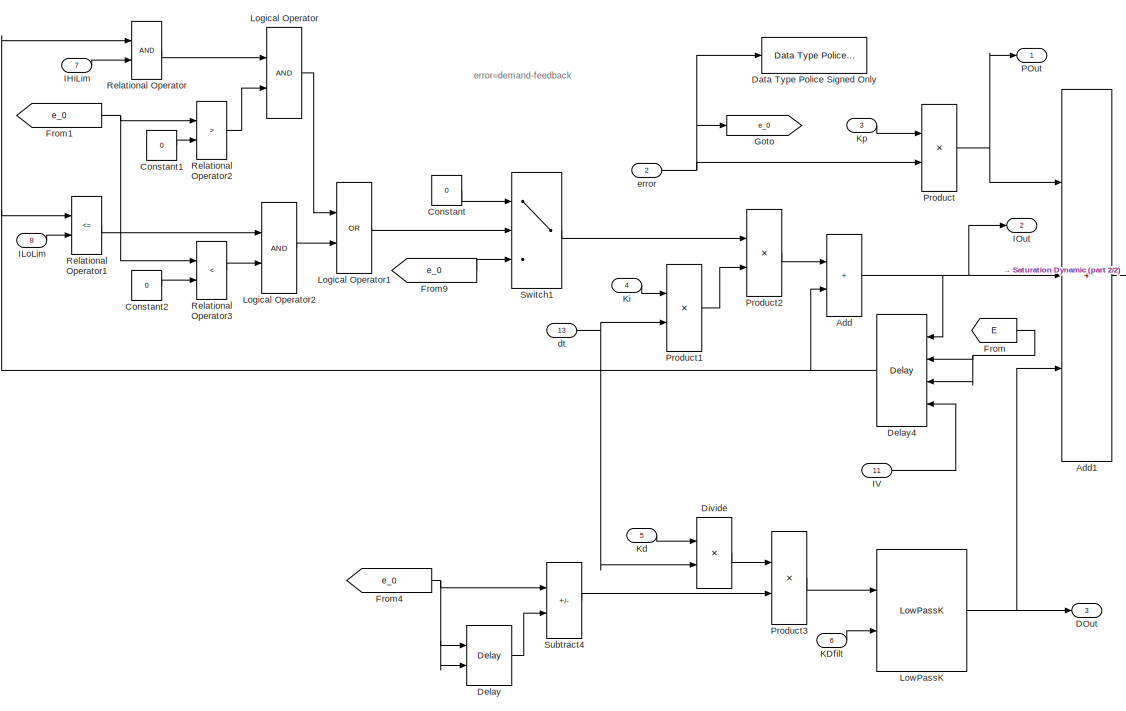
[diagram: Transfer Functions/PIDGov2 - part 1/2, left side, full height]
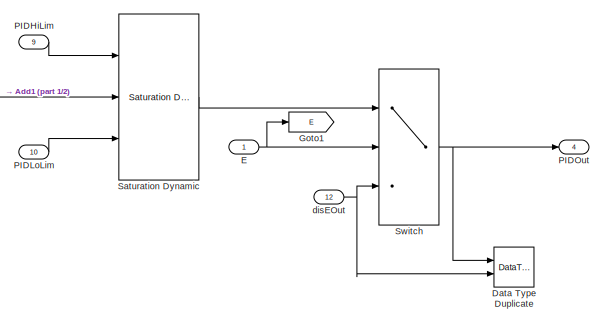
[diagram: Transfer Functions/PIDGov2 - part 2/2, middle right region]
BLOCK [SubSystem] Transfer Functions/PIDGov2
  Ports = [13, 4]
  RequestExecContextInheritance = off
BLOCK [Sum] Transfer Functions/PIDGov2/Add
  IconShape = rectangular
  InputSameDT = on
  OutDataTypeStr = Inherit: Inherit via back propagation
  Ports = [2, 1]
BLOCK [Sum] Transfer Functions/PIDGov2/Add1
  IconShape = rectangular
  InputSameDT = on
  Inputs = +++
  OutDataTypeStr = Inherit: Inherit via back propagation
  Ports = [3, 1]
  SaturateOnIntegerOverflow = on
BLOCK [Constant] Transfer Functions/PIDGov2/Constant
  OutDataTypeStr = Inherit: Inherit via back propagation
  Value = 0
BLOCK [Constant] Transfer Functions/PIDGov2/Constant1
  OutDataTypeStr = Inherit: Inherit via back propagation
  Value = 0
BLOCK [Constant] Transfer Functions/PIDGov2/Constant2
  OutDataTypeStr = Inherit: Inherit via back propagation
  Value = 0
BLOCK [Outport] Transfer Functions/PIDGov2/DOut
  Port = 3
BLOCK [DataTypeDuplicate] Transfer Functions/PIDGov2/Data Type Duplicate
  Ports = [2]
BLOCK [Reference] Transfer Functions/PIDGov2/Data Type Police Signed Only  REF=$bdroot/Miscellaneous/Data Type Police
Signed Only
  Ports = [1]
  SourceBlock = $bdroot/Miscellaneous/Data Type Police\nSigned Only
BLOCK [Delay] Transfer Functions/PIDGov2/Delay
  DelayLength = 1
  InitialConditionSource = Input port
  InputPortMap = u0,p4
  Ports = [2, 1]
BLOCK [Delay] Transfer Functions/PIDGov2/Delay4
  DelayLength = 1
  ExternalReset = Rising
  InitialConditionSource = Input port
  InputPortMap = u0,e6,r5,p4
  NameLocation = top
  Ports = [4, 1]
  ShowEnablePort = on
BLOCK [Product] Transfer Functions/PIDGov2/Divide
  Inputs = */
  OutDataTypeStr = fixdt(1,32,2^-13,0)
  Ports = [2, 1]
BLOCK [Inport] Transfer Functions/PIDGov2/E
BLOCK [From] Transfer Functions/PIDGov2/From
  GotoTag = E
BLOCK [From] Transfer Functions/PIDGov2/From1
  GotoTag = e_0
BLOCK [From] Transfer Functions/PIDGov2/From4
  GotoTag = e_0
BLOCK [From] Transfer Functions/PIDGov2/From9
  GotoTag = e_0
BLOCK [Goto] Transfer Functions/PIDGov2/Goto
  GotoTag = e_0
BLOCK [Goto] Transfer Functions/PIDGov2/Goto1
  GotoTag = E
BLOCK [Inport] Transfer Functions/PIDGov2/IHiLim
  Port = 7
BLOCK [Inport] Transfer Functions/PIDGov2/ILoLim
  Port = 8
BLOCK [Outport] Transfer Functions/PIDGov2/IOut
  Port = 2
BLOCK [Inport] Transfer Functions/PIDGov2/IV
  Port = 11
BLOCK [Inport] Transfer Functions/PIDGov2/KDfilt
  Port = 6
BLOCK [Inport] Transfer Functions/PIDGov2/Kd
  Port = 5
BLOCK [Inport] Transfer Functions/PIDGov2/Ki
  Port = 4
BLOCK [Inport] Transfer Functions/PIDGov2/Kp
  Port = 3
BLOCK [Logic] Transfer Functions/PIDGov2/Logical Operator
  OutDataTypeStr = boolean
  Ports = [2, 1]
BLOCK [Logic] Transfer Functions/PIDGov2/Logical Operator1
  Operator = OR
  OutDataTypeStr = boolean
  Ports = [2, 1]
BLOCK [Logic] Transfer Functions/PIDGov2/Logical Operator2
  OutDataTypeStr = boolean
  Ports = [2, 1]
BLOCK [Reference] Transfer Functions/PIDGov2/LowPassK  REF=$bdroot/Transfer Functions/LowPassK
  Ports = [2, 1]
  SourceBlock = $bdroot/Transfer Functions/LowPassK
  SourceType = LowPassK
BLOCK [Inport] Transfer Functions/PIDGov2/PIDHiLim
  Port = 9
BLOCK [Inport] Transfer Functions/PIDGov2/PIDLoLim
  Port = 10
BLOCK [Outport] Transfer Functions/PIDGov2/PIDOut
  Port = 4
BLOCK [Outport] Transfer Functions/PIDGov2/POut
BLOCK [Product] Transfer Functions/PIDGov2/Product
  OutDataTypeStr = Inherit: Inherit via back propagation
  Ports = [2, 1]
BLOCK [Product] Transfer Functions/PIDGov2/Product1
  OutDataTypeStr = fixdt(1,32,2^-13,0)
  Ports = [2, 1]
BLOCK [Product] Transfer Functions/PIDGov2/Product2
  OutDataTypeStr = Inherit: Inherit via back propagation
  Ports = [2, 1]
BLOCK [Product] Transfer Functions/PIDGov2/Product3
  OutDataTypeStr = Inherit: Inherit via back propagation
  Ports = [2, 1]
BLOCK [RelationalOperator] Transfer Functions/PIDGov2/Relational Operator
  OutDataTypeStr = boolean
  Ports = [2, 1]
  RndMeth = Simplest
BLOCK [RelationalOperator] Transfer Functions/PIDGov2/Relational Operator1
  Operator = <=
  OutDataTypeStr = boolean
  Ports = [2, 1]
  RndMeth = Simplest
BLOCK [RelationalOperator] Transfer Functions/PIDGov2/Relational Operator2
  Operator = >
  OutDataTypeStr = boolean
  Ports = [2, 1]
  RndMeth = Simplest
BLOCK [RelationalOperator] Transfer Functions/PIDGov2/Relational Operator3
  Operator = <
  OutDataTypeStr = boolean
  Ports = [2, 1]
  RndMeth = Simplest
BLOCK [Reference] Transfer Functions/PIDGov2/Saturation Dynamic  REF=simulink/Discontinuities/Saturation
Dynamic
  Ports = [3, 1]
  SourceBlock = simulink/Discontinuities/Saturation\nDynamic
  SourceProductBaseCode = SL
  SourceType = Saturation Dynamic
BLOCK [Sum] Transfer Functions/PIDGov2/Subtract4
  IconShape = rectangular
  InputSameDT = on
  Inputs = +-
  OutDataTypeStr = Inherit: Same as first input
  Ports = [2, 1]
BLOCK [Switch] Transfer Functions/PIDGov2/Switch
  Criteria = u2 ~= 0
  SaturateOnIntegerOverflow = off
BLOCK [Switch] Transfer Functions/PIDGov2/Switch1
  Criteria = u2 ~= 0
  SaturateOnIntegerOverflow = off
BLOCK [Inport] Transfer Functions/PIDGov2/disEOut
  Port = 12
BLOCK [Inport] Transfer Functions/PIDGov2/dt
  Port = 13
BLOCK [Inport] Transfer Functions/PIDGov2/error
  Port = 2
BLOCK [SubSystem] Transfer Functions/Pulse_Filter_T
  Ports = [5, 1]
  RequestExecContextInheritance = off
BLOCK [Sum] Transfer Functions/Pulse_Filter_T/Add
  IconShape = rectangular
  InputSameDT = on
  OutDataTypeStr = Inherit: Same as first input
  Ports = [2, 1]
  SaturateOnIntegerOverflow = on
BLOCK [Constant] Transfer Functions/Pulse_Filter_T/Constant
  OutDataTypeStr = Inherit: Inherit via back propagation
  Value = 0
BLOCK [DataTypeDuplicate] Transfer Functions/Pulse_Filter_T/Data Type Duplicate
  Ports = [2]
BLOCK [Reference] Transfer Functions/Pulse_Filter_T/Data Type Police Signed Only  REF=$bdroot/Miscellaneous/Data Type Police
Signed Only
  Ports = [1]
  SourceBlock = $bdroot/Miscellaneous/Data Type Police\nSigned Only
BLOCK [Inport] Transfer Functions/Pulse_Filter_T/E
  OutDataTypeStr = boolean
BLOCK [Reference] Transfer Functions/Pulse_Filter_T/EdgeBi  REF=$bdroot/Comparison operators/EdgeBi
  Ports = [1, 1]
  SourceBlock = $bdroot/Comparison operators/EdgeBi
  SourceType = EdgeBi
BLOCK [Reference] Transfer Functions/Pulse_Filter_T/EdgeRising  REF=$bdroot/Comparison operators/EdgeRising
  Ports = [1, 1]
  SourceBlock = $bdroot/Comparison operators/EdgeRising
  SourceType = EdgeRising
BLOCK [Reference] Transfer Functions/Pulse_Filter_T/LowPassT_R  REF=$bdroot/Transfer Functions/LowPassT_R
  Ports = [4, 1]
  SourceBlock = $bdroot/Transfer Functions/LowPassT_R
  SourceType = LowPassT_R
BLOCK [Inport] Transfer Functions/Pulse_Filter_T/Peak
  Port = 2
BLOCK [Switch] Transfer Functions/Pulse_Filter_T/Switch
  Criteria = u2 ~= 0
  SaturateOnIntegerOverflow = off
BLOCK [Switch] Transfer Functions/Pulse_Filter_T/Switch1
  Criteria = u2 ~= 0
  SaturateOnIntegerOverflow = off
BLOCK [Inport] Transfer Functions/Pulse_Filter_T/T
  Port = 4
  Unit = s
BLOCK [Inport] Transfer Functions/Pulse_Filter_T/Targt
  Port = 3
BLOCK [Inport] Transfer Functions/Pulse_Filter_T/dt
  Port = 5
  Unit = msec
BLOCK [Outport] Transfer Functions/Pulse_Filter_T/y
  VectorParamsAs1DForOutWhenUnconnected = off
ANNOTATION (root): 库模块建立原则： 尽可能的利用simulink里自带的模块；尽可能保留simulink的习惯； Enable：逻辑量，=1时表示激活某个功能；=0时表示不激活，保持上一时刻的值； R，RV：重置，当R=1时，将状态量恢复到初始值；或者将输出直接给定某个值（RV）；或者直接使输出等于输入。 关于E和R：用E时，暗示某个功能默认是不起作用的，当E从0变到1时激活它；用R时，暗示某个功能默认是激活的，当R从0变到1时使其不再起作用。 Initial Condition，IC：注意设置状态量的初始值；同时注意区分状态量的初始值不一定等于模块输出端口的初始值；
ANNOTATION Comparison operators/EdgeBi: Edge
ANNOTATION Comparison operators/EdgeBi: U(k)
ANNOTATION Comparison operators/EdgeFalling: Edge
ANNOTATION Comparison operators/EdgeFalling: U(k)
ANNOTATION Comparison operators/EdgeRising: Edge
ANNOTATION Comparison operators/EdgeRising: U(k)
ANNOTATION Fault Manager: 模型中所有故障共享数组Fault_Ind_All_Array，数组下标即故障编号（ID），数组元素值为该故障编号对应的故障状态（1表示有故障，0表示无故障）。该数组下标从0开始，但下标0对应无故障的故障ID。
ANNOTATION Fault Manager/FM_T: Debounce逻辑
ANNOTATION Fault Manager/FM_frz_T: Debounce逻辑
ANNOTATION Fault Manager/Get_FG_Status: Fault Group用可标定的数组表示（FM_XXX_FG_CA）,其下标从0开始，数组元素为故障ID（FM_XXX_Fault_ID）； Fault Group数组内的元素-故障编号必须连续，若中间有间隔，则间隔之后的故障编号将不再考虑。
ANNOTATION Logical symbols/RSFilpFlop: S R Q NQ 0 1 0 1 1 0 1 0 0 0 Qn-1 !Qn-1 1 1 0 0
ANNOTATION Logical symbols/RSFilpFlop_Init: S R Q NQ 0 1 0 1 1 0 1 0 0 0 Qn-1 !Qn-1 1 1 0 0
ANNOTATION Logical symbols/RSFilpFlop_Rp: S R Q NQ 0 1 0 1 1 0 1 0 0 0 Qn-1 !Qn-1 1 1 0 1
ANNOTATION Logical symbols/RSFilpFlop_Rp_Init: S R Q NQ 0 1 0 1 1 0 1 0 0 0 Qn-1 !Qn-1 1 1 0 1
ANNOTATION Logical symbols/RSFilpFlop_Sp: S R Q NQ 0 1 0 1 1 0 1 0 0 0 Qn-1 !Qn-1 1 1 1 0
ANNOTATION Logical symbols/RSFilpFlop_Sp_Init: S R Q NQ 0 1 0 1 1 0 1 0 0 0 Qn-1 !Qn-1 1 1 1 0
ANNOTATION Soft Transitions/Multi_State_Ramp: freeze u_start
ANNOTATION Soft Transitions/Multi_State_Ramp: u_end
ANNOTATION Soft Transitions/Ramp_T: freeze u_start
ANNOTATION Soft Transitions/Ramp_T: u_end
ANNOTATION Timer and counter operators/TurnOnDelay: In>Out_z1 , 说明In为1，Out_Z1为0； 设计的关键在于考虑Delay模块的Reset条件 跟Debounce模块的区别关键在于中间计数器的Reset条件不同： 在In改变后在时间T以内又再次改变，TurnOnDelay中间计算器重置，Debonce模块计数器不重置。
ANNOTATION Transfer Functions/DT1: y=y_z1*k:冻结y，k累乘 可以将精度和范围分开处理
ANNOTATION Transfer Functions/PIDGov2: error=demand-feedback
NET Bit Operation/ClrBit/Bitwise Operator1:1 -> Bit Operation/ClrBit/Data Type Duplicate:3, Bit Operation/ClrBit/y:1
LINE Bit Operation/ClrBit/Bitwise Operator2:1 -> Bit Operation/ClrBit/Bitwise Operator1:2
NET Bit Operation/ClrBit/Constant2:1 -> Bit Operation/ClrBit/Data Type Duplicate:2, Bit Operation/ClrBit/Shift Arithmetic:1
LINE Bit Operation/ClrBit/Shift Arithmetic:1 -> Bit Operation/ClrBit/Bitwise Operator2:1
LINE Bit Operation/ClrBit/pos:1 -> Bit Operation/ClrBit/Shift Arithmetic:2
NET Bit Operation/ClrBit/u:1 -> Bit Operation/ClrBit/Bitwise Operator1:1, Bit Operation/ClrBit/Data Type Duplicate:1
LINE Bit Operation/ContactBit16/Bit Set10:1 -> Bit Operation/ContactBit16/Switch10:1
LINE Bit Operation/ContactBit16/Bit Set11:1 -> Bit Operation/ContactBit16/Switch11:1
LINE Bit Operation/ContactBit16/Bit Set12:1 -> Bit Operation/ContactBit16/Switch12:1
LINE Bit Operation/ContactBit16/Bit Set13:1 -> Bit Operation/ContactBit16/Switch13:1
LINE Bit Operation/ContactBit16/Bit Set14:1 -> Bit Operation/ContactBit16/Switch14:1
LINE Bit Operation/ContactBit16/Bit Set15:1 -> Bit Operation/ContactBit16/Switch15:1
LINE Bit Operation/ContactBit16/Bit Set1:1 -> Bit Operation/ContactBit16/Switch1:1
LINE Bit Operation/ContactBit16/Bit Set2:1 -> Bit Operation/ContactBit16/Switch2:1
LINE Bit Operation/ContactBit16/Bit Set3:1 -> Bit Operation/ContactBit16/Switch3:1
LINE Bit Operation/ContactBit16/Bit Set4:1 -> Bit Operation/ContactBit16/Switch4:1
LINE Bit Operation/ContactBit16/Bit Set5:1 -> Bit Operation/ContactBit16/Switch5:1
LINE Bit Operation/ContactBit16/Bit Set6:1 -> Bit Operation/ContactBit16/Switch6:1
LINE Bit Operation/ContactBit16/Bit Set7:1 -> Bit Operation/ContactBit16/Switch7:1
LINE Bit Operation/ContactBit16/Bit Set8:1 -> Bit Operation/ContactBit16/Switch8:1
LINE Bit Operation/ContactBit16/Bit Set9:1 -> Bit Operation/ContactBit16/Switch9:1
LINE Bit Operation/ContactBit16/Bit Set:1 -> Bit Operation/ContactBit16/Switch:1
LINE Bit Operation/ContactBit16/Bitwise_Operator:1 -> Bit Operation/ContactBit16/BitField:1
LINE Bit Operation/ContactBit16/Constant10:1 -> Bit Operation/ContactBit16/Bit Set5:1
LINE Bit Operation/ContactBit16/Constant11:1 -> Bit Operation/ContactBit16/Switch5:3
LINE Bit Operation/ContactBit16/Constant12:1 -> Bit Operation/ContactBit16/Bit Set6:1
LINE Bit Operation/ContactBit16/Constant13:1 -> Bit Operation/ContactBit16/Switch6:3
LINE Bit Operation/ContactBit16/Constant14:1 -> Bit Operation/ContactBit16/Bit Set7:1
LINE Bit Operation/ContactBit16/Constant15:1 -> Bit Operation/ContactBit16/Switch7:3
LINE Bit Operation/ContactBit16/Constant16:1 -> Bit Operation/ContactBit16/Bit Set8:1
LINE Bit Operation/ContactBit16/Constant17:1 -> Bit Operation/ContactBit16/Switch8:3
LINE Bit Operation/ContactBit16/Constant18:1 -> Bit Operation/ContactBit16/Bit Set13:1
LINE Bit Operation/ContactBit16/Constant19:1 -> Bit Operation/ContactBit16/Switch13:3
LINE Bit Operation/ContactBit16/Constant1:1 -> Bit Operation/ContactBit16/Switch:3
LINE Bit Operation/ContactBit16/Constant20:1 -> Bit Operation/ContactBit16/Bit Set14:1
LINE Bit Operation/ContactBit16/Constant21:1 -> Bit Operation/ContactBit16/Switch14:3
LINE Bit Operation/ContactBit16/Constant22:1 -> Bit Operation/ContactBit16/Bit Set15:1
LINE Bit Operation/ContactBit16/Constant23:1 -> Bit Operation/ContactBit16/Switch15:3
LINE Bit Operation/ContactBit16/Constant24:1 -> Bit Operation/ContactBit16/Bit Set9:1
LINE Bit Operation/ContactBit16/Constant25:1 -> Bit Operation/ContactBit16/Switch9:3
LINE Bit Operation/ContactBit16/Constant26:1 -> Bit Operation/ContactBit16/Bit Set10:1
LINE Bit Operation/ContactBit16/Constant27:1 -> Bit Operation/ContactBit16/Switch10:3
LINE Bit Operation/ContactBit16/Constant28:1 -> Bit Operation/ContactBit16/Bit Set11:1
LINE Bit Operation/ContactBit16/Constant29:1 -> Bit Operation/ContactBit16/Switch11:3
LINE Bit Operation/ContactBit16/Constant2:1 -> Bit Operation/ContactBit16/Bit Set1:1
LINE Bit Operation/ContactBit16/Constant30:1 -> Bit Operation/ContactBit16/Bit Set12:1
LINE Bit Operation/ContactBit16/Constant31:1 -> Bit Operation/ContactBit16/Switch12:3
LINE Bit Operation/ContactBit16/Constant3:1 -> Bit Operation/ContactBit16/Switch1:3
LINE Bit Operation/ContactBit16/Constant4:1 -> Bit Operation/ContactBit16/Bit Set2:1
LINE Bit Operation/ContactBit16/Constant5:1 -> Bit Operation/ContactBit16/Switch2:3
LINE Bit Operation/ContactBit16/Constant6:1 -> Bit Operation/ContactBit16/Bit Set3:1
LINE Bit Operation/ContactBit16/Constant7:1 -> Bit Operation/ContactBit16/Switch3:3
LINE Bit Operation/ContactBit16/Constant8:1 -> Bit Operation/ContactBit16/Bit Set4:1
LINE Bit Operation/ContactBit16/Constant9:1 -> Bit Operation/ContactBit16/Switch4:3
LINE Bit Operation/ContactBit16/Constant:1 -> Bit Operation/ContactBit16/Bit Set:1
LINE Bit Operation/ContactBit16/Switch10:1 -> Bit Operation/ContactBit16/Bitwise_Operator:11
LINE Bit Operation/ContactBit16/Switch11:1 -> Bit Operation/ContactBit16/Bitwise_Operator:12
LINE Bit Operation/ContactBit16/Switch12:1 -> Bit Operation/ContactBit16/Bitwise_Operator:13
LINE Bit Operation/ContactBit16/Switch13:1 -> Bit Operation/ContactBit16/Bitwise_Operator:14
LINE Bit Operation/ContactBit16/Switch14:1 -> Bit Operation/ContactBit16/Bitwise_Operator:15
LINE Bit Operation/ContactBit16/Switch15:1 -> Bit Operation/ContactBit16/Bitwise_Operator:16
LINE Bit Operation/ContactBit16/Switch1:1 -> Bit Operation/ContactBit16/Bitwise_Operator:2
LINE Bit Operation/ContactBit16/Switch2:1 -> Bit Operation/ContactBit16/Bitwise_Operator:3
LINE Bit Operation/ContactBit16/Switch3:1 -> Bit Operation/ContactBit16/Bitwise_Operator:4
LINE Bit Operation/ContactBit16/Switch4:1 -> Bit Operation/ContactBit16/Bitwise_Operator:5
LINE Bit Operation/ContactBit16/Switch5:1 -> Bit Operation/ContactBit16/Bitwise_Operator:6
LINE Bit Operation/ContactBit16/Switch6:1 -> Bit Operation/ContactBit16/Bitwise_Operator:7
LINE Bit Operation/ContactBit16/Switch7:1 -> Bit Operation/ContactBit16/Bitwise_Operator:8
LINE Bit Operation/ContactBit16/Switch8:1 -> Bit Operation/ContactBit16/Bitwise_Operator:9
LINE Bit Operation/ContactBit16/Switch9:1 -> Bit Operation/ContactBit16/Bitwise_Operator:10
LINE Bit Operation/ContactBit16/Switch:1 -> Bit Operation/ContactBit16/Bitwise_Operator:1
LINE Bit Operation/ContactBit16/bit0:1 -> Bit Operation/ContactBit16/Switch:2
LINE Bit Operation/ContactBit16/bit10:1 -> Bit Operation/ContactBit16/Switch10:2
LINE Bit Operation/ContactBit16/bit11:1 -> Bit Operation/ContactBit16/Switch11:2
LINE Bit Operation/ContactBit16/bit12:1 -> Bit Operation/ContactBit16/Switch12:2
LINE Bit Operation/ContactBit16/bit13:1 -> Bit Operation/ContactBit16/Switch13:2
LINE Bit Operation/ContactBit16/bit14:1 -> Bit Operation/ContactBit16/Switch14:2
LINE Bit Operation/ContactBit16/bit15:1 -> Bit Operation/ContactBit16/Switch15:2
LINE Bit Operation/ContactBit16/bit1:1 -> Bit Operation/ContactBit16/Switch1:2
LINE Bit Operation/ContactBit16/bit2:1 -> Bit Operation/ContactBit16/Switch2:2
LINE Bit Operation/ContactBit16/bit3:1 -> Bit Operation/ContactBit16/Switch3:2
LINE Bit Operation/ContactBit16/bit4:1 -> Bit Operation/ContactBit16/Switch4:2
LINE Bit Operation/ContactBit16/bit5:1 -> Bit Operation/ContactBit16/Switch5:2
LINE Bit Operation/ContactBit16/bit6:1 -> Bit Operation/ContactBit16/Switch6:2
LINE Bit Operation/ContactBit16/bit7:1 -> Bit Operation/ContactBit16/Switch7:2
LINE Bit Operation/ContactBit16/bit8:1 -> Bit Operation/ContactBit16/Switch8:2
LINE Bit Operation/ContactBit16/bit9:1 -> Bit Operation/ContactBit16/Switch9:2
LINE Bit Operation/ContactBit8/Bit Set1:1 -> Bit Operation/ContactBit8/Switch1:1
LINE Bit Operation/ContactBit8/Bit Set2:1 -> Bit Operation/ContactBit8/Switch2:1
LINE Bit Operation/ContactBit8/Bit Set3:1 -> Bit Operation/ContactBit8/Switch3:1
LINE Bit Operation/ContactBit8/Bit Set4:1 -> Bit Operation/ContactBit8/Switch4:1
LINE Bit Operation/ContactBit8/Bit Set5:1 -> Bit Operation/ContactBit8/Switch5:1
LINE Bit Operation/ContactBit8/Bit Set6:1 -> Bit Operation/ContactBit8/Switch6:1
LINE Bit Operation/ContactBit8/Bit Set7:1 -> Bit Operation/ContactBit8/Switch7:1
LINE Bit Operation/ContactBit8/Bit Set:1 -> Bit Operation/ContactBit8/Switch:1
LINE Bit Operation/ContactBit8/Bitwise_Operator:1 -> Bit Operation/ContactBit8/BitField:1
LINE Bit Operation/ContactBit8/Constant10:1 -> Bit Operation/ContactBit8/Bit Set5:1
LINE Bit Operation/ContactBit8/Constant11:1 -> Bit Operation/ContactBit8/Switch5:3
LINE Bit Operation/ContactBit8/Constant12:1 -> Bit Operation/ContactBit8/Bit Set6:1
LINE Bit Operation/ContactBit8/Constant13:1 -> Bit Operation/ContactBit8/Switch6:3
LINE Bit Operation/ContactBit8/Constant14:1 -> Bit Operation/ContactBit8/Bit Set7:1
LINE Bit Operation/ContactBit8/Constant15:1 -> Bit Operation/ContactBit8/Switch7:3
LINE Bit Operation/ContactBit8/Constant1:1 -> Bit Operation/ContactBit8/Switch:3
LINE Bit Operation/ContactBit8/Constant2:1 -> Bit Operation/ContactBit8/Bit Set1:1
LINE Bit Operation/ContactBit8/Constant3:1 -> Bit Operation/ContactBit8/Switch1:3
LINE Bit Operation/ContactBit8/Constant4:1 -> Bit Operation/ContactBit8/Bit Set2:1
LINE Bit Operation/ContactBit8/Constant5:1 -> Bit Operation/ContactBit8/Switch2:3
LINE Bit Operation/ContactBit8/Constant6:1 -> Bit Operation/ContactBit8/Bit Set3:1
LINE Bit Operation/ContactBit8/Constant7:1 -> Bit Operation/ContactBit8/Switch3:3
LINE Bit Operation/ContactBit8/Constant8:1 -> Bit Operation/ContactBit8/Bit Set4:1
LINE Bit Operation/ContactBit8/Constant9:1 -> Bit Operation/ContactBit8/Switch4:3
LINE Bit Operation/ContactBit8/Constant:1 -> Bit Operation/ContactBit8/Bit Set:1
LINE Bit Operation/ContactBit8/Switch1:1 -> Bit Operation/ContactBit8/Bitwise_Operator:2
LINE Bit Operation/ContactBit8/Switch2:1 -> Bit Operation/ContactBit8/Bitwise_Operator:3
LINE Bit Operation/ContactBit8/Switch3:1 -> Bit Operation/ContactBit8/Bitwise_Operator:4
LINE Bit Operation/ContactBit8/Switch4:1 -> Bit Operation/ContactBit8/Bitwise_Operator:5
LINE Bit Operation/ContactBit8/Switch5:1 -> Bit Operation/ContactBit8/Bitwise_Operator:6
LINE Bit Operation/ContactBit8/Switch6:1 -> Bit Operation/ContactBit8/Bitwise_Operator:7
LINE Bit Operation/ContactBit8/Switch7:1 -> Bit Operation/ContactBit8/Bitwise_Operator:8
LINE Bit Operation/ContactBit8/Switch:1 -> Bit Operation/ContactBit8/Bitwise_Operator:1
LINE Bit Operation/ContactBit8/bit0:1 -> Bit Operation/ContactBit8/Switch:2
LINE Bit Operation/ContactBit8/bit1:1 -> Bit Operation/ContactBit8/Switch1:2
LINE Bit Operation/ContactBit8/bit2:1 -> Bit Operation/ContactBit8/Switch2:2
LINE Bit Operation/ContactBit8/bit3:1 -> Bit Operation/ContactBit8/Switch3:2
LINE Bit Operation/ContactBit8/bit4:1 -> Bit Operation/ContactBit8/Switch4:2
LINE Bit Operation/ContactBit8/bit5:1 -> Bit Operation/ContactBit8/Switch5:2
LINE Bit Operation/ContactBit8/bit6:1 -> Bit Operation/ContactBit8/Switch6:2
LINE Bit Operation/ContactBit8/bit7:1 -> Bit Operation/ContactBit8/Switch7:2
NET Bit Operation/GetBit/Bitwise Operator1:1 -> Bit Operation/GetBit/Data Type Duplicate:3, Bit Operation/GetBit/y:1
NET Bit Operation/GetBit/Constant2:1 -> Bit Operation/GetBit/Bitwise Operator1:1, Bit Operation/GetBit/Data Type Duplicate:2
LINE Bit Operation/GetBit/Shift Arithmetic:1 -> Bit Operation/GetBit/Bitwise Operator1:2
LINE Bit Operation/GetBit/pos:1 -> Bit Operation/GetBit/Shift Arithmetic:2
NET Bit Operation/GetBit/u:1 -> Bit Operation/GetBit/Data Type Duplicate:1, Bit Operation/GetBit/Shift Arithmetic:1
LINE Bit Operation/PutBit/Bitwise Operator1:1 -> Bit Operation/PutBit/Switch:3
LINE Bit Operation/PutBit/Bitwise Operator2:1 -> Bit Operation/PutBit/Bitwise Operator1:2
LINE Bit Operation/PutBit/Bitwise Operator:1 -> Bit Operation/PutBit/Switch:1
NET Bit Operation/PutBit/Constant2:1 -> Bit Operation/PutBit/Data Type Duplicate:2, Bit Operation/PutBit/Shift Arithmetic:1
NET Bit Operation/PutBit/Shift Arithmetic:1 -> Bit Operation/PutBit/Bitwise Operator2:1, Bit Operation/PutBit/Bitwise Operator:2
NET Bit Operation/PutBit/Switch:1 -> Bit Operation/PutBit/Data Type Duplicate:3, Bit Operation/PutBit/y:1
LINE Bit Operation/PutBit/bit:1 -> Bit Operation/PutBit/Switch:2
LINE Bit Operation/PutBit/pos:1 -> Bit Operation/PutBit/Shift Arithmetic:2
NET Bit Operation/PutBit/u:1 -> Bit Operation/PutBit/Bitwise Operator1:1, Bit Operation/PutBit/Bitwise Operator:1, Bit Operation/PutBit/Data Type Duplicate:1
NET Bit Operation/SetBit/Bitwise Operator:1 -> Bit Operation/SetBit/Data Type Duplicate:3, Bit Operation/SetBit/y:1
NET Bit Operation/SetBit/Constant2:1 -> Bit Operation/SetBit/Data Type Duplicate:2, Bit Operation/SetBit/Shift Arithmetic:1
LINE Bit Operation/SetBit/Shift Arithmetic:1 -> Bit Operation/SetBit/Bitwise Operator:2
LINE Bit Operation/SetBit/pos:1 -> Bit Operation/SetBit/Shift Arithmetic:2
NET Bit Operation/SetBit/u:1 -> Bit Operation/SetBit/Bitwise Operator:1, Bit Operation/SetBit/Data Type Duplicate:1
LINE Bit Operation/TestBitAll/Bitwise Operator1:1 -> Bit Operation/TestBitAll/Relational Operator:1
LINE Bit Operation/TestBitAll/Constant2:1 -> Bit Operation/TestBitAll/Switch:3
NET Bit Operation/TestBitAll/Mask:1 -> Bit Operation/TestBitAll/Bitwise Operator1:2, Bit Operation/TestBitAll/Relational Operator:2, Bit Operation/TestBitAll/Switch:2
LINE Bit Operation/TestBitAll/Relational Operator:1 -> Bit Operation/TestBitAll/Switch:1
LINE Bit Operation/TestBitAll/Switch:1 -> Bit Operation/TestBitAll/y:1
LINE Bit Operation/TestBitAll/u:1 -> Bit Operation/TestBitAll/Bitwise Operator1:1
LINE Bit Operation/TestBitOne/Bitwise Operator1:1 -> Bit Operation/TestBitOne/Compare To Zero:1
LINE Bit Operation/TestBitOne/Compare To Zero:1 -> Bit Operation/TestBitOne/y:1
LINE Bit Operation/TestBitOne/Mask:1 -> Bit Operation/TestBitOne/Bitwise Operator1:2
LINE Bit Operation/TestBitOne/u:1 -> Bit Operation/TestBitOne/Bitwise Operator1:1
LINE Comparison operators/EdgeBi/Delay:1 -> Comparison operators/EdgeBi/FixPt Relational Operator:2
LINE Comparison operators/EdgeBi/FixPt Relational Operator:1 -> Comparison operators/EdgeBi/Y:1
NET Comparison operators/EdgeBi/U:1 -> Comparison operators/EdgeBi/Delay:1, Comparison operators/EdgeBi/Delay:2, Comparison operators/EdgeBi/FixPt Relational Operator:1
LINE Comparison operators/EdgeFalling/Delay:1 -> Comparison operators/EdgeFalling/FixPt Relational Operator:2
LINE Comparison operators/EdgeFalling/FixPt Relational Operator:1 -> Comparison operators/EdgeFalling/Y:1
NET Comparison operators/EdgeFalling/U:1 -> Comparison operators/EdgeFalling/Delay:1, Comparison operators/EdgeFalling/Delay:2, Comparison operators/EdgeFalling/FixPt Relational Operator:1
LINE Comparison operators/EdgeRising/Delay:1 -> Comparison operators/EdgeRising/FixPt Relational Operator:2
LINE Comparison operators/EdgeRising/FixPt Relational Operator:1 -> Comparison operators/EdgeRising/Y:1
NET Comparison operators/EdgeRising/U:1 -> Comparison operators/EdgeRising/Delay:1, Comparison operators/EdgeRising/Delay:2, Comparison operators/EdgeRising/FixPt Relational Operator:1
LINE Comparison operators/Hysteresis/Constant1:1 -> Comparison operators/Hysteresis/Switch1:1
LINE Comparison operators/Hysteresis/Constant:1 -> Comparison operators/Hysteresis/Switch:1
LINE Comparison operators/Hysteresis/Delay:1 -> Comparison operators/Hysteresis/Switch1:3
LINE Comparison operators/Hysteresis/H:1 -> Comparison operators/Hysteresis/Relational Operator1:2
LINE Comparison operators/Hysteresis/L:1 -> Comparison operators/Hysteresis/Relational Operator:2
LINE Comparison operators/Hysteresis/Relational Operator1:1 -> Comparison operators/Hysteresis/Switch:2
LINE Comparison operators/Hysteresis/Relational Operator:1 -> Comparison operators/Hysteresis/Switch1:2
LINE Comparison operators/Hysteresis/Switch1:1 -> Comparison operators/Hysteresis/Switch:3
NET Comparison operators/Hysteresis/Switch:1 -> Comparison operators/Hysteresis/Delay:1, Comparison operators/Hysteresis/y:1
NET Comparison operators/Hysteresis/u:1 -> Comparison operators/Hysteresis/Relational Operator1:1, Comparison operators/Hysteresis/Relational Operator:1
LINE Fault Manager/FM/Add:1 -> Fault Manager/FM/Switch1:1
LINE Fault Manager/FM/Constant1:1 -> Fault Manager/FM/Saturation Dynamic:3
LINE Fault Manager/FM/Constant2:1 -> Fault Manager/FM/Relational Operator:1
LINE Fault Manager/FM/Constant3:1 -> Fault Manager/FM/Relational Operator1:1
LINE Fault Manager/FM/Constant4:1 -> Fault Manager/FM/Report_Fault_Status:2
LINE Fault Manager/FM/Constant:1 -> Fault Manager/FM/Saturation Dynamic:1
LINE Fault Manager/FM/Logical Operator:1 -> Fault Manager/FM/RSFilpFlop_Sp:2
NET Fault Manager/FM/RSFilpFlop_Sp:1 -> Fault Manager/FM/FM_xxx_fault_rec:1, Fault Manager/FM/Report_Fault_Status:1
LINE Fault Manager/FM/RSFilpFlop_Sp:2 -> Fault Manager/FM/Terminator:1
LINE Fault Manager/FM/Relational Operator1:1 -> Fault Manager/FM/Logical Operator:1
LINE Fault Manager/FM/Relational Operator:1 -> Fault Manager/FM/RSFilpFlop_Sp:1
NET Fault Manager/FM/Saturation Dynamic:1 -> Fault Manager/FM/Relational Operator1:2, Fault Manager/FM/Relational Operator:2, Fault Manager/FM/Unit Delay:1
NET Fault Manager/FM/Signal Copy:1 -> Fault Manager/FM/FM_xxx_fault_soft:1, Fault Manager/FM/Switch1:2
LINE Fault Manager/FM/Subtract:1 -> Fault Manager/FM/Switch1:3
LINE Fault Manager/FM/Switch1:1 -> Fault Manager/FM/Saturation Dynamic:2
NET Fault Manager/FM/Unit Delay:1 -> Fault Manager/FM/Add:1, Fault Manager/FM/Subtract:1
LINE Fault Manager/FM/dec:1 -> Fault Manager/FM/Subtract:2
LINE Fault Manager/FM/df:1 -> Fault Manager/FM/Signal Copy:1
LINE Fault Manager/FM/enRecy:1 -> Fault Manager/FM/Logical Operator:2
LINE Fault Manager/FM/inc:1 -> Fault Manager/FM/Add:2
LINE Fault Manager/FM_T/Add:1 -> Fault Manager/FM_T/Switch:1
LINE Fault Manager/FM_T/Constant1:1 -> Fault Manager/FM_T/Switch2:1
LINE Fault Manager/FM_T/Constant2:1 -> Fault Manager/FM_T/Report_Fault_Status:2
LINE Fault Manager/FM_T/Constant:1 -> Fault Manager/FM_T/Switch1:1
NET Fault Manager/FM_T/Delay1:1 -> Fault Manager/FM_T/Logical Operator2:1, Fault Manager/FM_T/Logical Operator:2, Fault Manager/FM_T/Relational Operator2:2, Fault Manager/FM_T/Switch2:3
LINE Fault Manager/FM_T/Delay2:1 -> Fault Manager/FM_T/Delay:2
NET Fault Manager/FM_T/Delay:1 -> Fault Manager/FM_T/Add:1, Fault Manager/FM_T/Max:1, Fault Manager/FM_T/Relational Operator1:1, Fault Manager/FM_T/Relational Operator:1
NET Fault Manager/FM_T/Logical Operator1:1 -> Fault Manager/FM_T/Logical Operator3:1, Fault Manager/FM_T/Switch1:2
LINE Fault Manager/FM_T/Logical Operator2:1 -> Fault Manager/FM_T/Logical Operator1:2
LINE Fault Manager/FM_T/Logical Operator3:1 -> Fault Manager/FM_T/Delay2:1
LINE Fault Manager/FM_T/Logical Operator4:1 -> Fault Manager/FM_T/Switch2:2
NET Fault Manager/FM_T/Logical Operator:1 -> Fault Manager/FM_T/Logical Operator3:2, Fault Manager/FM_T/Logical Operator4:1
LINE Fault Manager/FM_T/Max:1 -> Fault Manager/FM_T/Subtract:1
LINE Fault Manager/FM_T/Relational Operator1:1 -> Fault Manager/FM_T/Logical Operator:1
LINE Fault Manager/FM_T/Relational Operator2:1 -> Fault Manager/FM_T/Switch:2
LINE Fault Manager/FM_T/Relational Operator:1 -> Fault Manager/FM_T/Logical Operator1:1
LINE Fault Manager/FM_T/Signal Copy:1 -> Fault Manager/FM_T/FM_XXX_fault_soft:1
LINE Fault Manager/FM_T/Subtract:1 -> Fault Manager/FM_T/Switch:3
NET Fault Manager/FM_T/Switch1:1 -> Fault Manager/FM_T/Delay1:1, Fault Manager/FM_T/FM_XXX_fault_rec:1, Fault Manager/FM_T/Report_Fault_Status:1
LINE Fault Manager/FM_T/Switch2:1 -> Fault Manager/FM_T/Switch1:3
LINE Fault Manager/FM_T/Switch:1 -> Fault Manager/FM_T/Delay:1
NET Fault Manager/FM_T/df:1 -> Fault Manager/FM_T/Relational Operator2:1, Fault Manager/FM_T/Signal Copy:1
NET Fault Manager/FM_T/dt:1 -> Fault Manager/FM_T/Add:2, Fault Manager/FM_T/Max:2, Fault Manager/FM_T/Subtract:2
LINE Fault Manager/FM_T/enRecy:1 -> Fault Manager/FM_T/Logical Operator4:2
LINE Fault Manager/FM_T/tRst:1 -> Fault Manager/FM_T/Relational Operator1:2
LINE Fault Manager/FM_T/tSet:1 -> Fault Manager/FM_T/Relational Operator:2
LINE Fault Manager/FM_frz/Add:1 -> Fault Manager/FM_frz/Switch1:1
LINE Fault Manager/FM_frz/Constant1:1 -> Fault Manager/FM_frz/Saturation Dynamic:3
LINE Fault Manager/FM_frz/Constant2:1 -> Fault Manager/FM_frz/Relational Operator:1
LINE Fault Manager/FM_frz/Constant3:1 -> Fault Manager/FM_frz/Relational Operator1:1
LINE Fault Manager/FM_frz/Constant4:1 -> Fault Manager/FM_frz/Report_Fault_Status:2
LINE Fault Manager/FM_frz/Constant:1 -> Fault Manager/FM_frz/Saturation Dynamic:1
NET Fault Manager/FM_frz/Delay1:1 -> Fault Manager/FM_frz/Add:1, Fault Manager/FM_frz/Subtract:1
LINE Fault Manager/FM_frz/Delay:1 -> Fault Manager/FM_frz/Switch:1
LINE Fault Manager/FM_frz/Logical Operator:1 -> Fault Manager/FM_frz/RSFilpFlop_Sp:2
NET Fault Manager/FM_frz/RSFilpFlop_Sp:1 -> Fault Manager/FM_frz/FM_xxx_fault_rec:1, Fault Manager/FM_frz/Report_Fault_Status:1
LINE Fault Manager/FM_frz/RSFilpFlop_Sp:2 -> Fault Manager/FM_frz/Terminator:1
LINE Fault Manager/FM_frz/Relational Operator1:1 -> Fault Manager/FM_frz/Logical Operator:1
LINE Fault Manager/FM_frz/Relational Operator:1 -> Fault Manager/FM_frz/RSFilpFlop_Sp:1
NET Fault Manager/FM_frz/Saturation Dynamic:1 -> Fault Manager/FM_frz/Delay1:1, Fault Manager/FM_frz/Relational Operator1:2, Fault Manager/FM_frz/Relational Operator:2
LINE Fault Manager/FM_frz/Subtract:1 -> Fault Manager/FM_frz/Switch1:3
LINE Fault Manager/FM_frz/Switch1:1 -> Fault Manager/FM_frz/Saturation Dynamic:2
NET Fault Manager/FM_frz/Switch:1 -> Fault Manager/FM_frz/Delay:1, Fault Manager/FM_frz/FM_xxx_fault_soft:1
LINE Fault Manager/FM_frz/dec:1 -> Fault Manager/FM_frz/Subtract:2
NET Fault Manager/FM_frz/df:1 -> Fault Manager/FM_frz/Delay:2, Fault Manager/FM_frz/Switch1:2, Fault Manager/FM_frz/Switch:3
LINE Fault Manager/FM_frz/enRecy:1 -> Fault Manager/FM_frz/Logical Operator:2
NET Fault Manager/FM_frz/frz:1 -> Fault Manager/FM_frz/Delay1:2, Fault Manager/FM_frz/Switch:2
LINE Fault Manager/FM_frz/inc:1 -> Fault Manager/FM_frz/Add:2
LINE Fault Manager/FM_frz_T/Add:1 -> Fault Manager/FM_frz_T/Switch:1
LINE Fault Manager/FM_frz_T/Constant1:1 -> Fault Manager/FM_frz_T/Switch2:1
LINE Fault Manager/FM_frz_T/Constant2:1 -> Fault Manager/FM_frz_T/Report_Fault_Status:2
LINE Fault Manager/FM_frz_T/Constant:1 -> Fault Manager/FM_frz_T/Switch1:1
NET Fault Manager/FM_frz_T/Delay1:1 -> Fault Manager/FM_frz_T/Logical Operator2:1, Fault Manager/FM_frz_T/Logical Operator:2, Fault Manager/FM_frz_T/Relational Operator2:2, Fault Manager/FM_frz_T/Switch2:3
LINE Fault Manager/FM_frz_T/Delay2:1 -> Fault Manager/FM_frz_T/Delay:3
LINE Fault Manager/FM_frz_T/Delay3:1 -> Fault Manager/FM_frz_T/Switch3:1
NET Fault Manager/FM_frz_T/Delay:1 -> Fault Manager/FM_frz_T/Add:1, Fault Manager/FM_frz_T/Max:1, Fault Manager/FM_frz_T/Relational Operator1:1, Fault Manager/FM_frz_T/Relational Operator:1
NET Fault Manager/FM_frz_T/Logical Operator1:1 -> Fault Manager/FM_frz_T/Logical Operator3:1, Fault Manager/FM_frz_T/Switch1:2
LINE Fault Manager/FM_frz_T/Logical Operator2:1 -> Fault Manager/FM_frz_T/Logical Operator1:2
LINE Fault Manager/FM_frz_T/Logical Operator3:1 -> Fault Manager/FM_frz_T/Delay2:1
LINE Fault Manager/FM_frz_T/Logical Operator4:1 -> Fault Manager/FM_frz_T/Switch2:2
NET Fault Manager/FM_frz_T/Logical Operator:1 -> Fault Manager/FM_frz_T/Logical Operator3:2, Fault Manager/FM_frz_T/Logical Operator4:1
LINE Fault Manager/FM_frz_T/Max:1 -> Fault Manager/FM_frz_T/Subtract:1
LINE Fault Manager/FM_frz_T/Relational Operator1:1 -> Fault Manager/FM_frz_T/Logical Operator:1
LINE Fault Manager/FM_frz_T/Relational Operator2:1 -> Fault Manager/FM_frz_T/Switch:2
LINE Fault Manager/FM_frz_T/Relational Operator:1 -> Fault Manager/FM_frz_T/Logical Operator1:1
LINE Fault Manager/FM_frz_T/Subtract:1 -> Fault Manager/FM_frz_T/Switch:3
NET Fault Manager/FM_frz_T/Switch1:1 -> Fault Manager/FM_frz_T/Delay1:1, Fault Manager/FM_frz_T/FM_XXX_fault_rec:1, Fault Manager/FM_frz_T/Report_Fault_Status:1
LINE Fault Manager/FM_frz_T/Switch2:1 -> Fault Manager/FM_frz_T/Switch1:3
NET Fault Manager/FM_frz_T/Switch3:1 -> Fault Manager/FM_frz_T/Delay3:1, Fault Manager/FM_frz_T/FM_XXX_fault_soft:1
LINE Fault Manager/FM_frz_T/Switch:1 -> Fault Manager/FM_frz_T/Delay:1
NET Fault Manager/FM_frz_T/df:1 -> Fault Manager/FM_frz_T/Delay3:2, Fault Manager/FM_frz_T/Relational Operator2:1, Fault Manager/FM_frz_T/Switch3:3
NET Fault Manager/FM_frz_T/dt:1 -> Fault Manager/FM_frz_T/Add:2, Fault Manager/FM_frz_T/Max:2, Fault Manager/FM_frz_T/Subtract:2
LINE Fault Manager/FM_frz_T/enRecy:1 -> Fault Manager/FM_frz_T/Logical Operator4:2
NET Fault Manager/FM_frz_T/frz:1 -> Fault Manager/FM_frz_T/Delay:2, Fault Manager/FM_frz_T/Switch3:2
LINE Fault Manager/FM_frz_T/tRst:1 -> Fault Manager/FM_frz_T/Relational Operator1:2
LINE Fault Manager/FM_frz_T/tSet:1 -> Fault Manager/FM_frz_T/Relational Operator:2
LINE Fault Manager/Failure_Switch/Delay:1 -> Fault Manager/Failure_Switch/Switch:1
LINE Fault Manager/Failure_Switch/Ground:1 -> Fault Manager/Failure_Switch/Ramp_Slp:6
NET Fault Manager/Failure_Switch/NegSlp:1 -> Fault Manager/Failure_Switch/Data Type Duplicate:2, Fault Manager/Failure_Switch/Ramp_Slp:5
NET Fault Manager/Failure_Switch/PosSlp:1 -> Fault Manager/Failure_Switch/Data Type Duplicate:1, Fault Manager/Failure_Switch/Ramp_Slp:4
LINE Fault Manager/Failure_Switch/Ramp_Slp:1 -> Fault Manager/Failure_Switch/Terminator:1
NET Fault Manager/Failure_Switch/Ramp_Slp:2 -> Fault Manager/Failure_Switch/Data Type Duplicate1:3, Fault Manager/Failure_Switch/y:1
NET Fault Manager/Failure_Switch/Switch:1 -> Fault Manager/Failure_Switch/Delay:1, Fault Manager/Failure_Switch/Ramp_Slp:2
LINE Fault Manager/Failure_Switch/dt:1 -> Fault Manager/Failure_Switch/Ramp_Slp:7
LINE Fault Manager/Failure_Switch/fault_rec:1 -> Fault Manager/Failure_Switch/Ramp_Slp:1
LINE Fault Manager/Failure_Switch/fault_soft:1 -> Fault Manager/Failure_Switch/Switch:2
NET Fault Manager/Failure_Switch/rec_val:1 -> Fault Manager/Failure_Switch/Data Type Duplicate1:2, Fault Manager/Failure_Switch/Ramp_Slp:3
NET Fault Manager/Failure_Switch/u:1 -> Fault Manager/Failure_Switch/Data Type Duplicate1:1, Fault Manager/Failure_Switch/Delay:2, Fault Manager/Failure_Switch/Switch:3
LINE Fault Manager/Failure_Switch_T/Delay:1 -> Fault Manager/Failure_Switch_T/Switch:1
LINE Fault Manager/Failure_Switch_T/Ground:1 -> Fault Manager/Failure_Switch_T/Ramp_T:6
LINE Fault Manager/Failure_Switch_T/Ramp_T:1 -> Fault Manager/Failure_Switch_T/Terminator:1
NET Fault Manager/Failure_Switch_T/Ramp_T:2 -> Fault Manager/Failure_Switch_T/Data Type Duplicate1:3, Fault Manager/Failure_Switch_T/y:1
NET Fault Manager/Failure_Switch_T/Switch:1 -> Fault Manager/Failure_Switch_T/Delay:1, Fault Manager/Failure_Switch_T/Ramp_T:2
NET Fault Manager/Failure_Switch_T/T_to_norm:1 -> Fault Manager/Failure_Switch_T/Data Type Duplicate:1, Fault Manager/Failure_Switch_T/Ramp_T:4
NET Fault Manager/Failure_Switch_T/T_to_rec:1 -> Fault Manager/Failure_Switch_T/Data Type Duplicate:2, Fault Manager/Failure_Switch_T/Ramp_T:5
LINE Fault Manager/Failure_Switch_T/dt:1 -> Fault Manager/Failure_Switch_T/Ramp_T:7
LINE Fault Manager/Failure_Switch_T/fault_rec:1 -> Fault Manager/Failure_Switch_T/Ramp_T:1
LINE Fault Manager/Failure_Switch_T/fault_soft:1 -> Fault Manager/Failure_Switch_T/Switch:2
NET Fault Manager/Failure_Switch_T/rec_val:1 -> Fault Manager/Failure_Switch_T/Data Type Duplicate1:2, Fault Manager/Failure_Switch_T/Ramp_T:3
NET Fault Manager/Failure_Switch_T/u:1 -> Fault Manager/Failure_Switch_T/Data Type Duplicate1:1, Fault Manager/Failure_Switch_T/Delay:2, Fault Manager/Failure_Switch_T/Switch:3
LINE Fault Manager/Get_FG_Status/Fault_Group:1 -> Fault Manager/Get_FG_Status/While Iterator Subsystem:1
LINE Fault Manager/Get_FG_Status/While Iterator Subsystem/Constant:1 -> Fault Manager/Get_FG_Status/While Iterator Subsystem/Relational Operator:2
LINE Fault Manager/Get_FG_Status/While Iterator Subsystem/Data Store Read:1 -> Fault Manager/Get_FG_Status/While Iterator Subsystem/Table1D_Read1:1
NET Fault Manager/Get_FG_Status/While Iterator Subsystem/Fault_Group:1 -> Fault Manager/Get_FG_Status/While Iterator Subsystem/Table1D_Read:1, Fault Manager/Get_FG_Status/While Iterator Subsystem/Width:1
LINE Fault Manager/Get_FG_Status/While Iterator Subsystem/Logical Operator1:1 -> Fault Manager/Get_FG_Status/While Iterator Subsystem/Logical Operator:1
LINE Fault Manager/Get_FG_Status/While Iterator Subsystem/Logical Operator:1 -> Fault Manager/Get_FG_Status/While Iterator Subsystem/While Iterator:1
LINE Fault Manager/Get_FG_Status/While Iterator Subsystem/Relational Operator1:1 -> Fault Manager/Get_FG_Status/While Iterator Subsystem/Logical Operator:3
LINE Fault Manager/Get_FG_Status/While Iterator Subsystem/Relational Operator:1 -> Fault Manager/Get_FG_Status/While Iterator Subsystem/Logical Operator:2
NET Fault Manager/Get_FG_Status/While Iterator Subsystem/Table1D_Read1:1 -> Fault Manager/Get_FG_Status/While Iterator Subsystem/Logical Operator1:1, Fault Manager/Get_FG_Status/While Iterator Subsystem/Status:1
NET Fault Manager/Get_FG_Status/While Iterator Subsystem/Table1D_Read:1 -> Fault Manager/Get_FG_Status/While Iterator Subsystem/Relational Operator:1, Fault Manager/Get_FG_Status/While Iterator Subsystem/Table1D_Read1:2
NET Fault Manager/Get_FG_Status/While Iterator Subsystem/While Iterator:1 -> Fault Manager/Get_FG_Status/While Iterator Subsystem/Relational Operator1:1, Fault Manager/Get_FG_Status/While Iterator Subsystem/Table1D_Read:2
LINE Fault Manager/Get_FG_Status/While Iterator Subsystem/Width:1 -> Fault Manager/Get_FG_Status/While Iterator Subsystem/Relational Operator1:2
LINE Fault Manager/Get_FG_Status/While Iterator Subsystem:1 -> Fault Manager/Get_FG_Status/Status:1
LINE Fault Manager/Report_Fault_Status/ClearFault/Assignment:1 -> Fault Manager/Report_Fault_Status/ClearFault/Data Store Write:1
LINE Fault Manager/Report_Fault_Status/ClearFault/Constant:1 -> Fault Manager/Report_Fault_Status/ClearFault/Assignment:2
LINE Fault Manager/Report_Fault_Status/ClearFault/Data Store Read:1 -> Fault Manager/Report_Fault_Status/ClearFault/Assignment:1
LINE Fault Manager/Report_Fault_Status/ClearFault/fault_id:1 -> Fault Manager/Report_Fault_Status/ClearFault/Assignment:3
LINE Fault Manager/Report_Fault_Status/SetFault/Assignment:1 -> Fault Manager/Report_Fault_Status/SetFault/Data Store Write:1
LINE Fault Manager/Report_Fault_Status/SetFault/Constant:1 -> Fault Manager/Report_Fault_Status/SetFault/Assignment:2
LINE Fault Manager/Report_Fault_Status/SetFault/Data Store Read:1 -> Fault Manager/Report_Fault_Status/SetFault/Assignment:1
LINE Fault Manager/Report_Fault_Status/SetFault/fault_id:1 -> Fault Manager/Report_Fault_Status/SetFault/Assignment:3
NET Fault Manager/Report_Fault_Status/fault_id:1 -> Fault Manager/Report_Fault_Status/ClearFault:1, Fault Manager/Report_Fault_Status/SetFault:1
NET Fault Manager/Report_Fault_Status/fault_rec:1 -> Fault Manager/Report_Fault_Status/ClearFault:trigger, Fault Manager/Report_Fault_Status/SetFault:trigger
LINE Logical symbols/RSFilpFlop/Constant1:1 -> Logical symbols/RSFilpFlop/Switch1:1
LINE Logical symbols/RSFilpFlop/Constant2:1 -> Logical symbols/RSFilpFlop/Switch2:1
LINE Logical symbols/RSFilpFlop/Constant3:1 -> Logical symbols/RSFilpFlop/Switch3:1
LINE Logical symbols/RSFilpFlop/Constant:1 -> Logical symbols/RSFilpFlop/Switch:1
LINE Logical symbols/RSFilpFlop/Logical Operator:1 -> Logical symbols/RSFilpFlop/Switch3:3
NET Logical symbols/RSFilpFlop/R:1 -> Logical symbols/RSFilpFlop/Switch3:2, Logical symbols/RSFilpFlop/Switch:2
NET Logical symbols/RSFilpFlop/S:1 -> Logical symbols/RSFilpFlop/Switch1:2, Logical symbols/RSFilpFlop/Switch2:2
LINE Logical symbols/RSFilpFlop/Switch1:1 -> Logical symbols/RSFilpFlop/Switch:3
LINE Logical symbols/RSFilpFlop/Switch2:1 -> Logical symbols/RSFilpFlop/NQ:1
LINE Logical symbols/RSFilpFlop/Switch3:1 -> Logical symbols/RSFilpFlop/Switch2:3
NET Logical symbols/RSFilpFlop/Switch:1 -> Logical symbols/RSFilpFlop/Q:1, Logical symbols/RSFilpFlop/Unit Delay:1
NET Logical symbols/RSFilpFlop/Unit Delay:1 -> Logical symbols/RSFilpFlop/Logical Operator:1, Logical symbols/RSFilpFlop/Switch1:3
LINE Logical symbols/RSFilpFlop_Init/Constant1:1 -> Logical symbols/RSFilpFlop_Init/Switch1:1
LINE Logical symbols/RSFilpFlop_Init/Constant2:1 -> Logical symbols/RSFilpFlop_Init/Switch2:1
LINE Logical symbols/RSFilpFlop_Init/Constant3:1 -> Logical symbols/RSFilpFlop_Init/Switch3:1
LINE Logical symbols/RSFilpFlop_Init/Constant:1 -> Logical symbols/RSFilpFlop_Init/Switch:1
NET Logical symbols/RSFilpFlop_Init/Delay:1 -> Logical symbols/RSFilpFlop_Init/Logical Operator:1, Logical symbols/RSFilpFlop_Init/Switch1:3
LINE Logical symbols/RSFilpFlop_Init/IC:1 -> Logical symbols/RSFilpFlop_Init/Delay:2
LINE Logical symbols/RSFilpFlop_Init/Logical Operator:1 -> Logical symbols/RSFilpFlop_Init/Switch3:3
NET Logical symbols/RSFilpFlop_Init/R:1 -> Logical symbols/RSFilpFlop_Init/Switch3:2, Logical symbols/RSFilpFlop_Init/Switch:2
NET Logical symbols/RSFilpFlop_Init/S:1 -> Logical symbols/RSFilpFlop_Init/Switch1:2, Logical symbols/RSFilpFlop_Init/Switch2:2
LINE Logical symbols/RSFilpFlop_Init/Switch1:1 -> Logical symbols/RSFilpFlop_Init/Switch:3
LINE Logical symbols/RSFilpFlop_Init/Switch2:1 -> Logical symbols/RSFilpFlop_Init/NQ:1
LINE Logical symbols/RSFilpFlop_Init/Switch3:1 -> Logical symbols/RSFilpFlop_Init/Switch2:3
NET Logical symbols/RSFilpFlop_Init/Switch:1 -> Logical symbols/RSFilpFlop_Init/Delay:1, Logical symbols/RSFilpFlop_Init/Q:1
LINE Logical symbols/RSFilpFlop_Rp/Constant1:1 -> Logical symbols/RSFilpFlop_Rp/Switch1:1
LINE Logical symbols/RSFilpFlop_Rp/Constant:1 -> Logical symbols/RSFilpFlop_Rp/Switch:1
LINE Logical symbols/RSFilpFlop_Rp/Logical Operator:1 -> Logical symbols/RSFilpFlop_Rp/NQ:1
LINE Logical symbols/RSFilpFlop_Rp/Rp:1 -> Logical symbols/RSFilpFlop_Rp/Switch:2
LINE Logical symbols/RSFilpFlop_Rp/S:1 -> Logical symbols/RSFilpFlop_Rp/Switch1:2
LINE Logical symbols/RSFilpFlop_Rp/Switch1:1 -> Logical symbols/RSFilpFlop_Rp/Switch:3
NET Logical symbols/RSFilpFlop_Rp/Switch:1 -> Logical symbols/RSFilpFlop_Rp/Logical Operator:1, Logical symbols/RSFilpFlop_Rp/Q:1, Logical symbols/RSFilpFlop_Rp/Unit Delay:1
LINE Logical symbols/RSFilpFlop_Rp/Unit Delay:1 -> Logical symbols/RSFilpFlop_Rp/Switch1:3
LINE Logical symbols/RSFilpFlop_Rp_Init/Constant1:1 -> Logical symbols/RSFilpFlop_Rp_Init/Switch1:1
LINE Logical symbols/RSFilpFlop_Rp_Init/Constant:1 -> Logical symbols/RSFilpFlop_Rp_Init/Switch:1
LINE Logical symbols/RSFilpFlop_Rp_Init/Delay:1 -> Logical symbols/RSFilpFlop_Rp_Init/Switch1:3
LINE Logical symbols/RSFilpFlop_Rp_Init/IC:1 -> Logical symbols/RSFilpFlop_Rp_Init/Delay:2
LINE Logical symbols/RSFilpFlop_Rp_Init/Logical Operator:1 -> Logical symbols/RSFilpFlop_Rp_Init/NQ:1
LINE Logical symbols/RSFilpFlop_Rp_Init/Rp:1 -> Logical symbols/RSFilpFlop_Rp_Init/Switch:2
LINE Logical symbols/RSFilpFlop_Rp_Init/S:1 -> Logical symbols/RSFilpFlop_Rp_Init/Switch1:2
LINE Logical symbols/RSFilpFlop_Rp_Init/Switch1:1 -> Logical symbols/RSFilpFlop_Rp_Init/Switch:3
NET Logical symbols/RSFilpFlop_Rp_Init/Switch:1 -> Logical symbols/RSFilpFlop_Rp_Init/Delay:1, Logical symbols/RSFilpFlop_Rp_Init/Logical Operator:1, Logical symbols/RSFilpFlop_Rp_Init/Q:1
LINE Logical symbols/RSFilpFlop_Sp/Constant1:1 -> Logical symbols/RSFilpFlop_Sp/Switch1:1
LINE Logical symbols/RSFilpFlop_Sp/Constant:1 -> Logical symbols/RSFilpFlop_Sp/Switch:1
LINE Logical symbols/RSFilpFlop_Sp/Logical Operator:1 -> Logical symbols/RSFilpFlop_Sp/NQ:1
LINE Logical symbols/RSFilpFlop_Sp/R:1 -> Logical symbols/RSFilpFlop_Sp/Switch1:2
LINE Logical symbols/RSFilpFlop_Sp/Sp:1 -> Logical symbols/RSFilpFlop_Sp/Switch:2
LINE Logical symbols/RSFilpFlop_Sp/Switch1:1 -> Logical symbols/RSFilpFlop_Sp/Switch:3
NET Logical symbols/RSFilpFlop_Sp/Switch:1 -> Logical symbols/RSFilpFlop_Sp/Logical Operator:1, Logical symbols/RSFilpFlop_Sp/Q:1, Logical symbols/RSFilpFlop_Sp/Unit Delay:1
LINE Logical symbols/RSFilpFlop_Sp/Unit Delay:1 -> Logical symbols/RSFilpFlop_Sp/Switch1:3
LINE Logical symbols/RSFilpFlop_Sp_Init/Constant1:1 -> Logical symbols/RSFilpFlop_Sp_Init/Switch1:1
LINE Logical symbols/RSFilpFlop_Sp_Init/Constant:1 -> Logical symbols/RSFilpFlop_Sp_Init/Switch:1
LINE Logical symbols/RSFilpFlop_Sp_Init/Delay:1 -> Logical symbols/RSFilpFlop_Sp_Init/Switch1:3
LINE Logical symbols/RSFilpFlop_Sp_Init/IC:1 -> Logical symbols/RSFilpFlop_Sp_Init/Delay:2
LINE Logical symbols/RSFilpFlop_Sp_Init/Logical Operator:1 -> Logical symbols/RSFilpFlop_Sp_Init/NQ:1
LINE Logical symbols/RSFilpFlop_Sp_Init/R:1 -> Logical symbols/RSFilpFlop_Sp_Init/Switch1:2
LINE Logical symbols/RSFilpFlop_Sp_Init/Sp:1 -> Logical symbols/RSFilpFlop_Sp_Init/Switch:2
LINE Logical symbols/RSFilpFlop_Sp_Init/Switch1:1 -> Logical symbols/RSFilpFlop_Sp_Init/Switch:3
NET Logical symbols/RSFilpFlop_Sp_Init/Switch:1 -> Logical symbols/RSFilpFlop_Sp_Init/Delay:1, Logical symbols/RSFilpFlop_Sp_Init/Logical Operator:1, Logical symbols/RSFilpFlop_Sp_Init/Q:1
LINE Maps and Tables/Mapping_Prs_Nxt/Table1D_Read1:1 -> Maps and Tables/Mapping_Prs_Nxt/y_Nxt:1
LINE Maps and Tables/Mapping_Prs_Nxt/Table1D_Read:1 -> Maps and Tables/Mapping_Prs_Nxt/y_Prs:1
NET Maps and Tables/Mapping_Prs_Nxt/Table:1 -> Maps and Tables/Mapping_Prs_Nxt/Table1D_Read1:1, Maps and Tables/Mapping_Prs_Nxt/Table1D_Read:1
LINE Maps and Tables/Mapping_Prs_Nxt/i_Nxt:1 -> Maps and Tables/Mapping_Prs_Nxt/Table1D_Read1:2
LINE Maps and Tables/Mapping_Prs_Nxt/i_Prs:1 -> Maps and Tables/Mapping_Prs_Nxt/Table1D_Read:2
LINE Maps and Tables/RevMap/Add:1 -> Maps and Tables/RevMap/Lookup Table Dynamic:1
NET Maps and Tables/RevMap/Constant:1 -> Maps and Tables/RevMap/Data Type Duplicate:2, Maps and Tables/RevMap/Lookup Table Dynamic:3, Maps and Tables/RevMap/Prelookup1:1, Maps and Tables/RevMap/Prelookup1:2, Maps and Tables/RevMap/n-D Lookup Table:2
LINE Maps and Tables/RevMap/DAT:1 -> Maps and Tables/RevMap/Prelookup:1
NET Maps and Tables/RevMap/Lookup Table Dynamic:1 -> Maps and Tables/RevMap/Data Type Duplicate:1, Maps and Tables/RevMap/y:1
LINE Maps and Tables/RevMap/Prelookup1:1 -> Maps and Tables/RevMap/Lookup Table Dynamic:2
LINE Maps and Tables/RevMap/Prelookup:1 -> Maps and Tables/RevMap/Add:1
LINE Maps and Tables/RevMap/Prelookup:2 -> Maps and Tables/RevMap/Add:2
LINE Maps and Tables/RevMap/n-D Lookup Table:1 -> Maps and Tables/RevMap/Prelookup:2
LINE Maps and Tables/RevMap/x:1 -> Maps and Tables/RevMap/n-D Lookup Table:1
LINE Miscellaneous/SigTst/Add:1 -> Miscellaneous/SigTst/Multiport Switch:4
LINE Miscellaneous/SigTst/Data Type Conversion:1 -> Miscellaneous/SigTst/Multiport Switch:1
LINE Miscellaneous/SigTst/Multiport Switch:1 -> Miscellaneous/SigTst/y:1
NET Miscellaneous/SigTst/ext:1 -> Miscellaneous/SigTst/Add:2, Miscellaneous/SigTst/Multiport Switch:3
LINE Miscellaneous/SigTst/mode:1 -> Miscellaneous/SigTst/Data Type Conversion:1
NET Miscellaneous/SigTst/u:1 -> Miscellaneous/SigTst/Add:1, Miscellaneous/SigTst/Multiport Switch:2
LINE Miscellaneous/Value_First_False/Constant:1 -> Miscellaneous/Value_First_False/Unit Delay:1
LINE Miscellaneous/Value_First_False/Unit Delay:1 -> Miscellaneous/Value_First_False/y:1
LINE Miscellaneous/Value_First_True/Constant:1 -> Miscellaneous/Value_First_True/Unit Delay:1
LINE Miscellaneous/Value_First_True/Unit Delay:1 -> Miscellaneous/Value_First_True/y:1
LINE Soft Transitions/Multi_State_Ramp/Add1:1 -> Soft Transitions/Multi_State_Ramp/Product1:1
NET Soft Transitions/Multi_State_Ramp/Add2:1 -> Soft Transitions/Multi_State_Ramp/Delay:1, Soft Transitions/Multi_State_Ramp/Max1:1, Soft Transitions/Multi_State_Ramp/Relational Operator:1
LINE Soft Transitions/Multi_State_Ramp/Add3:1 -> Soft Transitions/Multi_State_Ramp/Switch3:1
LINE Soft Transitions/Multi_State_Ramp/Constant1:1 -> Soft Transitions/Multi_State_Ramp/Max1:2
LINE Soft Transitions/Multi_State_Ramp/Constant2:1 -> Soft Transitions/Multi_State_Ramp/Relational Operator:2
LINE Soft Transitions/Multi_State_Ramp/Constant:1 -> Soft Transitions/Multi_State_Ramp/Delay:3
LINE Soft Transitions/Multi_State_Ramp/Delay1:1 -> Soft Transitions/Multi_State_Ramp/Switch1:1
LINE Soft Transitions/Multi_State_Ramp/Delay2:1 -> Soft Transitions/Multi_State_Ramp/Switch1:3
LINE Soft Transitions/Multi_State_Ramp/Delay:1 -> Soft Transitions/Multi_State_Ramp/Add2:1
LINE Soft Transitions/Multi_State_Ramp/Divide:1 -> Soft Transitions/Multi_State_Ramp/Add2:2
NET Soft Transitions/Multi_State_Ramp/EdgeBi:1 -> Soft Transitions/Multi_State_Ramp/Delay:2, Soft Transitions/Multi_State_Ramp/Logical Operator1:2, Soft Transitions/Multi_State_Ramp/RSFilpFlop_Sp:1
LINE Soft Transitions/Multi_State_Ramp/Logical Operator1:1 -> Soft Transitions/Multi_State_Ramp/Switch1:2
LINE Soft Transitions/Multi_State_Ramp/Logical Operator:1 -> Soft Transitions/Multi_State_Ramp/RSFilpFlop_Sp:2
LINE Soft Transitions/Multi_State_Ramp/Max1:1 -> Soft Transitions/Multi_State_Ramp/Product1:2
NET Soft Transitions/Multi_State_Ramp/Multiport Switch:1 -> Soft Transitions/Multi_State_Ramp/Add1:1, Soft Transitions/Multi_State_Ramp/Delay1:2, Soft Transitions/Multi_State_Ramp/Delay2:2, Soft Transitions/Multi_State_Ramp/Switch3:3
LINE Soft Transitions/Multi_State_Ramp/Product1:1 -> Soft Transitions/Multi_State_Ramp/Add3:1
NET Soft Transitions/Multi_State_Ramp/R:1 -> Soft Transitions/Multi_State_Ramp/Logical Operator1:1, Soft Transitions/Multi_State_Ramp/Logical Operator:1
NET Soft Transitions/Multi_State_Ramp/RSFilpFlop_Sp:1 -> Soft Transitions/Multi_State_Ramp/RmpSt:1, Soft Transitions/Multi_State_Ramp/Switch3:2
LINE Soft Transitions/Multi_State_Ramp/RSFilpFlop_Sp:2 -> Soft Transitions/Multi_State_Ramp/Terminator:1
LINE Soft Transitions/Multi_State_Ramp/Relational Operator:1 -> Soft Transitions/Multi_State_Ramp/Logical Operator:2
NET Soft Transitions/Multi_State_Ramp/State:1 -> Soft Transitions/Multi_State_Ramp/EdgeBi:1, Soft Transitions/Multi_State_Ramp/Multiport Switch:1
NET Soft Transitions/Multi_State_Ramp/Switch1:1 -> Soft Transitions/Multi_State_Ramp/Add1:2, Soft Transitions/Multi_State_Ramp/Add3:2, Soft Transitions/Multi_State_Ramp/Delay2:1
NET Soft Transitions/Multi_State_Ramp/Switch3:1 -> Soft Transitions/Multi_State_Ramp/Delay1:1, Soft Transitions/Multi_State_Ramp/y:1
LINE Soft Transitions/Multi_State_Ramp/T:1 -> Soft Transitions/Multi_State_Ramp/Divide:2
LINE Soft Transitions/Multi_State_Ramp/dt:1 -> Soft Transitions/Multi_State_Ramp/Divide:1
LINE Soft Transitions/Multi_State_Ramp/u0:1 -> Soft Transitions/Multi_State_Ramp/Multiport Switch:2
LINE Soft Transitions/Multi_State_Ramp/u1:1 -> Soft Transitions/Multi_State_Ramp/Multiport Switch:3
NET Soft Transitions/Multi_State_Ramp/u2:1 -> Soft Transitions/Multi_State_Ramp/Data Type Police Signed Only:1, Soft Transitions/Multi_State_Ramp/Multiport Switch:4
LINE Soft Transitions/Ramp/Abs1:1 -> Soft Transitions/Ramp/Unary Minus:1
NET Soft Transitions/Ramp/Abs:1 -> Soft Transitions/Ramp/Relational Operator1:2, Soft Transitions/Ramp/Saturation Dynamic:1
LINE Soft Transitions/Ramp/Add:1 -> Soft Transitions/Ramp/Switch2:1
NET Soft Transitions/Ramp/Dec:1 -> Soft Transitions/Ramp/Abs1:1, Soft Transitions/Ramp/Data Type Duplicate:2
NET Soft Transitions/Ramp/Delay:1 -> Soft Transitions/Ramp/Add:2, Soft Transitions/Ramp/Relational Operator:2, Soft Transitions/Ramp/Subtract1:2
NET Soft Transitions/Ramp/E:1 -> Soft Transitions/Ramp/EdgeBi:1, Soft Transitions/Ramp/Switch:2
LINE Soft Transitions/Ramp/EdgeBi:1 -> Soft Transitions/Ramp/RSFilpFlop_Sp:1
NET Soft Transitions/Ramp/Inc:1 -> Soft Transitions/Ramp/Abs:1, Soft Transitions/Ramp/Data Type Duplicate:1
LINE Soft Transitions/Ramp/Logical Operator:1 -> Soft Transitions/Ramp/RSFilpFlop_Sp:2
LINE Soft Transitions/Ramp/R:1 -> Soft Transitions/Ramp/Logical Operator:1
NET Soft Transitions/Ramp/RSFilpFlop_Sp:1 -> Soft Transitions/Ramp/RmpSt:1, Soft Transitions/Ramp/Switch2:2
LINE Soft Transitions/Ramp/RSFilpFlop_Sp:2 -> Soft Transitions/Ramp/Terminator:1
LINE Soft Transitions/Ramp/Relational Operator1:1 -> Soft Transitions/Ramp/Switch1:1
LINE Soft Transitions/Ramp/Relational Operator2:1 -> Soft Transitions/Ramp/Switch1:3
LINE Soft Transitions/Ramp/Relational Operator:1 -> Soft Transitions/Ramp/Switch1:2
LINE Soft Transitions/Ramp/Saturation Dynamic:1 -> Soft Transitions/Ramp/Add:1
NET Soft Transitions/Ramp/Subtract1:1 -> Soft Transitions/Ramp/Relational Operator1:1, Soft Transitions/Ramp/Relational Operator2:1, Soft Transitions/Ramp/Saturation Dynamic:2
LINE Soft Transitions/Ramp/Switch1:1 -> Soft Transitions/Ramp/Logical Operator:2
NET Soft Transitions/Ramp/Switch2:1 -> Soft Transitions/Ramp/Delay:1, Soft Transitions/Ramp/y:1
NET Soft Transitions/Ramp/Switch:1 -> Soft Transitions/Ramp/Delay:2, Soft Transitions/Ramp/Relational Operator:1, Soft Transitions/Ramp/Subtract1:1, Soft Transitions/Ramp/Switch2:3
NET Soft Transitions/Ramp/Unary Minus:1 -> Soft Transitions/Ramp/Relational Operator2:2, Soft Transitions/Ramp/Saturation Dynamic:3
NET Soft Transitions/Ramp/u0:1 -> Soft Transitions/Ramp/Data Type Police Signed Only:1, Soft Transitions/Ramp/Switch:3
NET Soft Transitions/Ramp/u1:1 -> Soft Transitions/Ramp/Data Type Duplicate:3, Soft Transitions/Ramp/Switch:1
LINE Soft Transitions/RampT_Transition_Prs_Nxt/Delay:1 -> Soft Transitions/RampT_Transition_Prs_Nxt/Switch:3
LINE Soft Transitions/RampT_Transition_Prs_Nxt/Logical Operator:1 -> Soft Transitions/RampT_Transition_Prs_Nxt/Switch:2
LINE Soft Transitions/RampT_Transition_Prs_Nxt/R:1 -> Soft Transitions/RampT_Transition_Prs_Nxt/Ramp_T:6
NET Soft Transitions/RampT_Transition_Prs_Nxt/Ramp_T:1 -> Soft Transitions/RampT_Transition_Prs_Nxt/Logical Operator:1, Soft Transitions/RampT_Transition_Prs_Nxt/RmpSt:1
LINE Soft Transitions/RampT_Transition_Prs_Nxt/Ramp_T:2 -> Soft Transitions/RampT_Transition_Prs_Nxt/y:1
NET Soft Transitions/RampT_Transition_Prs_Nxt/Switch:1 -> Soft Transitions/RampT_Transition_Prs_Nxt/Delay:1, Soft Transitions/RampT_Transition_Prs_Nxt/mode_cur:1
NET Soft Transitions/RampT_Transition_Prs_Nxt/T:1 -> Soft Transitions/RampT_Transition_Prs_Nxt/Ramp_T:4, Soft Transitions/RampT_Transition_Prs_Nxt/Ramp_T:5
LINE Soft Transitions/RampT_Transition_Prs_Nxt/dmnd_Nxt:1 -> Soft Transitions/RampT_Transition_Prs_Nxt/Ramp_T:3
LINE Soft Transitions/RampT_Transition_Prs_Nxt/dmnd_Prs:1 -> Soft Transitions/RampT_Transition_Prs_Nxt/Ramp_T:2
LINE Soft Transitions/RampT_Transition_Prs_Nxt/dt:1 -> Soft Transitions/RampT_Transition_Prs_Nxt/Ramp_T:7
NET Soft Transitions/RampT_Transition_Prs_Nxt/mode:1 -> Soft Transitions/RampT_Transition_Prs_Nxt/Delay:2, Soft Transitions/RampT_Transition_Prs_Nxt/Ramp_T:1, Soft Transitions/RampT_Transition_Prs_Nxt/Switch:1
LINE Soft Transitions/Ramp_Slp/Abs1:1 -> Soft Transitions/Ramp_Slp/Unary Minus:1
NET Soft Transitions/Ramp_Slp/Abs:1 -> Soft Transitions/Ramp_Slp/Relational Operator1:2, Soft Transitions/Ramp_Slp/Saturation Dynamic:1
LINE Soft Transitions/Ramp_Slp/Add:1 -> Soft Transitions/Ramp_Slp/Switch2:1
NET Soft Transitions/Ramp_Slp/Delay:1 -> Soft Transitions/Ramp_Slp/Add:2, Soft Transitions/Ramp_Slp/Relational Operator:2, Soft Transitions/Ramp_Slp/Subtract1:2
NET Soft Transitions/Ramp_Slp/E:1 -> Soft Transitions/Ramp_Slp/EdgeBi:1, Soft Transitions/Ramp_Slp/Switch:2
LINE Soft Transitions/Ramp_Slp/EdgeBi:1 -> Soft Transitions/Ramp_Slp/RSFilpFlop_Sp:1
LINE Soft Transitions/Ramp_Slp/Logical Operator:1 -> Soft Transitions/Ramp_Slp/RSFilpFlop_Sp:2
LINE Soft Transitions/Ramp_Slp/NegSlp:1 -> Soft Transitions/Ramp_Slp/Product1:2
LINE Soft Transitions/Ramp_Slp/PosSlp:1 -> Soft Transitions/Ramp_Slp/Product:1
NET Soft Transitions/Ramp_Slp/Product1:1 -> Soft Transitions/Ramp_Slp/Abs1:1, Soft Transitions/Ramp_Slp/Data Type Duplicate:3
NET Soft Transitions/Ramp_Slp/Product:1 -> Soft Transitions/Ramp_Slp/Abs:1, Soft Transitions/Ramp_Slp/Data Type Duplicate:2
LINE Soft Transitions/Ramp_Slp/R:1 -> Soft Transitions/Ramp_Slp/Logical Operator:1
NET Soft Transitions/Ramp_Slp/RSFilpFlop_Sp:1 -> Soft Transitions/Ramp_Slp/RmpSt:1, Soft Transitions/Ramp_Slp/Switch2:2
LINE Soft Transitions/Ramp_Slp/RSFilpFlop_Sp:2 -> Soft Transitions/Ramp_Slp/Terminator:1
LINE Soft Transitions/Ramp_Slp/Relational Operator1:1 -> Soft Transitions/Ramp_Slp/Switch1:1
LINE Soft Transitions/Ramp_Slp/Relational Operator2:1 -> Soft Transitions/Ramp_Slp/Switch1:3
LINE Soft Transitions/Ramp_Slp/Relational Operator:1 -> Soft Transitions/Ramp_Slp/Switch1:2
LINE Soft Transitions/Ramp_Slp/Saturation Dynamic:1 -> Soft Transitions/Ramp_Slp/Add:1
NET Soft Transitions/Ramp_Slp/Subtract1:1 -> Soft Transitions/Ramp_Slp/Relational Operator1:1, Soft Transitions/Ramp_Slp/Relational Operator2:1, Soft Transitions/Ramp_Slp/Saturation Dynamic:2
LINE Soft Transitions/Ramp_Slp/Switch1:1 -> Soft Transitions/Ramp_Slp/Logical Operator:2
NET Soft Transitions/Ramp_Slp/Switch2:1 -> Soft Transitions/Ramp_Slp/Delay:1, Soft Transitions/Ramp_Slp/y:1
NET Soft Transitions/Ramp_Slp/Switch:1 -> Soft Transitions/Ramp_Slp/Delay:2, Soft Transitions/Ramp_Slp/Relational Operator:1, Soft Transitions/Ramp_Slp/Subtract1:1, Soft Transitions/Ramp_Slp/Switch2:3
NET Soft Transitions/Ramp_Slp/Unary Minus:1 -> Soft Transitions/Ramp_Slp/Relational Operator2:2, Soft Transitions/Ramp_Slp/Saturation Dynamic:3
NET Soft Transitions/Ramp_Slp/dt:1 -> Soft Transitions/Ramp_Slp/Product1:1, Soft Transitions/Ramp_Slp/Product:2
NET Soft Transitions/Ramp_Slp/u0:1 -> Soft Transitions/Ramp_Slp/Data Type Police Signed Only:1, Soft Transitions/Ramp_Slp/Switch:3
NET Soft Transitions/Ramp_Slp/u1:1 -> Soft Transitions/Ramp_Slp/Data Type Duplicate:1, Soft Transitions/Ramp_Slp/Switch:1
LINE Soft Transitions/Ramp_T/Add1:1 -> Soft Transitions/Ramp_T/Product1:1
NET Soft Transitions/Ramp_T/Add2:1 -> Soft Transitions/Ramp_T/Delay:1, Soft Transitions/Ramp_T/Max1:1, Soft Transitions/Ramp_T/Relational Operator:1
LINE Soft Transitions/Ramp_T/Add3:1 -> Soft Transitions/Ramp_T/Switch3:1
LINE Soft Transitions/Ramp_T/Constant1:1 -> Soft Transitions/Ramp_T/Max1:2
LINE Soft Transitions/Ramp_T/Constant2:1 -> Soft Transitions/Ramp_T/Relational Operator:2
LINE Soft Transitions/Ramp_T/Constant:1 -> Soft Transitions/Ramp_T/Delay:3
LINE Soft Transitions/Ramp_T/Delay1:1 -> Soft Transitions/Ramp_T/Switch1:1
LINE Soft Transitions/Ramp_T/Delay2:1 -> Soft Transitions/Ramp_T/Switch1:3
LINE Soft Transitions/Ramp_T/Delay:1 -> Soft Transitions/Ramp_T/Add2:1
LINE Soft Transitions/Ramp_T/Divide:1 -> Soft Transitions/Ramp_T/Add2:2
NET Soft Transitions/Ramp_T/E:1 -> Soft Transitions/Ramp_T/EdgeBi:1, Soft Transitions/Ramp_T/Switch2:2, Soft Transitions/Ramp_T/Switch:2
NET Soft Transitions/Ramp_T/EdgeBi:1 -> Soft Transitions/Ramp_T/Delay:2, Soft Transitions/Ramp_T/Logical Operator1:2, Soft Transitions/Ramp_T/RSFilpFlop_Sp:1
LINE Soft Transitions/Ramp_T/Logical Operator1:1 -> Soft Transitions/Ramp_T/Switch1:2
LINE Soft Transitions/Ramp_T/Logical Operator:1 -> Soft Transitions/Ramp_T/RSFilpFlop_Sp:2
LINE Soft Transitions/Ramp_T/Max1:1 -> Soft Transitions/Ramp_T/Product1:2
LINE Soft Transitions/Ramp_T/Product1:1 -> Soft Transitions/Ramp_T/Add3:1
NET Soft Transitions/Ramp_T/R:1 -> Soft Transitions/Ramp_T/Logical Operator1:1, Soft Transitions/Ramp_T/Logical Operator:1
NET Soft Transitions/Ramp_T/RSFilpFlop_Sp:1 -> Soft Transitions/Ramp_T/RmpSt:1, Soft Transitions/Ramp_T/Switch3:2
LINE Soft Transitions/Ramp_T/RSFilpFlop_Sp:2 -> Soft Transitions/Ramp_T/Terminator:1
LINE Soft Transitions/Ramp_T/Relational Operator:1 -> Soft Transitions/Ramp_T/Logical Operator:2
NET Soft Transitions/Ramp_T/Switch1:1 -> Soft Transitions/Ramp_T/Add1:2, Soft Transitions/Ramp_T/Add3:2, Soft Transitions/Ramp_T/Delay2:1
LINE Soft Transitions/Ramp_T/Switch2:1 -> Soft Transitions/Ramp_T/Divide:2
NET Soft Transitions/Ramp_T/Switch3:1 -> Soft Transitions/Ramp_T/Delay1:1, Soft Transitions/Ramp_T/y:1
NET Soft Transitions/Ramp_T/Switch:1 -> Soft Transitions/Ramp_T/Add1:1, Soft Transitions/Ramp_T/Delay1:2, Soft Transitions/Ramp_T/Delay2:2, Soft Transitions/Ramp_T/Switch3:3
LINE Soft Transitions/Ramp_T/T0:1 -> Soft Transitions/Ramp_T/Switch2:3
LINE Soft Transitions/Ramp_T/T1:1 -> Soft Transitions/Ramp_T/Switch2:1
LINE Soft Transitions/Ramp_T/dt:1 -> Soft Transitions/Ramp_T/Divide:1
LINE Soft Transitions/Ramp_T/u0:1 -> Soft Transitions/Ramp_T/Switch:3
NET Soft Transitions/Ramp_T/u1:1 -> Soft Transitions/Ramp_T/Data Type Police Signed Only:1, Soft Transitions/Ramp_T/Switch:1
LINE Soft Transitions/Ramp_Transition_Prs_Nxt/Dec:1 -> Soft Transitions/Ramp_Transition_Prs_Nxt/Ramp:5
LINE Soft Transitions/Ramp_Transition_Prs_Nxt/Delay:1 -> Soft Transitions/Ramp_Transition_Prs_Nxt/Switch:3
LINE Soft Transitions/Ramp_Transition_Prs_Nxt/Inc:1 -> Soft Transitions/Ramp_Transition_Prs_Nxt/Ramp:4
LINE Soft Transitions/Ramp_Transition_Prs_Nxt/Logical Operator:1 -> Soft Transitions/Ramp_Transition_Prs_Nxt/Switch:2
LINE Soft Transitions/Ramp_Transition_Prs_Nxt/R:1 -> Soft Transitions/Ramp_Transition_Prs_Nxt/Ramp:6
NET Soft Transitions/Ramp_Transition_Prs_Nxt/Ramp:1 -> Soft Transitions/Ramp_Transition_Prs_Nxt/Logical Operator:1, Soft Transitions/Ramp_Transition_Prs_Nxt/RmpSt:1
LINE Soft Transitions/Ramp_Transition_Prs_Nxt/Ramp:2 -> Soft Transitions/Ramp_Transition_Prs_Nxt/y:1
NET Soft Transitions/Ramp_Transition_Prs_Nxt/Switch:1 -> Soft Transitions/Ramp_Transition_Prs_Nxt/Delay:1, Soft Transitions/Ramp_Transition_Prs_Nxt/mode_cur:1
LINE Soft Transitions/Ramp_Transition_Prs_Nxt/dmnd_Nxt:1 -> Soft Transitions/Ramp_Transition_Prs_Nxt/Ramp:3
LINE Soft Transitions/Ramp_Transition_Prs_Nxt/dmnd_Prs:1 -> Soft Transitions/Ramp_Transition_Prs_Nxt/Ramp:2
NET Soft Transitions/Ramp_Transition_Prs_Nxt/mode:1 -> Soft Transitions/Ramp_Transition_Prs_Nxt/Delay:2, Soft Transitions/Ramp_Transition_Prs_Nxt/Ramp:1, Soft Transitions/Ramp_Transition_Prs_Nxt/Switch:1
LINE Soft Transitions/SlopLim/Abs1:1 -> Soft Transitions/SlopLim/Unary Minus:1
LINE Soft Transitions/SlopLim/Abs:1 -> Soft Transitions/SlopLim/Saturation Dynamic:1
NET Soft Transitions/SlopLim/Add:1 -> Soft Transitions/SlopLim/Delay:1, Soft Transitions/SlopLim/y:1
NET Soft Transitions/SlopLim/Delay:1 -> Soft Transitions/SlopLim/Add:2, Soft Transitions/SlopLim/Subtract:2
LINE Soft Transitions/SlopLim/NegSlp:1 -> Soft Transitions/SlopLim/Product:1
LINE Soft Transitions/SlopLim/PosSlp:1 -> Soft Transitions/SlopLim/Product1:1
NET Soft Transitions/SlopLim/Product1:1 -> Soft Transitions/SlopLim/Abs:1, Soft Transitions/SlopLim/Data Type Duplicate:1
NET Soft Transitions/SlopLim/Product:1 -> Soft Transitions/SlopLim/Abs1:1, Soft Transitions/SlopLim/Data Type Duplicate:3
LINE Soft Transitions/SlopLim/R:1 -> Soft Transitions/SlopLim/Delay:2
LINE Soft Transitions/SlopLim/Saturation Dynamic:1 -> Soft Transitions/SlopLim/Add:1
NET Soft Transitions/SlopLim/Subtract:1 -> Soft Transitions/SlopLim/Data Type Duplicate:2, Soft Transitions/SlopLim/Saturation Dynamic:2
LINE Soft Transitions/SlopLim/Unary Minus:1 -> Soft Transitions/SlopLim/Saturation Dynamic:3
NET Soft Transitions/SlopLim/dt:1 -> Soft Transitions/SlopLim/Product1:2, Soft Transitions/SlopLim/Product:2
NET Soft Transitions/SlopLim/u:1 -> Soft Transitions/SlopLim/Data Type Police Signed Only:1, Soft Transitions/SlopLim/Delay:3, Soft Transitions/SlopLim/Subtract:1
LINE Soft Transitions/StepLim/Abs1:1 -> Soft Transitions/StepLim/Unary Minus:1
LINE Soft Transitions/StepLim/Abs:1 -> Soft Transitions/StepLim/Saturation Dynamic:1
NET Soft Transitions/StepLim/Add:1 -> Soft Transitions/StepLim/Delay:1, Soft Transitions/StepLim/y:1
NET Soft Transitions/StepLim/Dec:1 -> Soft Transitions/StepLim/Abs1:1, Soft Transitions/StepLim/Data Type Duplicate:3
NET Soft Transitions/StepLim/Delay:1 -> Soft Transitions/StepLim/Add:2, Soft Transitions/StepLim/Subtract:2
NET Soft Transitions/StepLim/Inc:1 -> Soft Transitions/StepLim/Abs:1, Soft Transitions/StepLim/Data Type Duplicate:2
LINE Soft Transitions/StepLim/R:1 -> Soft Transitions/StepLim/Delay:2
LINE Soft Transitions/StepLim/Saturation Dynamic:1 -> Soft Transitions/StepLim/Add:1
LINE Soft Transitions/StepLim/Subtract:1 -> Soft Transitions/StepLim/Saturation Dynamic:2
LINE Soft Transitions/StepLim/Unary Minus:1 -> Soft Transitions/StepLim/Saturation Dynamic:3
NET Soft Transitions/StepLim/u:1 -> Soft Transitions/StepLim/Data Type Duplicate:1, Soft Transitions/StepLim/Data Type Police Signed Only:1, Soft Transitions/StepLim/Delay:3, Soft Transitions/StepLim/Subtract:1
LINE Timer and counter operators/Debounce/Add:1 -> Timer and counter operators/Debounce/Switch2:1
LINE Timer and counter operators/Debounce/Constant3:1 -> Timer and counter operators/Debounce/Add:2
NET Timer and counter operators/Debounce/Constant4:1 -> Timer and counter operators/Debounce/Min:2, Timer and counter operators/Debounce/Subtract:2
NET Timer and counter operators/Debounce/Delay1:1 -> Timer and counter operators/Debounce/Logical Operator3:1, Timer and counter operators/Debounce/Logical Operator5:1, Timer and counter operators/Debounce/Relational Operator1:2, Timer and counter operators/Debounce/Switch1:3
LINE Timer and counter operators/Debounce/Delay2:1 -> Timer and counter operators/Debounce/Delay:2
NET Timer and counter operators/Debounce/Delay:1 -> Timer and counter operators/Debounce/Add:1, Timer and counter operators/Debounce/Min:1, Timer and counter operators/Debounce/Relational Operator2:1, Timer and counter operators/Debounce/Relational Operator3:1
NET Timer and counter operators/Debounce/In:1 -> Timer and counter operators/Debounce/Delay1:2, Timer and counter operators/Debounce/Relational Operator1:1, Timer and counter operators/Debounce/Switch1:1
LINE Timer and counter operators/Debounce/Logical Operator2:1 -> Timer and counter operators/Debounce/Logical Operator:1
LINE Timer and counter operators/Debounce/Logical Operator3:1 -> Timer and counter operators/Debounce/Logical Operator:2
LINE Timer and counter operators/Debounce/Logical Operator5:1 -> Timer and counter operators/Debounce/Logical Operator2:1
NET Timer and counter operators/Debounce/Logical Operator:1 -> Timer and counter operators/Debounce/Delay2:1, Timer and counter operators/Debounce/Switch1:2
LINE Timer and counter operators/Debounce/Min:1 -> Timer and counter operators/Debounce/Subtract:1
LINE Timer and counter operators/Debounce/Relational Operator1:1 -> Timer and counter operators/Debounce/Switch2:2
LINE Timer and counter operators/Debounce/Relational Operator2:1 -> Timer and counter operators/Debounce/Logical Operator2:2
LINE Timer and counter operators/Debounce/Relational Operator3:1 -> Timer and counter operators/Debounce/Logical Operator3:2
LINE Timer and counter operators/Debounce/Subtract:1 -> Timer and counter operators/Debounce/Switch2:3
NET Timer and counter operators/Debounce/Switch1:1 -> Timer and counter operators/Debounce/Delay1:1, Timer and counter operators/Debounce/out:1
LINE Timer and counter operators/Debounce/Switch2:1 -> Timer and counter operators/Debounce/Delay:1
LINE Timer and counter operators/Debounce/nRst:1 -> Timer and counter operators/Debounce/Relational Operator3:2
LINE Timer and counter operators/Debounce/nSet:1 -> Timer and counter operators/Debounce/Relational Operator2:2
LINE Timer and counter operators/Debounce_DT/Add:1 -> Timer and counter operators/Debounce_DT/Switch2:1
NET Timer and counter operators/Debounce_DT/Delay1:1 -> Timer and counter operators/Debounce_DT/Logical Operator3:1, Timer and counter operators/Debounce_DT/Logical Operator5:1, Timer and counter operators/Debounce_DT/Relational Operator1:2, Timer and counter operators/Debounce_DT/Switch1:3
LINE Timer and counter operators/Debounce_DT/Delay2:1 -> Timer and counter operators/Debounce_DT/Delay:2
NET Timer and counter operators/Debounce_DT/Delay:1 -> Timer and counter operators/Debounce_DT/Add:1, Timer and counter operators/Debounce_DT/Min:1, Timer and counter operators/Debounce_DT/Relational Operator2:1, Timer and counter operators/Debounce_DT/Relational Operator3:1
NET Timer and counter operators/Debounce_DT/In:1 -> Timer and counter operators/Debounce_DT/Delay1:2, Timer and counter operators/Debounce_DT/Relational Operator1:1, Timer and counter operators/Debounce_DT/Switch1:1
LINE Timer and counter operators/Debounce_DT/Logical Operator2:1 -> Timer and counter operators/Debounce_DT/Logical Operator:1
LINE Timer and counter operators/Debounce_DT/Logical Operator3:1 -> Timer and counter operators/Debounce_DT/Logical Operator:2
LINE Timer and counter operators/Debounce_DT/Logical Operator5:1 -> Timer and counter operators/Debounce_DT/Logical Operator2:1
NET Timer and counter operators/Debounce_DT/Logical Operator:1 -> Timer and counter operators/Debounce_DT/Delay2:1, Timer and counter operators/Debounce_DT/Switch1:2
LINE Timer and counter operators/Debounce_DT/Min:1 -> Timer and counter operators/Debounce_DT/Subtract:1
LINE Timer and counter operators/Debounce_DT/Relational Operator1:1 -> Timer and counter operators/Debounce_DT/Switch2:2
LINE Timer and counter operators/Debounce_DT/Relational Operator2:1 -> Timer and counter operators/Debounce_DT/Logical Operator2:2
LINE Timer and counter operators/Debounce_DT/Relational Operator3:1 -> Timer and counter operators/Debounce_DT/Logical Operator3:2
LINE Timer and counter operators/Debounce_DT/Subtract:1 -> Timer and counter operators/Debounce_DT/Switch2:3
NET Timer and counter operators/Debounce_DT/Switch1:1 -> Timer and counter operators/Debounce_DT/Delay1:1, Timer and counter operators/Debounce_DT/out:1
LINE Timer and counter operators/Debounce_DT/Switch2:1 -> Timer and counter operators/Debounce_DT/Delay:1
NET Timer and counter operators/Debounce_DT/dt:1 -> Timer and counter operators/Debounce_DT/Add:2, Timer and counter operators/Debounce_DT/Min:2, Timer and counter operators/Debounce_DT/Subtract:2
LINE Timer and counter operators/Debounce_DT/tRst:1 -> Timer and counter operators/Debounce_DT/Relational Operator3:2
LINE Timer and counter operators/Debounce_DT/tSet:1 -> Timer and counter operators/Debounce_DT/Relational Operator2:2
LINE Timer and counter operators/TurnOffDelay/Add:1 -> Timer and counter operators/TurnOffDelay/Delay:1
LINE Timer and counter operators/TurnOffDelay/Constant3:1 -> Timer and counter operators/TurnOffDelay/Switch5:1
NET Timer and counter operators/TurnOffDelay/Delay1:1 -> Timer and counter operators/TurnOffDelay/Relational Operator:2, Timer and counter operators/TurnOffDelay/Switch1:3
NET Timer and counter operators/TurnOffDelay/Delay:1 -> Timer and counter operators/TurnOffDelay/Add:1, Timer and counter operators/TurnOffDelay/Relational Operator2:1
LINE Timer and counter operators/TurnOffDelay/From1:1 -> Timer and counter operators/TurnOffDelay/Switch1:1
LINE Timer and counter operators/TurnOffDelay/From2:1 -> Timer and counter operators/TurnOffDelay/Delay1:2
LINE Timer and counter operators/TurnOffDelay/From3:1 -> Timer and counter operators/TurnOffDelay/Switch4:1
LINE Timer and counter operators/TurnOffDelay/From4:1 -> Timer and counter operators/TurnOffDelay/Switch5:2
LINE Timer and counter operators/TurnOffDelay/From:1 -> Timer and counter operators/TurnOffDelay/Switch4:2
NET Timer and counter operators/TurnOffDelay/In:1 -> Timer and counter operators/TurnOffDelay/Goto1:1, Timer and counter operators/TurnOffDelay/Relational Operator:1
LINE Timer and counter operators/TurnOffDelay/Logical Operator1:1 -> Timer and counter operators/TurnOffDelay/Delay:2
LINE Timer and counter operators/TurnOffDelay/Logical Operator3:1 -> Timer and counter operators/TurnOffDelay/Logical Operator1:1
NET Timer and counter operators/TurnOffDelay/R:1 -> Timer and counter operators/TurnOffDelay/Goto:1, Timer and counter operators/TurnOffDelay/Logical Operator1:2
LINE Timer and counter operators/TurnOffDelay/Relational Operator2:1 -> Timer and counter operators/TurnOffDelay/Switch1:2
LINE Timer and counter operators/TurnOffDelay/Relational Operator:1 -> Timer and counter operators/TurnOffDelay/Logical Operator3:1
LINE Timer and counter operators/TurnOffDelay/Switch1:1 -> Timer and counter operators/TurnOffDelay/Switch5:3
NET Timer and counter operators/TurnOffDelay/Switch4:1 -> Timer and counter operators/TurnOffDelay/Delay1:1, Timer and counter operators/TurnOffDelay/out:1
LINE Timer and counter operators/TurnOffDelay/Switch5:1 -> Timer and counter operators/TurnOffDelay/Switch4:3
LINE Timer and counter operators/TurnOffDelay/T:1 -> Timer and counter operators/TurnOffDelay/Relational Operator2:2
LINE Timer and counter operators/TurnOffDelay/dt:1 -> Timer and counter operators/TurnOffDelay/Add:2
LINE Timer and counter operators/TurnOffDelay_Init/Add:1 -> Timer and counter operators/TurnOffDelay_Init/Delay:1
LINE Timer and counter operators/TurnOffDelay_Init/Constant3:1 -> Timer and counter operators/TurnOffDelay_Init/Switch5:1
NET Timer and counter operators/TurnOffDelay_Init/Delay1:1 -> Timer and counter operators/TurnOffDelay_Init/Relational Operator:2, Timer and counter operators/TurnOffDelay_Init/Switch1:3
NET Timer and counter operators/TurnOffDelay_Init/Delay:1 -> Timer and counter operators/TurnOffDelay_Init/Add:1, Timer and counter operators/TurnOffDelay_Init/Relational Operator2:1
LINE Timer and counter operators/TurnOffDelay_Init/From1:1 -> Timer and counter operators/TurnOffDelay_Init/Switch1:1
LINE Timer and counter operators/TurnOffDelay_Init/From3:1 -> Timer and counter operators/TurnOffDelay_Init/Switch4:1
LINE Timer and counter operators/TurnOffDelay_Init/From4:1 -> Timer and counter operators/TurnOffDelay_Init/Switch5:2
LINE Timer and counter operators/TurnOffDelay_Init/From:1 -> Timer and counter operators/TurnOffDelay_Init/Switch4:2
NET Timer and counter operators/TurnOffDelay_Init/In:1 -> Timer and counter operators/TurnOffDelay_Init/Goto1:1, Timer and counter operators/TurnOffDelay_Init/Relational Operator:1
LINE Timer and counter operators/TurnOffDelay_Init/Logical Operator3:1 -> Timer and counter operators/TurnOffDelay_Init/Logical Operator4:1
LINE Timer and counter operators/TurnOffDelay_Init/Logical Operator4:1 -> Timer and counter operators/TurnOffDelay_Init/Delay:2
NET Timer and counter operators/TurnOffDelay_Init/R:1 -> Timer and counter operators/TurnOffDelay_Init/Goto:1, Timer and counter operators/TurnOffDelay_Init/Logical Operator4:2
LINE Timer and counter operators/TurnOffDelay_Init/Relational Operator2:1 -> Timer and counter operators/TurnOffDelay_Init/Switch1:2
LINE Timer and counter operators/TurnOffDelay_Init/Relational Operator:1 -> Timer and counter operators/TurnOffDelay_Init/Logical Operator3:1
LINE Timer and counter operators/TurnOffDelay_Init/Switch1:1 -> Timer and counter operators/TurnOffDelay_Init/Switch5:3
NET Timer and counter operators/TurnOffDelay_Init/Switch4:1 -> Timer and counter operators/TurnOffDelay_Init/Delay1:1, Timer and counter operators/TurnOffDelay_Init/out:1
LINE Timer and counter operators/TurnOffDelay_Init/Switch5:1 -> Timer and counter operators/TurnOffDelay_Init/Switch4:3
LINE Timer and counter operators/TurnOffDelay_Init/T:1 -> Timer and counter operators/TurnOffDelay_Init/Relational Operator2:2
LINE Timer and counter operators/TurnOffDelay_Init/dt:1 -> Timer and counter operators/TurnOffDelay_Init/Add:2
LINE Timer and counter operators/TurnOnDelay/Add:1 -> Timer and counter operators/TurnOnDelay/Delay:1
LINE Timer and counter operators/TurnOnDelay/Constant3:1 -> Timer and counter operators/TurnOnDelay/Switch5:3
NET Timer and counter operators/TurnOnDelay/Delay1:1 -> Timer and counter operators/TurnOnDelay/Relational Operator:2, Timer and counter operators/TurnOnDelay/Switch1:3
NET Timer and counter operators/TurnOnDelay/Delay:1 -> Timer and counter operators/TurnOnDelay/Add:1, Timer and counter operators/TurnOnDelay/Relational Operator2:1
LINE Timer and counter operators/TurnOnDelay/From1:1 -> Timer and counter operators/TurnOnDelay/Switch1:1
LINE Timer and counter operators/TurnOnDelay/From2:1 -> Timer and counter operators/TurnOnDelay/Delay1:2
LINE Timer and counter operators/TurnOnDelay/From3:1 -> Timer and counter operators/TurnOnDelay/Switch4:1
LINE Timer and counter operators/TurnOnDelay/From4:1 -> Timer and counter operators/TurnOnDelay/Switch5:2
LINE Timer and counter operators/TurnOnDelay/From:1 -> Timer and counter operators/TurnOnDelay/Switch4:2
NET Timer and counter operators/TurnOnDelay/In:1 -> Timer and counter operators/TurnOnDelay/Goto1:1, Timer and counter operators/TurnOnDelay/Relational Operator:1
LINE Timer and counter operators/TurnOnDelay/Logical Operator1:1 -> Timer and counter operators/TurnOnDelay/Delay:2
LINE Timer and counter operators/TurnOnDelay/Logical Operator:1 -> Timer and counter operators/TurnOnDelay/Logical Operator1:1
NET Timer and counter operators/TurnOnDelay/R:1 -> Timer and counter operators/TurnOnDelay/Goto:1, Timer and counter operators/TurnOnDelay/Logical Operator1:2
LINE Timer and counter operators/TurnOnDelay/Relational Operator2:1 -> Timer and counter operators/TurnOnDelay/Switch1:2
LINE Timer and counter operators/TurnOnDelay/Relational Operator:1 -> Timer and counter operators/TurnOnDelay/Logical Operator:1
LINE Timer and counter operators/TurnOnDelay/Switch1:1 -> Timer and counter operators/TurnOnDelay/Switch5:1
NET Timer and counter operators/TurnOnDelay/Switch4:1 -> Timer and counter operators/TurnOnDelay/Delay1:1, Timer and counter operators/TurnOnDelay/out:1
LINE Timer and counter operators/TurnOnDelay/Switch5:1 -> Timer and counter operators/TurnOnDelay/Switch4:3
LINE Timer and counter operators/TurnOnDelay/T:1 -> Timer and counter operators/TurnOnDelay/Relational Operator2:2
LINE Timer and counter operators/TurnOnDelay/dt:1 -> Timer and counter operators/TurnOnDelay/Add:2
LINE Timer and counter operators/TurnOnDelay_Init/Add:1 -> Timer and counter operators/TurnOnDelay_Init/Delay:1
LINE Timer and counter operators/TurnOnDelay_Init/Constant3:1 -> Timer and counter operators/TurnOnDelay_Init/Switch5:3
NET Timer and counter operators/TurnOnDelay_Init/Delay1:1 -> Timer and counter operators/TurnOnDelay_Init/Relational Operator:2, Timer and counter operators/TurnOnDelay_Init/Switch1:3
NET Timer and counter operators/TurnOnDelay_Init/Delay:1 -> Timer and counter operators/TurnOnDelay_Init/Add:1, Timer and counter operators/TurnOnDelay_Init/Relational Operator2:1
LINE Timer and counter operators/TurnOnDelay_Init/From1:1 -> Timer and counter operators/TurnOnDelay_Init/Switch1:1
LINE Timer and counter operators/TurnOnDelay_Init/From3:1 -> Timer and counter operators/TurnOnDelay_Init/Switch4:1
LINE Timer and counter operators/TurnOnDelay_Init/From4:1 -> Timer and counter operators/TurnOnDelay_Init/Switch5:2
LINE Timer and counter operators/TurnOnDelay_Init/From:1 -> Timer and counter operators/TurnOnDelay_Init/Switch4:2
NET Timer and counter operators/TurnOnDelay_Init/In:1 -> Timer and counter operators/TurnOnDelay_Init/Goto1:1, Timer and counter operators/TurnOnDelay_Init/Relational Operator:1
LINE Timer and counter operators/TurnOnDelay_Init/Logical Operator1:1 -> Timer and counter operators/TurnOnDelay_Init/Delay:2
LINE Timer and counter operators/TurnOnDelay_Init/Logical Operator:1 -> Timer and counter operators/TurnOnDelay_Init/Logical Operator1:1
NET Timer and counter operators/TurnOnDelay_Init/R:1 -> Timer and counter operators/TurnOnDelay_Init/Goto:1, Timer and counter operators/TurnOnDelay_Init/Logical Operator1:2
LINE Timer and counter operators/TurnOnDelay_Init/Relational Operator2:1 -> Timer and counter operators/TurnOnDelay_Init/Switch1:2
LINE Timer and counter operators/TurnOnDelay_Init/Relational Operator:1 -> Timer and counter operators/TurnOnDelay_Init/Logical Operator:1
LINE Timer and counter operators/TurnOnDelay_Init/Switch1:1 -> Timer and counter operators/TurnOnDelay_Init/Switch5:1
NET Timer and counter operators/TurnOnDelay_Init/Switch4:1 -> Timer and counter operators/TurnOnDelay_Init/Delay1:1, Timer and counter operators/TurnOnDelay_Init/out:1
LINE Timer and counter operators/TurnOnDelay_Init/Switch5:1 -> Timer and counter operators/TurnOnDelay_Init/Switch4:3
LINE Timer and counter operators/TurnOnDelay_Init/T:1 -> Timer and counter operators/TurnOnDelay_Init/Relational Operator2:2
LINE Timer and counter operators/TurnOnDelay_Init/dt:1 -> Timer and counter operators/TurnOnDelay_Init/Add:2
LINE Timer and counter operators/TurnOnOffDelay/Add:1 -> Timer and counter operators/TurnOnOffDelay/Delay:1
NET Timer and counter operators/TurnOnOffDelay/Delay1:1 -> Timer and counter operators/TurnOnOffDelay/Logical Operator1:2, Timer and counter operators/TurnOnOffDelay/Logical Operator2:1, Timer and counter operators/TurnOnOffDelay/Logical Operator4:2, Timer and counter operators/TurnOnOffDelay/Switch4:3, Timer and counter operators/TurnOnOffDelay/Switch5:3
NET Timer and counter operators/TurnOnOffDelay/Delay:1 -> Timer and counter operators/TurnOnOffDelay/Add:1, Timer and counter operators/TurnOnOffDelay/Relational Operator1:1, Timer and counter operators/TurnOnOffDelay/Relational Operator2:1
LINE Timer and counter operators/TurnOnOffDelay/From1:1 -> Timer and counter operators/TurnOnOffDelay/Switch6:1
LINE Timer and counter operators/TurnOnOffDelay/From2:1 -> Timer and counter operators/TurnOnOffDelay/Delay1:2
LINE Timer and counter operators/TurnOnOffDelay/From3:1 -> Timer and counter operators/TurnOnOffDelay/Switch5:1
LINE Timer and counter operators/TurnOnOffDelay/From:1 -> Timer and counter operators/TurnOnOffDelay/Switch6:2
NET Timer and counter operators/TurnOnOffDelay/In:1 -> Timer and counter operators/TurnOnOffDelay/Goto1:1, Timer and counter operators/TurnOnOffDelay/Logical Operator1:1
NET Timer and counter operators/TurnOnOffDelay/Logical Operator1:1 -> Timer and counter operators/TurnOnOffDelay/Logical Operator5:1, Timer and counter operators/TurnOnOffDelay/Switch4:2
LINE Timer and counter operators/TurnOnOffDelay/Logical Operator2:1 -> Timer and counter operators/TurnOnOffDelay/Logical Operator3:2
LINE Timer and counter operators/TurnOnOffDelay/Logical Operator3:1 -> Timer and counter operators/TurnOnOffDelay/Logical Operator7:1
LINE Timer and counter operators/TurnOnOffDelay/Logical Operator4:1 -> Timer and counter operators/TurnOnOffDelay/Logical Operator7:2
LINE Timer and counter operators/TurnOnOffDelay/Logical Operator5:1 -> Timer and counter operators/TurnOnOffDelay/Logical Operator6:1
LINE Timer and counter operators/TurnOnOffDelay/Logical Operator6:1 -> Timer and counter operators/TurnOnOffDelay/Delay:2
LINE Timer and counter operators/TurnOnOffDelay/Logical Operator7:1 -> Timer and counter operators/TurnOnOffDelay/Switch5:2
NET Timer and counter operators/TurnOnOffDelay/R:1 -> Timer and counter operators/TurnOnOffDelay/Goto:1, Timer and counter operators/TurnOnOffDelay/Logical Operator6:2
LINE Timer and counter operators/TurnOnOffDelay/Relational Operator1:1 -> Timer and counter operators/TurnOnOffDelay/Logical Operator4:1
LINE Timer and counter operators/TurnOnOffDelay/Relational Operator2:1 -> Timer and counter operators/TurnOnOffDelay/Logical Operator3:1
LINE Timer and counter operators/TurnOnOffDelay/Switch4:1 -> Timer and counter operators/TurnOnOffDelay/Switch6:3
LINE Timer and counter operators/TurnOnOffDelay/Switch5:1 -> Timer and counter operators/TurnOnOffDelay/Switch4:1
NET Timer and counter operators/TurnOnOffDelay/Switch6:1 -> Timer and counter operators/TurnOnOffDelay/Delay1:1, Timer and counter operators/TurnOnOffDelay/out:1
LINE Timer and counter operators/TurnOnOffDelay/TRst:1 -> Timer and counter operators/TurnOnOffDelay/Relational Operator1:2
LINE Timer and counter operators/TurnOnOffDelay/TSet:1 -> Timer and counter operators/TurnOnOffDelay/Relational Operator2:2
LINE Timer and counter operators/TurnOnOffDelay/dt:1 -> Timer and counter operators/TurnOnOffDelay/Add:2
LINE Timer and counter operators/TurnOnOffDelay_Cnt/Add:1 -> Timer and counter operators/TurnOnOffDelay_Cnt/Delay:1
LINE Timer and counter operators/TurnOnOffDelay_Cnt/Constant4:1 -> Timer and counter operators/TurnOnOffDelay_Cnt/Add:2
NET Timer and counter operators/TurnOnOffDelay_Cnt/Delay1:1 -> Timer and counter operators/TurnOnOffDelay_Cnt/Logical Operator1:2, Timer and counter operators/TurnOnOffDelay_Cnt/Logical Operator2:1, Timer and counter operators/TurnOnOffDelay_Cnt/Logical Operator4:2, Timer and counter operators/TurnOnOffDelay_Cnt/Switch4:3, Timer and counter operators/TurnOnOffDelay_Cnt/Switch5:3
NET Timer and counter operators/TurnOnOffDelay_Cnt/Delay:1 -> Timer and counter operators/TurnOnOffDelay_Cnt/Add:1, Timer and counter operators/TurnOnOffDelay_Cnt/Relational Operator1:1, Timer and counter operators/TurnOnOffDelay_Cnt/Relational Operator2:1
LINE Timer and counter operators/TurnOnOffDelay_Cnt/From1:1 -> Timer and counter operators/TurnOnOffDelay_Cnt/Switch6:1
LINE Timer and counter operators/TurnOnOffDelay_Cnt/From2:1 -> Timer and counter operators/TurnOnOffDelay_Cnt/Delay1:2
LINE Timer and counter operators/TurnOnOffDelay_Cnt/From3:1 -> Timer and counter operators/TurnOnOffDelay_Cnt/Switch5:1
LINE Timer and counter operators/TurnOnOffDelay_Cnt/From:1 -> Timer and counter operators/TurnOnOffDelay_Cnt/Switch6:2
NET Timer and counter operators/TurnOnOffDelay_Cnt/In:1 -> Timer and counter operators/TurnOnOffDelay_Cnt/Goto1:1, Timer and counter operators/TurnOnOffDelay_Cnt/Logical Operator1:1
NET Timer and counter operators/TurnOnOffDelay_Cnt/Logical Operator1:1 -> Timer and counter operators/TurnOnOffDelay_Cnt/Logical Operator5:1, Timer and counter operators/TurnOnOffDelay_Cnt/Switch4:2
LINE Timer and counter operators/TurnOnOffDelay_Cnt/Logical Operator2:1 -> Timer and counter operators/TurnOnOffDelay_Cnt/Logical Operator3:2
LINE Timer and counter operators/TurnOnOffDelay_Cnt/Logical Operator3:1 -> Timer and counter operators/TurnOnOffDelay_Cnt/Logical Operator7:1
LINE Timer and counter operators/TurnOnOffDelay_Cnt/Logical Operator4:1 -> Timer and counter operators/TurnOnOffDelay_Cnt/Logical Operator7:2
LINE Timer and counter operators/TurnOnOffDelay_Cnt/Logical Operator5:1 -> Timer and counter operators/TurnOnOffDelay_Cnt/Logical Operator6:1
LINE Timer and counter operators/TurnOnOffDelay_Cnt/Logical Operator6:1 -> Timer and counter operators/TurnOnOffDelay_Cnt/Delay:2
LINE Timer and counter operators/TurnOnOffDelay_Cnt/Logical Operator7:1 -> Timer and counter operators/TurnOnOffDelay_Cnt/Switch5:2
NET Timer and counter operators/TurnOnOffDelay_Cnt/R:1 -> Timer and counter operators/TurnOnOffDelay_Cnt/Goto:1, Timer and counter operators/TurnOnOffDelay_Cnt/Logical Operator6:2
LINE Timer and counter operators/TurnOnOffDelay_Cnt/Relational Operator1:1 -> Timer and counter operators/TurnOnOffDelay_Cnt/Logical Operator4:1
LINE Timer and counter operators/TurnOnOffDelay_Cnt/Relational Operator2:1 -> Timer and counter operators/TurnOnOffDelay_Cnt/Logical Operator3:1
LINE Timer and counter operators/TurnOnOffDelay_Cnt/Switch4:1 -> Timer and counter operators/TurnOnOffDelay_Cnt/Switch6:3
LINE Timer and counter operators/TurnOnOffDelay_Cnt/Switch5:1 -> Timer and counter operators/TurnOnOffDelay_Cnt/Switch4:1
NET Timer and counter operators/TurnOnOffDelay_Cnt/Switch6:1 -> Timer and counter operators/TurnOnOffDelay_Cnt/Delay1:1, Timer and counter operators/TurnOnOffDelay_Cnt/out:1
LINE Timer and counter operators/TurnOnOffDelay_Cnt/nRst:1 -> Timer and counter operators/TurnOnOffDelay_Cnt/Relational Operator1:2
LINE Timer and counter operators/TurnOnOffDelay_Cnt/nSet:1 -> Timer and counter operators/TurnOnOffDelay_Cnt/Relational Operator2:2
NET Transfer Functions/DT1/1-D Lookup Table:1 -> Transfer Functions/DT1/Data Type Propagation3:3, Transfer Functions/DT1/Min:1
LINE Transfer Functions/DT1/Add:1 -> Transfer Functions/DT1/Switch:3
NET Transfer Functions/DT1/Constant1:1 -> Transfer Functions/DT1/Data Type Propagation1:2, Transfer Functions/DT1/Delay1:3
LINE Transfer Functions/DT1/Constant3:1 -> Transfer Functions/DT1/Min1:2
LINE Transfer Functions/DT1/Constant:1 -> Transfer Functions/DT1/Min:2
LINE Transfer Functions/DT1/Delay1:1 -> Transfer Functions/DT1/Divide2:2
NET Transfer Functions/DT1/Delay2:1 -> Transfer Functions/DT1/Relational Operator:2, Transfer Functions/DT1/Subtract:2
LINE Transfer Functions/DT1/Delay3:1 -> Transfer Functions/DT1/Divide1:2
LINE Transfer Functions/DT1/Delay4:1 -> Transfer Functions/DT1/Relational Operator1:2
NET Transfer Functions/DT1/Divide1:1 -> Transfer Functions/DT1/Add:2, Transfer Functions/DT1/Data Type Duplicate:3
NET Transfer Functions/DT1/Divide2:1 -> Transfer Functions/DT1/Data Type Propagation1:3, Transfer Functions/DT1/Delay1:1, Transfer Functions/DT1/Divide1:1
NET Transfer Functions/DT1/Divide:1 -> Transfer Functions/DT1/1-D Lookup Table:1, Transfer Functions/DT1/Data Type Propagation2:3
LINE Transfer Functions/DT1/From1:1 -> Transfer Functions/DT1/Logical Operator:2
LINE Transfer Functions/DT1/From:1 -> Transfer Functions/DT1/Logical Operator:1
NET Transfer Functions/DT1/Logical Operator:1 -> Transfer Functions/DT1/Delay1:2, Transfer Functions/DT1/Delay3:2
LINE Transfer Functions/DT1/Min1:1 -> Transfer Functions/DT1/Divide2:1
LINE Transfer Functions/DT1/Min:1 -> Transfer Functions/DT1/Min1:1
NET Transfer Functions/DT1/R:1 -> Transfer Functions/DT1/Delay4:1, Transfer Functions/DT1/Delay4:2, Transfer Functions/DT1/Relational Operator1:1, Transfer Functions/DT1/Switch:2
NET Transfer Functions/DT1/RV:1 -> Transfer Functions/DT1/Data Type Duplicate:1, Transfer Functions/DT1/Switch:1
LINE Transfer Functions/DT1/Relational Operator1:1 -> Transfer Functions/DT1/Goto1:1
LINE Transfer Functions/DT1/Relational Operator:1 -> Transfer Functions/DT1/Goto:1
NET Transfer Functions/DT1/Subtract:1 -> Transfer Functions/DT1/Add:1, Transfer Functions/DT1/Delay3:3
NET Transfer Functions/DT1/Switch:1 -> Transfer Functions/DT1/Data Type Duplicate:2, Transfer Functions/DT1/Delay3:1, Transfer Functions/DT1/y:1
NET Transfer Functions/DT1/T:1 -> Transfer Functions/DT1/Data Type Propagation1:1, Transfer Functions/DT1/Data Type Propagation2:1, Transfer Functions/DT1/Data Type Propagation3:1, Transfer Functions/DT1/Divide:2
NET Transfer Functions/DT1/dt:1 -> Transfer Functions/DT1/Data Type Propagation2:2, Transfer Functions/DT1/Data Type Propagation3:2, Transfer Functions/DT1/Divide:1
NET Transfer Functions/DT1/u:1 -> Transfer Functions/DT1/Data Type Police Signed Only:1, Transfer Functions/DT1/Delay2:1, Transfer Functions/DT1/Delay2:2, Transfer Functions/DT1/Relational Operator:1, Transfer Functions/DT1/Subtract:1
NET Transfer Functions/DT_Gain/1-D Lookup Table:1 -> Transfer Functions/DT_Gain/Data Type Propagation3:3, Transfer Functions/DT_Gain/Min:1
LINE Transfer Functions/DT_Gain/Add:1 -> Transfer Functions/DT_Gain/Switch:3
NET Transfer Functions/DT_Gain/Constant1:1 -> Transfer Functions/DT_Gain/Data Type Propagation1:2, Transfer Functions/DT_Gain/Delay1:3
LINE Transfer Functions/DT_Gain/Constant3:1 -> Transfer Functions/DT_Gain/Min1:2
LINE Transfer Functions/DT_Gain/Constant:1 -> Transfer Functions/DT_Gain/Min:2
LINE Transfer Functions/DT_Gain/Delay1:1 -> Transfer Functions/DT_Gain/Divide2:2
NET Transfer Functions/DT_Gain/Delay2:1 -> Transfer Functions/DT_Gain/Relational Operator:2, Transfer Functions/DT_Gain/Subtract:2
LINE Transfer Functions/DT_Gain/Delay3:1 -> Transfer Functions/DT_Gain/Divide1:2
LINE Transfer Functions/DT_Gain/Delay4:1 -> Transfer Functions/DT_Gain/Relational Operator1:2
NET Transfer Functions/DT_Gain/Divide1:1 -> Transfer Functions/DT_Gain/Add:2, Transfer Functions/DT_Gain/Data Type Duplicate:3
NET Transfer Functions/DT_Gain/Divide2:1 -> Transfer Functions/DT_Gain/Data Type Propagation1:3, Transfer Functions/DT_Gain/Delay1:1, Transfer Functions/DT_Gain/Divide1:1
NET Transfer Functions/DT_Gain/Divide3:1 -> Transfer Functions/DT_Gain/Add:1, Transfer Functions/DT_Gain/Delay3:3
NET Transfer Functions/DT_Gain/Divide:1 -> Transfer Functions/DT_Gain/1-D Lookup Table:1, Transfer Functions/DT_Gain/Data Type Propagation2:3
LINE Transfer Functions/DT_Gain/From1:1 -> Transfer Functions/DT_Gain/Logical Operator:2
LINE Transfer Functions/DT_Gain/From:1 -> Transfer Functions/DT_Gain/Logical Operator:1
LINE Transfer Functions/DT_Gain/Gain:1 -> Transfer Functions/DT_Gain/Divide3:2
NET Transfer Functions/DT_Gain/Logical Operator:1 -> Transfer Functions/DT_Gain/Delay1:2, Transfer Functions/DT_Gain/Delay3:2
LINE Transfer Functions/DT_Gain/Min1:1 -> Transfer Functions/DT_Gain/Divide2:1
LINE Transfer Functions/DT_Gain/Min:1 -> Transfer Functions/DT_Gain/Min1:1
NET Transfer Functions/DT_Gain/R:1 -> Transfer Functions/DT_Gain/Delay4:1, Transfer Functions/DT_Gain/Delay4:2, Transfer Functions/DT_Gain/Relational Operator1:1, Transfer Functions/DT_Gain/Switch:2
NET Transfer Functions/DT_Gain/RV:1 -> Transfer Functions/DT_Gain/Data Type Duplicate:1, Transfer Functions/DT_Gain/Switch:1
LINE Transfer Functions/DT_Gain/Relational Operator1:1 -> Transfer Functions/DT_Gain/Goto1:1
LINE Transfer Functions/DT_Gain/Relational Operator:1 -> Transfer Functions/DT_Gain/Goto:1
LINE Transfer Functions/DT_Gain/Subtract:1 -> Transfer Functions/DT_Gain/Divide3:1
NET Transfer Functions/DT_Gain/Switch:1 -> Transfer Functions/DT_Gain/Data Type Duplicate:2, Transfer Functions/DT_Gain/Delay3:1, Transfer Functions/DT_Gain/y:1
NET Transfer Functions/DT_Gain/T:1 -> Transfer Functions/DT_Gain/Data Type Propagation1:1, Transfer Functions/DT_Gain/Data Type Propagation2:1, Transfer Functions/DT_Gain/Data Type Propagation3:1, Transfer Functions/DT_Gain/Divide:2
NET Transfer Functions/DT_Gain/dt:1 -> Transfer Functions/DT_Gain/Data Type Propagation2:2, Transfer Functions/DT_Gain/Data Type Propagation3:2, Transfer Functions/DT_Gain/Divide:1
NET Transfer Functions/DT_Gain/u:1 -> Transfer Functions/DT_Gain/Data Type Police Signed Only:1, Transfer Functions/DT_Gain/Delay2:1, Transfer Functions/DT_Gain/Delay2:2, Transfer Functions/DT_Gain/Relational Operator:1, Transfer Functions/DT_Gain/Subtract:1
LINE Transfer Functions/Grad_Filter_T/Delay2:1 -> Transfer Functions/Grad_Filter_T/Subtract:2
NET Transfer Functions/Grad_Filter_T/Divide:1 -> Transfer Functions/Grad_Filter_T/Data Type Duplicate:1, Transfer Functions/Grad_Filter_T/Switch:3
NET Transfer Functions/Grad_Filter_T/LowPassT_R:1 -> Transfer Functions/Grad_Filter_T/Data Type Duplicate:3, Transfer Functions/Grad_Filter_T/y:1
NET Transfer Functions/Grad_Filter_T/R:1 -> Transfer Functions/Grad_Filter_T/LowPassT_R:3, Transfer Functions/Grad_Filter_T/Switch:2
NET Transfer Functions/Grad_Filter_T/RV:1 -> Transfer Functions/Grad_Filter_T/Data Type Duplicate:2, Transfer Functions/Grad_Filter_T/Switch:1
LINE Transfer Functions/Grad_Filter_T/Subtract:1 -> Transfer Functions/Grad_Filter_T/Divide:1
LINE Transfer Functions/Grad_Filter_T/Switch:1 -> Transfer Functions/Grad_Filter_T/LowPassT_R:1
LINE Transfer Functions/Grad_Filter_T/T:1 -> Transfer Functions/Grad_Filter_T/LowPassT_R:2
NET Transfer Functions/Grad_Filter_T/dt:1 -> Transfer Functions/Grad_Filter_T/Divide:2, Transfer Functions/Grad_Filter_T/LowPassT_R:4
NET Transfer Functions/Grad_Filter_T/u:1 -> Transfer Functions/Grad_Filter_T/Data Type Police Signed Only:1, Transfer Functions/Grad_Filter_T/Delay2:1, Transfer Functions/Grad_Filter_T/Delay2:2, Transfer Functions/Grad_Filter_T/Subtract:1
LINE Transfer Functions/IGovernor/Add:1 -> Transfer Functions/IGovernor/Saturation Dynamic:2
NET Transfer Functions/IGovernor/E:1 -> Transfer Functions/IGovernor/Resettable Delay:2, Transfer Functions/IGovernor/Resettable Delay:3, Transfer Functions/IGovernor/Switch2:2
LINE Transfer Functions/IGovernor/HiLim:1 -> Transfer Functions/IGovernor/Saturation Dynamic:1
LINE Transfer Functions/IGovernor/IV:1 -> Transfer Functions/IGovernor/Resettable Delay:4
LINE Transfer Functions/IGovernor/Ki:1 -> Transfer Functions/IGovernor/Product:1
LINE Transfer Functions/IGovernor/LoLim:1 -> Transfer Functions/IGovernor/Saturation Dynamic:3
LINE Transfer Functions/IGovernor/Product1:1 -> Transfer Functions/IGovernor/Add:1
LINE Transfer Functions/IGovernor/Product:1 -> Transfer Functions/IGovernor/Product1:2
LINE Transfer Functions/IGovernor/Resettable Delay:1 -> Transfer Functions/IGovernor/Add:2
NET Transfer Functions/IGovernor/Saturation Dynamic:1 -> Transfer Functions/IGovernor/Resettable Delay:1, Transfer Functions/IGovernor/Switch2:1
NET Transfer Functions/IGovernor/Switch2:1 -> Transfer Functions/IGovernor/Data Type Duplicate:1, Transfer Functions/IGovernor/y:1
NET Transfer Functions/IGovernor/disEOut:1 -> Transfer Functions/IGovernor/Data Type Duplicate:2, Transfer Functions/IGovernor/Switch2:3
LINE Transfer Functions/IGovernor/dt:1 -> Transfer Functions/IGovernor/Product:2
LINE Transfer Functions/IGovernor/u:1 -> Transfer Functions/IGovernor/Product1:1
NET Transfer Functions/LowPassF_R/1-D Lookup Table:1 -> Transfer Functions/LowPassF_R/Add3:2, Transfer Functions/LowPassF_R/Data Type Propagation3:3
LINE Transfer Functions/LowPassF_R/Add1:1 -> Transfer Functions/LowPassF_R/Divide1:1
NET Transfer Functions/LowPassF_R/Add2:1 -> Transfer Functions/LowPassF_R/Data Type Duplicate:2, Transfer Functions/LowPassF_R/Delay:1, Transfer Functions/LowPassF_R/y:1
NET Transfer Functions/LowPassF_R/Add3:1 -> Transfer Functions/LowPassF_R/Data Type Propagation:1, Transfer Functions/LowPassF_R/Min:1
LINE Transfer Functions/LowPassF_R/Add4:1 -> Transfer Functions/LowPassF_R/Divide2:1
NET Transfer Functions/LowPassF_R/Add5:1 -> Transfer Functions/LowPassF_R/Delay1:1, Transfer Functions/LowPassF_R/Divide1:2
LINE Transfer Functions/LowPassF_R/Constant1:1 -> Transfer Functions/LowPassF_R/Add3:1
NET Transfer Functions/LowPassF_R/Constant2:1 -> Transfer Functions/LowPassF_R/Data Type Propagation4:2, Transfer Functions/LowPassF_R/Product:2
LINE Transfer Functions/LowPassF_R/Constant3:1 -> Transfer Functions/LowPassF_R/Divide:2
LINE Transfer Functions/LowPassF_R/Constant4:1 -> Transfer Functions/LowPassF_R/Min1:2
LINE Transfer Functions/LowPassF_R/Constant5:1 -> Transfer Functions/LowPassF_R/Add4:1
NET Transfer Functions/LowPassF_R/Constant6:1 -> Transfer Functions/LowPassF_R/Data Type Propagation:2, Transfer Functions/LowPassF_R/Delay1:3
LINE Transfer Functions/LowPassF_R/Constant:1 -> Transfer Functions/LowPassF_R/Min:2
NET Transfer Functions/LowPassF_R/Delay1:1 -> Transfer Functions/LowPassF_R/Add4:2, Transfer Functions/LowPassF_R/Add5:1
LINE Transfer Functions/LowPassF_R/Delay2:1 -> Transfer Functions/LowPassF_R/Relational Operator:2
NET Transfer Functions/LowPassF_R/Delay:1 -> Transfer Functions/LowPassF_R/Add1:2, Transfer Functions/LowPassF_R/Add2:1
LINE Transfer Functions/LowPassF_R/Divide1:1 -> Transfer Functions/LowPassF_R/Add2:2
NET Transfer Functions/LowPassF_R/Divide2:1 -> Transfer Functions/LowPassF_R/Add5:2, Transfer Functions/LowPassF_R/Data Type Propagation:3
NET Transfer Functions/LowPassF_R/Divide:1 -> Transfer Functions/LowPassF_R/1-D Lookup Table:1, Transfer Functions/LowPassF_R/Data Type Propagation2:3
LINE Transfer Functions/LowPassF_R/From1:1 -> Transfer Functions/LowPassF_R/Delay1:2
LINE Transfer Functions/LowPassF_R/Min1:1 -> Transfer Functions/LowPassF_R/Divide2:2
LINE Transfer Functions/LowPassF_R/Min:1 -> Transfer Functions/LowPassF_R/Min1:1
LINE Transfer Functions/LowPassF_R/Product1:1 -> Transfer Functions/LowPassF_R/Divide:1
NET Transfer Functions/LowPassF_R/Product:1 -> Transfer Functions/LowPassF_R/Data Type Propagation4:3, Transfer Functions/LowPassF_R/Product1:1
LINE Transfer Functions/LowPassF_R/R:1 -> Transfer Functions/LowPassF_R/Delay:2
LINE Transfer Functions/LowPassF_R/Relational Operator:1 -> Transfer Functions/LowPassF_R/Goto:1
NET Transfer Functions/LowPassF_R/dt_ms:1 -> Transfer Functions/LowPassF_R/Data Type Propagation2:2, Transfer Functions/LowPassF_R/Data Type Propagation3:2, Transfer Functions/LowPassF_R/Product1:2
NET Transfer Functions/LowPassF_R/freq:1 -> Transfer Functions/LowPassF_R/Data Type Propagation2:1, Transfer Functions/LowPassF_R/Data Type Propagation3:1, Transfer Functions/LowPassF_R/Data Type Propagation4:1, Transfer Functions/LowPassF_R/Product:1
NET Transfer Functions/LowPassF_R/u:1 -> Transfer Functions/LowPassF_R/Add1:1, Transfer Functions/LowPassF_R/Data Type Duplicate:1, Transfer Functions/LowPassF_R/Data Type Police Signed Only:1, Transfer Functions/LowPassF_R/Delay2:1, Transfer Functions/LowPassF_R/Delay2:2, Transfer Functions/LowPassF_R/Delay:3, Transfer Functions/LowPassF_R/Relational Operator:1
LINE Transfer Functions/LowPassK/Add1:1 -> Transfer Functions/LowPassK/Divide1:1
NET Transfer Functions/LowPassK/Add2:1 -> Transfer Functions/LowPassK/Data Type Duplicate:2, Transfer Functions/LowPassK/Delay:1, Transfer Functions/LowPassK/y:1
LINE Transfer Functions/LowPassK/Add3:1 -> Transfer Functions/LowPassK/Divide2:1
NET Transfer Functions/LowPassK/Add4:1 -> Transfer Functions/LowPassK/Delay1:1, Transfer Functions/LowPassK/Divide1:2
LINE Transfer Functions/LowPassK/Constant1:1 -> Transfer Functions/LowPassK/Min1:2
LINE Transfer Functions/LowPassK/Constant2:1 -> Transfer Functions/LowPassK/Add3:1
NET Transfer Functions/LowPassK/Constant3:1 -> Transfer Functions/LowPassK/Data Type Propagation:2, Transfer Functions/LowPassK/Delay1:3
LINE Transfer Functions/LowPassK/Constant:1 -> Transfer Functions/LowPassK/Min:2
NET Transfer Functions/LowPassK/Delay1:1 -> Transfer Functions/LowPassK/Add3:2, Transfer Functions/LowPassK/Add4:1
LINE Transfer Functions/LowPassK/Delay2:1 -> Transfer Functions/LowPassK/Relational Operator:2
NET Transfer Functions/LowPassK/Delay:1 -> Transfer Functions/LowPassK/Add1:2, Transfer Functions/LowPassK/Add2:1
LINE Transfer Functions/LowPassK/Divide1:1 -> Transfer Functions/LowPassK/Add2:2
NET Transfer Functions/LowPassK/Divide2:1 -> Transfer Functions/LowPassK/Add4:2, Transfer Functions/LowPassK/Data Type Propagation:3
LINE Transfer Functions/LowPassK/From1:1 -> Transfer Functions/LowPassK/Delay1:2
NET Transfer Functions/LowPassK/K:1 -> Transfer Functions/LowPassK/Data Type Propagation:1, Transfer Functions/LowPassK/Min:1
LINE Transfer Functions/LowPassK/Min1:1 -> Transfer Functions/LowPassK/Divide2:2
LINE Transfer Functions/LowPassK/Min:1 -> Transfer Functions/LowPassK/Min1:1
LINE Transfer Functions/LowPassK/Relational Operator:1 -> Transfer Functions/LowPassK/Goto:1
NET Transfer Functions/LowPassK/u:1 -> Transfer Functions/LowPassK/Add1:1, Transfer Functions/LowPassK/Data Type Duplicate:1, Transfer Functions/LowPassK/Data Type Police Signed Only:1, Transfer Functions/LowPassK/Delay2:1, Transfer Functions/LowPassK/Delay2:2, Transfer Functions/LowPassK/Delay:2, Transfer Functions/LowPassK/Relational Operator:1
LINE Transfer Functions/LowPassK_R/Add1:1 -> Transfer Functions/LowPassK_R/Divide1:1
NET Transfer Functions/LowPassK_R/Add2:1 -> Transfer Functions/LowPassK_R/Data Type Duplicate:2, Transfer Functions/LowPassK_R/Delay:1, Transfer Functions/LowPassK_R/y:1
LINE Transfer Functions/LowPassK_R/Add3:1 -> Transfer Functions/LowPassK_R/Divide2:1
NET Transfer Functions/LowPassK_R/Add4:1 -> Transfer Functions/LowPassK_R/Delay1:1, Transfer Functions/LowPassK_R/Divide1:2
LINE Transfer Functions/LowPassK_R/Constant1:1 -> Transfer Functions/LowPassK_R/Min1:2
LINE Transfer Functions/LowPassK_R/Constant2:1 -> Transfer Functions/LowPassK_R/Add3:1
NET Transfer Functions/LowPassK_R/Constant3:1 -> Transfer Functions/LowPassK_R/Data Type Propagation:2, Transfer Functions/LowPassK_R/Delay1:3
LINE Transfer Functions/LowPassK_R/Constant:1 -> Transfer Functions/LowPassK_R/Min:2
NET Transfer Functions/LowPassK_R/Delay1:1 -> Transfer Functions/LowPassK_R/Add3:2, Transfer Functions/LowPassK_R/Add4:1
LINE Transfer Functions/LowPassK_R/Delay2:1 -> Transfer Functions/LowPassK_R/Relational Operator:2
NET Transfer Functions/LowPassK_R/Delay:1 -> Transfer Functions/LowPassK_R/Add1:2, Transfer Functions/LowPassK_R/Add2:1
LINE Transfer Functions/LowPassK_R/Divide1:1 -> Transfer Functions/LowPassK_R/Add2:2
NET Transfer Functions/LowPassK_R/Divide2:1 -> Transfer Functions/LowPassK_R/Add4:2, Transfer Functions/LowPassK_R/Data Type Propagation:3
LINE Transfer Functions/LowPassK_R/From1:1 -> Transfer Functions/LowPassK_R/Delay1:2
NET Transfer Functions/LowPassK_R/K:1 -> Transfer Functions/LowPassK_R/Data Type Propagation:1, Transfer Functions/LowPassK_R/Min:1
LINE Transfer Functions/LowPassK_R/Min1:1 -> Transfer Functions/LowPassK_R/Divide2:2
LINE Transfer Functions/LowPassK_R/Min:1 -> Transfer Functions/LowPassK_R/Min1:1
LINE Transfer Functions/LowPassK_R/R:1 -> Transfer Functions/LowPassK_R/Delay:2
LINE Transfer Functions/LowPassK_R/Relational Operator:1 -> Transfer Functions/LowPassK_R/Goto:1
NET Transfer Functions/LowPassK_R/u:1 -> Transfer Functions/LowPassK_R/Add1:1, Transfer Functions/LowPassK_R/Data Type Duplicate:1, Transfer Functions/LowPassK_R/Data Type Police Signed Only:1, Transfer Functions/LowPassK_R/Delay2:1, Transfer Functions/LowPassK_R/Delay2:2, Transfer Functions/LowPassK_R/Delay:3, Transfer Functions/LowPassK_R/Relational Operator:1
NET Transfer Functions/LowPassT_R/1-D Lookup Table:1 -> Transfer Functions/LowPassT_R/Add3:2, Transfer Functions/LowPassT_R/Data Type Propagation3:3
LINE Transfer Functions/LowPassT_R/Add1:1 -> Transfer Functions/LowPassT_R/Divide1:1
NET Transfer Functions/LowPassT_R/Add2:1 -> Transfer Functions/LowPassT_R/Data Type Duplicate:2, Transfer Functions/LowPassT_R/Delay:1, Transfer Functions/LowPassT_R/y:1
NET Transfer Functions/LowPassT_R/Add3:1 -> Transfer Functions/LowPassT_R/Data Type Propagation:1, Transfer Functions/LowPassT_R/Min:1
LINE Transfer Functions/LowPassT_R/Add4:1 -> Transfer Functions/LowPassT_R/Divide2:1
NET Transfer Functions/LowPassT_R/Add5:1 -> Transfer Functions/LowPassT_R/Delay1:1, Transfer Functions/LowPassT_R/Divide1:2
LINE Transfer Functions/LowPassT_R/Constant1:1 -> Transfer Functions/LowPassT_R/Add3:1
LINE Transfer Functions/LowPassT_R/Constant3:1 -> Transfer Functions/LowPassT_R/Min1:2
LINE Transfer Functions/LowPassT_R/Constant4:1 -> Transfer Functions/LowPassT_R/Add4:1
NET Transfer Functions/LowPassT_R/Constant5:1 -> Transfer Functions/LowPassT_R/Data Type Propagation:2, Transfer Functions/LowPassT_R/Delay1:3
LINE Transfer Functions/LowPassT_R/Constant:1 -> Transfer Functions/LowPassT_R/Min:2
NET Transfer Functions/LowPassT_R/Delay1:1 -> Transfer Functions/LowPassT_R/Add4:2, Transfer Functions/LowPassT_R/Add5:1
LINE Transfer Functions/LowPassT_R/Delay2:1 -> Transfer Functions/LowPassT_R/Relational Operator:2
NET Transfer Functions/LowPassT_R/Delay:1 -> Transfer Functions/LowPassT_R/Add1:2, Transfer Functions/LowPassT_R/Add2:1
LINE Transfer Functions/LowPassT_R/Divide1:1 -> Transfer Functions/LowPassT_R/Add2:2
NET Transfer Functions/LowPassT_R/Divide2:1 -> Transfer Functions/LowPassT_R/Add5:2, Transfer Functions/LowPassT_R/Data Type Propagation:3
NET Transfer Functions/LowPassT_R/Divide:1 -> Transfer Functions/LowPassT_R/1-D Lookup Table:1, Transfer Functions/LowPassT_R/Data Type Propagation2:3
LINE Transfer Functions/LowPassT_R/From1:1 -> Transfer Functions/LowPassT_R/Delay1:2
LINE Transfer Functions/LowPassT_R/Min1:1 -> Transfer Functions/LowPassT_R/Divide2:2
LINE Transfer Functions/LowPassT_R/Min:1 -> Transfer Functions/LowPassT_R/Min1:1
LINE Transfer Functions/LowPassT_R/R:1 -> Transfer Functions/LowPassT_R/Delay:2
LINE Transfer Functions/LowPassT_R/Relational Operator:1 -> Transfer Functions/LowPassT_R/Goto:1
NET Transfer Functions/LowPassT_R/T:1 -> Transfer Functions/LowPassT_R/Data Type Propagation2:1, Transfer Functions/LowPassT_R/Data Type Propagation3:1, Transfer Functions/LowPassT_R/Divide:2
NET Transfer Functions/LowPassT_R/dt:1 -> Transfer Functions/LowPassT_R/Data Type Propagation2:2, Transfer Functions/LowPassT_R/Data Type Propagation3:2, Transfer Functions/LowPassT_R/Divide:1
NET Transfer Functions/LowPassT_R/u:1 -> Transfer Functions/LowPassT_R/Add1:1, Transfer Functions/LowPassT_R/Data Type Duplicate:1, Transfer Functions/LowPassT_R/Data Type Police Signed Only:1, Transfer Functions/LowPassT_R/Delay2:1, Transfer Functions/LowPassT_R/Delay2:2, Transfer Functions/LowPassT_R/Delay:3, Transfer Functions/LowPassT_R/Relational Operator:1
LINE Transfer Functions/PIDGov/Add1:1 -> Transfer Functions/PIDGov/Saturation Dynamic:2
LINE Transfer Functions/PIDGov/Add:1 -> Transfer Functions/PIDGov/LowPassK:1
LINE Transfer Functions/PIDGov/Delay1:1 -> Transfer Functions/PIDGov/Subtract:1
NET Transfer Functions/PIDGov/Delay2:1 -> Transfer Functions/PIDGov/Delay3:1, Transfer Functions/PIDGov/Subtract1:2
LINE Transfer Functions/PIDGov/Delay3:1 -> Transfer Functions/PIDGov/Subtract:2
LINE Transfer Functions/PIDGov/Delay4:1 -> Transfer Functions/PIDGov/Add1:4
NET Transfer Functions/PIDGov/Delay:1 -> Transfer Functions/PIDGov/Delay1:1, Transfer Functions/PIDGov/Subtract1:1
NET Transfer Functions/PIDGov/Demand:1 -> Transfer Functions/PIDGov/Data Type Police Signed Only:1, Transfer Functions/PIDGov/Delay1:2, Transfer Functions/PIDGov/Delay:1, Transfer Functions/PIDGov/Delay:2, Transfer Functions/PIDGov/Subtract2:1
LINE Transfer Functions/PIDGov/Divide:1 -> Transfer Functions/PIDGov/Product3:1
NET Transfer Functions/PIDGov/E:1 -> Transfer Functions/PIDGov/Delay4:2, Transfer Functions/PIDGov/Delay4:3, Transfer Functions/PIDGov/Switch:2
NET Transfer Functions/PIDGov/Feedback:1 -> Transfer Functions/PIDGov/Delay2:1, Transfer Functions/PIDGov/Delay2:2, Transfer Functions/PIDGov/Delay3:2, Transfer Functions/PIDGov/Subtract2:2
LINE Transfer Functions/PIDGov/From2:1 -> Transfer Functions/PIDGov/Subtract5:2
LINE Transfer Functions/PIDGov/From4:1 -> Transfer Functions/PIDGov/Subtract4:1
LINE Transfer Functions/PIDGov/From5:1 -> Transfer Functions/PIDGov/Subtract3:1
LINE Transfer Functions/PIDGov/From8:1 -> Transfer Functions/PIDGov/Subtract3:2
LINE Transfer Functions/PIDGov/From9:1 -> Transfer Functions/PIDGov/Product2:2
NET Transfer Functions/PIDGov/From:1 -> Transfer Functions/PIDGov/Subtract4:2, Transfer Functions/PIDGov/Subtract5:1
LINE Transfer Functions/PIDGov/HiLim:1 -> Transfer Functions/PIDGov/Saturation Dynamic:1
LINE Transfer Functions/PIDGov/IV:1 -> Transfer Functions/PIDGov/Delay4:4
LINE Transfer Functions/PIDGov/KDfilt:1 -> Transfer Functions/PIDGov/LowPassK:2
LINE Transfer Functions/PIDGov/Kd:1 -> Transfer Functions/PIDGov/Divide:1
LINE Transfer Functions/PIDGov/Ki:1 -> Transfer Functions/PIDGov/Product1:1
LINE Transfer Functions/PIDGov/Kp:1 -> Transfer Functions/PIDGov/Product:1
LINE Transfer Functions/PIDGov/LoLim:1 -> Transfer Functions/PIDGov/Saturation Dynamic:3
LINE Transfer Functions/PIDGov/LowPassK:1 -> Transfer Functions/PIDGov/Product3:2
LINE Transfer Functions/PIDGov/Product1:1 -> Transfer Functions/PIDGov/Product2:1
LINE Transfer Functions/PIDGov/Product2:1 -> Transfer Functions/PIDGov/Add1:2
LINE Transfer Functions/PIDGov/Product3:1 -> Transfer Functions/PIDGov/Add1:3
LINE Transfer Functions/PIDGov/Product:1 -> Transfer Functions/PIDGov/Add1:1
LINE Transfer Functions/PIDGov/Saturation Dynamic:1 -> Transfer Functions/PIDGov/Switch:1
LINE Transfer Functions/PIDGov/Subtract1:1 -> Transfer Functions/PIDGov/Goto1:1
LINE Transfer Functions/PIDGov/Subtract2:1 -> Transfer Functions/PIDGov/Goto:1
LINE Transfer Functions/PIDGov/Subtract3:1 -> Transfer Functions/PIDGov/Product:2
LINE Transfer Functions/PIDGov/Subtract4:1 -> Transfer Functions/PIDGov/Add:1
LINE Transfer Functions/PIDGov/Subtract5:1 -> Transfer Functions/PIDGov/Add:2
LINE Transfer Functions/PIDGov/Subtract:1 -> Transfer Functions/PIDGov/Goto2:1
NET Transfer Functions/PIDGov/Switch:1 -> Transfer Functions/PIDGov/Data Type Duplicate:1, Transfer Functions/PIDGov/Delay4:1, Transfer Functions/PIDGov/PIDOut:1
NET Transfer Functions/PIDGov/disEOut:1 -> Transfer Functions/PIDGov/Data Type Duplicate:2, Transfer Functions/PIDGov/Switch:3
NET Transfer Functions/PIDGov/dt:1 -> Transfer Functions/PIDGov/Divide:2, Transfer Functions/PIDGov/Product1:2
LINE Transfer Functions/PIDGov2/Add1:1 -> Transfer Functions/PIDGov2/Saturation Dynamic:2
NET Transfer Functions/PIDGov2/Add:1 -> Transfer Functions/PIDGov2/Add1:2, Transfer Functions/PIDGov2/Delay4:1, Transfer Functions/PIDGov2/IOut:1
LINE Transfer Functions/PIDGov2/Constant1:1 -> Transfer Functions/PIDGov2/Relational Operator2:2
LINE Transfer Functions/PIDGov2/Constant2:1 -> Transfer Functions/PIDGov2/Relational Operator3:2
LINE Transfer Functions/PIDGov2/Constant:1 -> Transfer Functions/PIDGov2/Switch1:1
NET Transfer Functions/PIDGov2/Delay4:1 -> Transfer Functions/PIDGov2/Add:2, Transfer Functions/PIDGov2/Relational Operator1:1, Transfer Functions/PIDGov2/Relational Operator:1
LINE Transfer Functions/PIDGov2/Delay:1 -> Transfer Functions/PIDGov2/Subtract4:2
LINE Transfer Functions/PIDGov2/Divide:1 -> Transfer Functions/PIDGov2/Product3:1
NET Transfer Functions/PIDGov2/E:1 -> Transfer Functions/PIDGov2/Goto1:1, Transfer Functions/PIDGov2/Switch:2
NET Transfer Functions/PIDGov2/From1:1 -> Transfer Functions/PIDGov2/Relational Operator2:1, Transfer Functions/PIDGov2/Relational Operator3:1
NET Transfer Functions/PIDGov2/From4:1 -> Transfer Functions/PIDGov2/Delay:1, Transfer Functions/PIDGov2/Delay:2, Transfer Functions/PIDGov2/Subtract4:1
LINE Transfer Functions/PIDGov2/From9:1 -> Transfer Functions/PIDGov2/Switch1:3
NET Transfer Functions/PIDGov2/From:1 -> Transfer Functions/PIDGov2/Delay4:2, Transfer Functions/PIDGov2/Delay4:3
LINE Transfer Functions/PIDGov2/IHiLim:1 -> Transfer Functions/PIDGov2/Relational Operator:2
LINE Transfer Functions/PIDGov2/ILoLim:1 -> Transfer Functions/PIDGov2/Relational Operator1:2
LINE Transfer Functions/PIDGov2/IV:1 -> Transfer Functions/PIDGov2/Delay4:4
LINE Transfer Functions/PIDGov2/KDfilt:1 -> Transfer Functions/PIDGov2/LowPassK:2
LINE Transfer Functions/PIDGov2/Kd:1 -> Transfer Functions/PIDGov2/Divide:1
LINE Transfer Functions/PIDGov2/Ki:1 -> Transfer Functions/PIDGov2/Product1:1
LINE Transfer Functions/PIDGov2/Kp:1 -> Transfer Functions/PIDGov2/Product:1
LINE Transfer Functions/PIDGov2/Logical Operator1:1 -> Transfer Functions/PIDGov2/Switch1:2
LINE Transfer Functions/PIDGov2/Logical Operator2:1 -> Transfer Functions/PIDGov2/Logical Operator1:2
LINE Transfer Functions/PIDGov2/Logical Operator:1 -> Transfer Functions/PIDGov2/Logical Operator1:1
NET Transfer Functions/PIDGov2/LowPassK:1 -> Transfer Functions/PIDGov2/Add1:3, Transfer Functions/PIDGov2/DOut:1
LINE Transfer Functions/PIDGov2/PIDHiLim:1 -> Transfer Functions/PIDGov2/Saturation Dynamic:1
LINE Transfer Functions/PIDGov2/PIDLoLim:1 -> Transfer Functions/PIDGov2/Saturation Dynamic:3
LINE Transfer Functions/PIDGov2/Product1:1 -> Transfer Functions/PIDGov2/Product2:2
LINE Transfer Functions/PIDGov2/Product2:1 -> Transfer Functions/PIDGov2/Add:1
LINE Transfer Functions/PIDGov2/Product3:1 -> Transfer Functions/PIDGov2/LowPassK:1
NET Transfer Functions/PIDGov2/Product:1 -> Transfer Functions/PIDGov2/Add1:1, Transfer Functions/PIDGov2/POut:1
LINE Transfer Functions/PIDGov2/Relational Operator1:1 -> Transfer Functions/PIDGov2/Logical Operator2:1
LINE Transfer Functions/PIDGov2/Relational Operator2:1 -> Transfer Functions/PIDGov2/Logical Operator:2
LINE Transfer Functions/PIDGov2/Relational Operator3:1 -> Transfer Functions/PIDGov2/Logical Operator2:2
LINE Transfer Functions/PIDGov2/Relational Operator:1 -> Transfer Functions/PIDGov2/Logical Operator:1
LINE Transfer Functions/PIDGov2/Saturation Dynamic:1 -> Transfer Functions/PIDGov2/Switch:1
LINE Transfer Functions/PIDGov2/Subtract4:1 -> Transfer Functions/PIDGov2/Product3:2
LINE Transfer Functions/PIDGov2/Switch1:1 -> Transfer Functions/PIDGov2/Product2:1
NET Transfer Functions/PIDGov2/Switch:1 -> Transfer Functions/PIDGov2/Data Type Duplicate:1, Transfer Functions/PIDGov2/PIDOut:1
NET Transfer Functions/PIDGov2/disEOut:1 -> Transfer Functions/PIDGov2/Data Type Duplicate:2, Transfer Functions/PIDGov2/Switch:3
NET Transfer Functions/PIDGov2/dt:1 -> Transfer Functions/PIDGov2/Divide:2, Transfer Functions/PIDGov2/Product1:2
NET Transfer Functions/PIDGov2/error:1 -> Transfer Functions/PIDGov2/Data Type Police Signed Only:1, Transfer Functions/PIDGov2/Goto:1, Transfer Functions/PIDGov2/Product:2
NET Transfer Functions/Pulse_Filter_T/Add:1 -> Transfer Functions/Pulse_Filter_T/Data Type Duplicate:1, Transfer Functions/Pulse_Filter_T/Switch:1
LINE Transfer Functions/Pulse_Filter_T/Constant:1 -> Transfer Functions/Pulse_Filter_T/Switch1:3
NET Transfer Functions/Pulse_Filter_T/E:1 -> Transfer Functions/Pulse_Filter_T/EdgeBi:1, Transfer Functions/Pulse_Filter_T/EdgeRising:1, Transfer Functions/Pulse_Filter_T/Switch1:2
LINE Transfer Functions/Pulse_Filter_T/EdgeBi:1 -> Transfer Functions/Pulse_Filter_T/LowPassT_R:3
LINE Transfer Functions/Pulse_Filter_T/EdgeRising:1 -> Transfer Functions/Pulse_Filter_T/Switch:2
NET Transfer Functions/Pulse_Filter_T/LowPassT_R:1 -> Transfer Functions/Pulse_Filter_T/Data Type Duplicate:2, Transfer Functions/Pulse_Filter_T/y:1
NET Transfer Functions/Pulse_Filter_T/Peak:1 -> Transfer Functions/Pulse_Filter_T/Add:1, Transfer Functions/Pulse_Filter_T/Data Type Police Signed Only:1
LINE Transfer Functions/Pulse_Filter_T/Switch1:1 -> Transfer Functions/Pulse_Filter_T/Switch:3
LINE Transfer Functions/Pulse_Filter_T/Switch:1 -> Transfer Functions/Pulse_Filter_T/LowPassT_R:1
LINE Transfer Functions/Pulse_Filter_T/T:1 -> Transfer Functions/Pulse_Filter_T/LowPassT_R:2
NET Transfer Functions/Pulse_Filter_T/Targt:1 -> Transfer Functions/Pulse_Filter_T/Add:2, Transfer Functions/Pulse_Filter_T/Switch1:1
LINE Transfer Functions/Pulse_Filter_T/dt:1 -> Transfer Functions/Pulse_Filter_T/LowPassT_R:4
note: NET lines group one-source signal fan-out (src -> all destinations, sorted); 1:1 wires keep LINE
